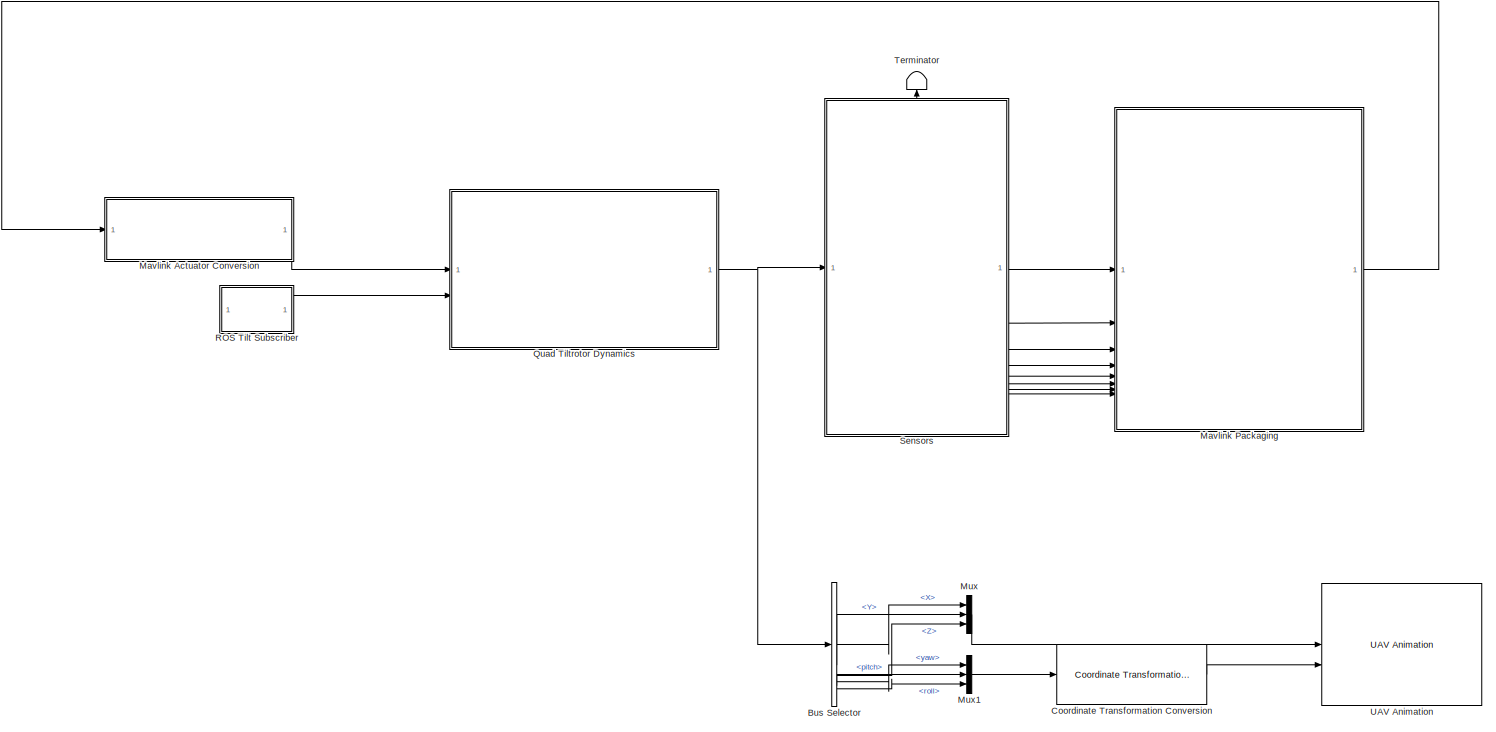
[diagram: root canvas - part 1/1, most of the canvas]
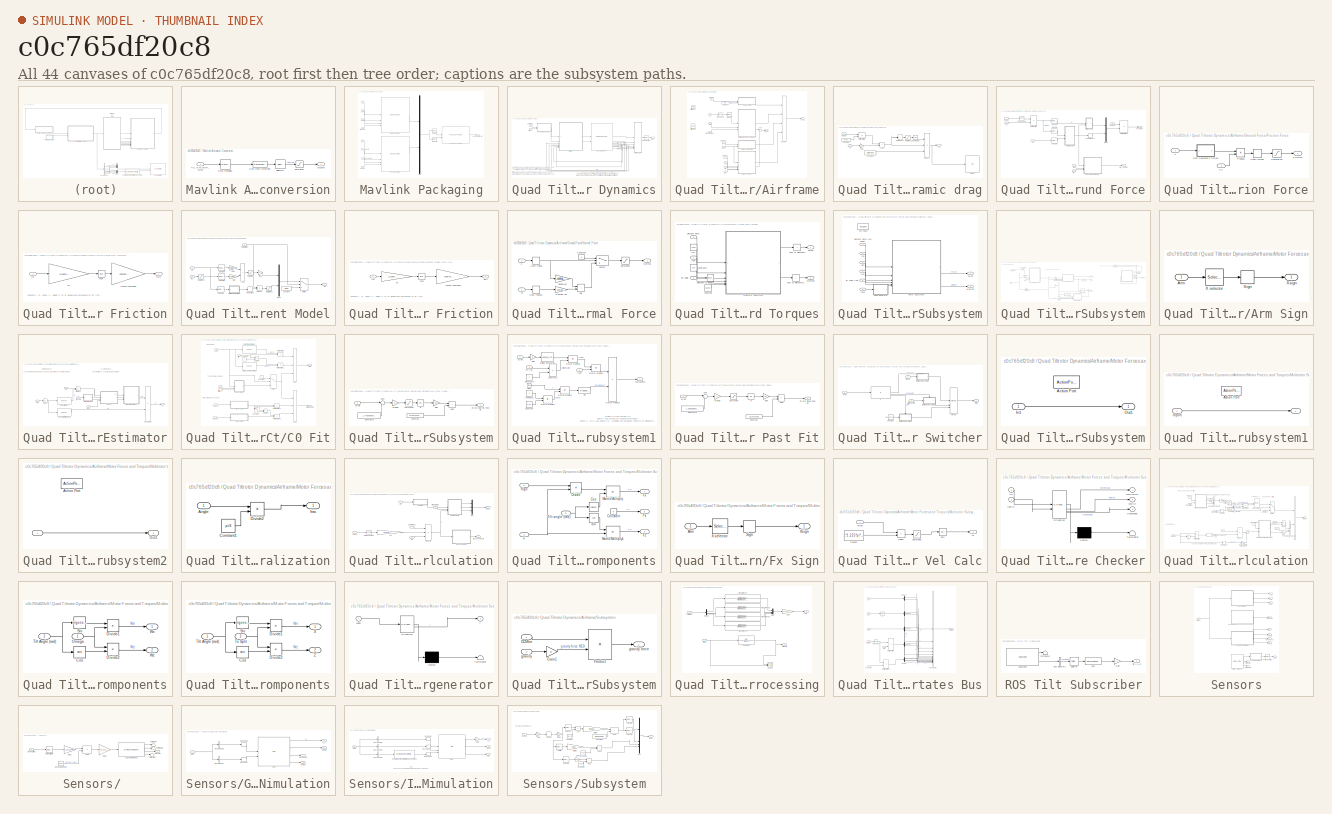
[diagram: thumbnail index - all 44 canvases of the model, root first then tree order]
MODEL slx_c0c765df20c8
KIND model
CONFIG AbsTol = auto
CONFIG EnableMultiTasking = off
CONFIG FixedStep = SampleTime
CONFIG MaxStep = auto
CONFIG MinStep = auto
CONFIG RelTol = 1e-3
CONFIG SampleTimeConstraint = Unconstrained
CONFIG SolverName = ode8
CONFIG StartTime = 0.0
CONFIG StopTime = inf
BLOCK [BusSelector] Bus Selector
  Commented = on
  OutputSignals = X,Y,Z,yaw,pitch,roll
BLOCK [Reference] Coordinate Transformation Conversion  REF=robotcorelib/Coordinate Transformation Conversion
  Commented = on
  LibrarySourceBlock = uavutilslib/Coordinate Transformation Conversion
  SourceBlock = robotcorelib/Coordinate Transformation Conversion
  SourceType = robotics.slcore.internal.block.CoordinateTransformationConversion
BLOCK [SubSystem] Mavlink Actuator Conversion
BLOCK [Outport] Mavlink Actuator Conversion/Actuator
BLOCK [DataTypeConversion] Mavlink Actuator Conversion/Data Type Conversion
  OutDataTypeStr = double
  RndMeth = Floor
  SaturateOnIntegerOverflow = off
BLOCK [Inport] Mavlink Actuator Conversion/HIL ACTUATOR_bytes
BLOCK [RateTransition] Mavlink Actuator Conversion/Rate Transition
  OutPortSampleTime = SampleTime
BLOCK [Saturate] Mavlink Actuator Conversion/Saturation
  LowerLimit = 0
  UpperLimit = 1
BLOCK [Selector] Mavlink Actuator Conversion/Selector1
  IndexOptions = Index vector (dialog)
  Indices = [1:4]
  InputPortWidth = 16
  OutputSizes = 1
BLOCK [SubSystem] Mavlink Packaging
BLOCK [Inport] Mavlink Packaging/Acc
BLOCK [Inport] Mavlink Packaging/Course
  Port = 8
BLOCK [Reference] Mavlink Packaging/GPSPackaging  REF=library_GPSPackaging/GPSPackaging
  SourceBlock = library_GPSPackaging/GPSPackaging
BLOCK [Inport] Mavlink Packaging/GndSpeed
  Port = 7
BLOCK [Inport] Mavlink Packaging/Gyro
  Port = 2
BLOCK [Outport] Mavlink Packaging/HIL Actuator Bytes
BLOCK [Reference] Mavlink Packaging/IMUPackaging  REF=library_IMUPackaging/IMUPackaging
  SourceBlock = library_IMUPackaging/IMUPackaging
BLOCK [Inport] Mavlink Packaging/LLA
  Port = 5
BLOCK [Inport] Mavlink Packaging/Mag
  Port = 3
BLOCK [Mux] Mavlink Packaging/Mux
  DisplayOption = bar
  Inputs = 2
BLOCK [Reference] Mavlink Packaging/PX4SITLConnection  REF=library_PX4SITLConnection/PX4SITLConnection
  SourceBlock = library_PX4SITLConnection/PX4SITLConnection
BLOCK [Inport] Mavlink Packaging/Pressure
  Port = 4
BLOCK [Selector] Mavlink Packaging/Selector
  IndexOptions = Index vector (dialog)
  Indices = [1:1024]
  InputPortWidth = 2048
  OutputSizes = 1
  RuntimeRangeChecks = on
BLOCK [Selector] Mavlink Packaging/Selector1
  IndexOptions = Index vector (dialog)
  Indices = [1025:2048]
  InputPortWidth = 2048
  OutputSizes = 1
BLOCK [Inport] Mavlink Packaging/Velocity
  Port = 6
BLOCK [Mux] Mux
  Commented = on
  DisplayOption = bar
  Inputs = 3
BLOCK [Mux] Mux1
  Commented = on
  DisplayOption = bar
  Inputs = 3
BLOCK [SubSystem] Quad Tiltrotor Dynamics
BLOCK [Reference] Quad Tiltrotor Dynamics/6DOF (Quaternion)  REF=shared6dof/6DOF (Euler Angles)
  LibrarySourceBlock = aerolib6dof2/6DOF (Quaternion)
  SourceBlock = shared6dof/6DOF (Euler Angles)
  SourceType = 6DOF EoM (Body Axis)
BLOCK [SubSystem] Quad Tiltrotor Dynamics/Airframe
BLOCK [SubSystem] Quad Tiltrotor Dynamics/Airframe/Aerodynamic drag
BLOCK [Sum] Quad Tiltrotor Dynamics/Airframe/Aerodynamic drag/Add
  IconShape = rectangular
BLOCK [Constant] Quad Tiltrotor Dynamics/Airframe/Aerodynamic drag/Constant
  Value = [ 0 0 0]
BLOCK [Constant] Quad Tiltrotor Dynamics/Airframe/Aerodynamic drag/Constant1
  Value = CDDrone
BLOCK [Inport] Quad Tiltrotor Dynamics/Airframe/Aerodynamic drag/DCMbe
BLOCK [Display] Quad Tiltrotor Dynamics/Airframe/Aerodynamic drag/Display
  Decimation = 1
BLOCK [DotProduct] Quad Tiltrotor Dynamics/Airframe/Aerodynamic drag/Dot Product
  OutDataTypeStr = Inherit: Inherit via internal rule
BLOCK [Outport] Quad Tiltrotor Dynamics/Airframe/Aerodynamic drag/F_d
BLOCK [Product] Quad Tiltrotor Dynamics/Airframe/Aerodynamic drag/Matrix Multiply
  Multiplication = Matrix(*)
BLOCK [Product] Quad Tiltrotor Dynamics/Airframe/Aerodynamic drag/Product
  Inputs = 3
BLOCK [Saturate] Quad Tiltrotor Dynamics/Airframe/Aerodynamic drag/Saturation
  LowerLimit = 0.0001
  UpperLimit = inf
BLOCK [Sqrt] Quad Tiltrotor Dynamics/Airframe/Aerodynamic drag/Square Root
BLOCK [Inport] Quad Tiltrotor Dynamics/Airframe/Aerodynamic drag/Vb
  Port = 2
BLOCK [Gain] Quad Tiltrotor Dynamics/Airframe/Aerodynamic drag/gain
  Gain = -1
BLOCK [Reference] Quad Tiltrotor Dynamics/Airframe/Artificial RPM  REF=simulink/Sources/Ramp
  SourceBlock = simulink/Sources/Ramp
  SourceType = Ramp
BLOCK [Reference] Quad Tiltrotor Dynamics/Airframe/Artificial Vel  REF=simulink/Sources/Ramp
  SourceBlock = simulink/Sources/Ramp
  SourceType = Ramp
BLOCK [Inport] Quad Tiltrotor Dynamics/Airframe/DCMbe
  Port = 4
BLOCK [InportShadow] Quad Tiltrotor Dynamics/Airframe/DCMbe1
  Port = 4
BLOCK [InportShadow] Quad Tiltrotor Dynamics/Airframe/DCMbe2
  Port = 4
BLOCK [Outport] Quad Tiltrotor Dynamics/Airframe/F_cg
BLOCK [Constant] Quad Tiltrotor Dynamics/Airframe/Gravity
  Value = [0 0 g]
BLOCK [SubSystem] Quad Tiltrotor Dynamics/Airframe/Ground Force
BLOCK [InportShadow] Quad Tiltrotor Dynamics/Airframe/Ground Force/DCMbe
  Port = 2
BLOCK [Inport] Quad Tiltrotor Dynamics/Airframe/Ground Force/DCMbe1
  Port = 2
BLOCK [Outport] Quad Tiltrotor Dynamics/Airframe/Ground Force/F contact
BLOCK [SubSystem] Quad Tiltrotor Dynamics/Airframe/Ground Force/Friction Force
BLOCK [Inport] Quad Tiltrotor Dynamics/Airframe/Ground Force/Friction Force/Fn
  Port = 2
BLOCK [Outport] Quad Tiltrotor Dynamics/Airframe/Ground Force/Friction Force/Friction
BLOCK [Product] Quad Tiltrotor Dynamics/Airframe/Ground Force/Friction Force/Product
BLOCK [Saturate] Quad Tiltrotor Dynamics/Airframe/Ground Force/Friction Force/Saturation
  LowerLimit = -contact.translation.maxFriction
  UpperLimit = contact.translation.maxFriction
BLOCK [SubSystem] Quad Tiltrotor Dynamics/Airframe/Ground Force/Friction Force/Soft Coulomb Friction
BLOCK [Inport] Quad Tiltrotor Dynamics/Airframe/Ground Force/Friction Force/Soft Coulomb Friction/In1
BLOCK [Outport] Quad Tiltrotor Dynamics/Airframe/Ground Force/Friction Force/Soft Coulomb Friction/Out1
BLOCK [Trigonometry] Quad Tiltrotor Dynamics/Airframe/Ground Force/Friction Force/Soft Coulomb Friction/Tanh
  Operator = tanh
BLOCK [Gain] Quad Tiltrotor Dynamics/Airframe/Ground Force/Friction Force/Soft Coulomb Friction/friction coefficient
  Gain = contact.translation.friction
BLOCK [Gain] Quad Tiltrotor Dynamics/Airframe/Ground Force/Friction Force/Soft Coulomb Friction/vd
  Gain = 1/contact.translation.vd
BLOCK [UnaryMinus] Quad Tiltrotor Dynamics/Airframe/Ground Force/Friction Force/Unary Minus
BLOCK [Inport] Quad Tiltrotor Dynamics/Airframe/Ground Force/Friction Force/V
BLOCK [SubSystem] Quad Tiltrotor Dynamics/Airframe/Ground Force/Ground Moment Model
BLOCK [Sum] Quad Tiltrotor Dynamics/Airframe/Ground Force/Ground Moment Model/Add
  IconShape = rectangular
BLOCK [Constant] Quad Tiltrotor Dynamics/Airframe/Ground Force/Ground Moment Model/Constant
  Value = [0 0 0]'
BLOCK [Gain] Quad Tiltrotor Dynamics/Airframe/Ground Force/Ground Moment Model/Gain
  Gain = contact.rotation.spring
BLOCK [Gain] Quad Tiltrotor Dynamics/Airframe/Ground Force/Ground Moment Model/Gain1
  Gain = contact.rotation.damper
BLOCK [Gain] Quad Tiltrotor Dynamics/Airframe/Ground Force/Ground Moment Model/Gain2
  Gain = -1
BLOCK [Outport] Quad Tiltrotor Dynamics/Airframe/Ground Force/Ground Moment Model/Mb
BLOCK [Mux] Quad Tiltrotor Dynamics/Airframe/Ground Force/Ground Moment Model/Mux2
  DisplayOption = bar
  Inputs = 2
BLOCK [Inport] Quad Tiltrotor Dynamics/Airframe/Ground Force/Ground Moment Model/Normal force
BLOCK [Product] Quad Tiltrotor Dynamics/Airframe/Ground Force/Ground Moment Model/Product
BLOCK [Saturate] Quad Tiltrotor Dynamics/Airframe/Ground Force/Ground Moment Model/Saturation
  LowerLimit = -control.rotation.maxMoment
  UpperLimit = control.rotation.maxMoment
BLOCK [Saturate] Quad Tiltrotor Dynamics/Airframe/Ground Force/Ground Moment Model/Saturation1
  LowerLimit = -20*pi/180
  UpperLimit = 20*pi/180
BLOCK [Saturate] Quad Tiltrotor Dynamics/Airframe/Ground Force/Ground Moment Model/Saturation2
  LowerLimit = -control.rotation.maxMoment
  UpperLimit = control.rotation.maxMoment
BLOCK [Selector] Quad Tiltrotor Dynamics/Airframe/Ground Force/Ground Moment Model/Selector3
  IndexOptions = Index vector (dialog)
  Indices = [3]
  InputPortWidth = 3
  OutputSizes = 1
BLOCK [Selector] Quad Tiltrotor Dynamics/Airframe/Ground Force/Ground Moment Model/Selector4
  IndexOptions = Index vector (dialog)
  Indices = [1, 2]
  InputPortWidth = 3
  OutputSizes = 1
BLOCK [Selector] Quad Tiltrotor Dynamics/Airframe/Ground Force/Ground Moment Model/Selector5
  IndexOptions = Index vector (dialog)
  Indices = [1, 2]
  InputPortWidth = 3
  OutputSizes = 1
BLOCK [SubSystem] Quad Tiltrotor Dynamics/Airframe/Ground Force/Ground Moment Model/Soft Coulomb Friction
BLOCK [Inport] Quad Tiltrotor Dynamics/Airframe/Ground Force/Ground Moment Model/Soft Coulomb Friction/In1
BLOCK [Outport] Quad Tiltrotor Dynamics/Airframe/Ground Force/Ground Moment Model/Soft Coulomb Friction/Out1
BLOCK [Trigonometry] Quad Tiltrotor Dynamics/Airframe/Ground Force/Ground Moment Model/Soft Coulomb Friction/Tanh
  Operator = tanh
BLOCK [Gain] Quad Tiltrotor Dynamics/Airframe/Ground Force/Ground Moment Model/Soft Coulomb Friction/friction coefficient
  Gain = control.rotation.friction
BLOCK [Gain] Quad Tiltrotor Dynamics/Airframe/Ground Force/Ground Moment Model/Soft Coulomb Friction/vd
  Gain = 1/control.rotation.vd
BLOCK [Switch] Quad Tiltrotor Dynamics/Airframe/Ground Force/Ground Moment Model/Switch
  Criteria = u2 > Threshold
  InputSameDT = off
  SaturateOnIntegerOverflow = off
BLOCK [UnaryMinus] Quad Tiltrotor Dynamics/Airframe/Ground Force/Ground Moment Model/Unary Minus
BLOCK [Inport] Quad Tiltrotor Dynamics/Airframe/Ground Force/Ground Moment Model/rpy
  Port = 3
BLOCK [Inport] Quad Tiltrotor Dynamics/Airframe/Ground Force/Ground Moment Model/wb
  Port = 2
BLOCK [Product] Quad Tiltrotor Dynamics/Airframe/Ground Force/Matrix Multiply
  Multiplication = Matrix(*)
BLOCK [Product] Quad Tiltrotor Dynamics/Airframe/Ground Force/Matrix Multiply1
  Multiplication = Matrix(*)
BLOCK [Outport] Quad Tiltrotor Dynamics/Airframe/Ground Force/Mb_contact
  Port = 2
BLOCK [Mux] Quad Tiltrotor Dynamics/Airframe/Ground Force/Mux1
  DisplayOption = bar
  Inputs = 2
BLOCK [SubSystem] Quad Tiltrotor Dynamics/Airframe/Ground Force/Normal Force
BLOCK [Sum] Quad Tiltrotor Dynamics/Airframe/Ground Force/Normal Force/Add
  IconShape = rectangular
BLOCK [Constant] Quad Tiltrotor Dynamics/Airframe/Ground Force/Normal Force/Constant
  Value = 0
BLOCK [Gain] Quad Tiltrotor Dynamics/Airframe/Ground Force/Normal Force/Damper Kp
  Gain = -contact.translation.damper
BLOCK [Outport] Quad Tiltrotor Dynamics/Airframe/Ground Force/Normal Force/Normal
BLOCK [Saturate] Quad Tiltrotor Dynamics/Airframe/Ground Force/Normal Force/Saturation
  LowerLimit = 0
  UpperLimit = contact.translation.maxNormal
BLOCK [Gain] Quad Tiltrotor Dynamics/Airframe/Ground Force/Normal Force/Spring Kp
  Gain = -contact.translation.spring
BLOCK [Switch] Quad Tiltrotor Dynamics/Airframe/Ground Force/Normal Force/Switch
  Criteria = u2 > Threshold
  InputSameDT = off
  SaturateOnIntegerOverflow = off
BLOCK [UnaryMinus] Quad Tiltrotor Dynamics/Airframe/Ground Force/Normal Force/Unary Minus
BLOCK [UnaryMinus] Quad Tiltrotor Dynamics/Airframe/Ground Force/Normal Force/Unary Minus1
BLOCK [Inport] Quad Tiltrotor Dynamics/Airframe/Ground Force/Normal Force/Vz
BLOCK [Inport] Quad Tiltrotor Dynamics/Airframe/Ground Force/Normal Force/Z
  Port = 2
BLOCK [Selector] Quad Tiltrotor Dynamics/Airframe/Ground Force/Selector1
  IndexOptions = Index vector (dialog)
  Indices = [3]
  InputPortWidth = 3
  OutputSizes = 1
BLOCK [Selector] Quad Tiltrotor Dynamics/Airframe/Ground Force/Selector2
  IndexOptions = Index vector (dialog)
  Indices = [1,2]
  InputPortWidth = 3
  OutputSizes = 1
BLOCK [Selector] Quad Tiltrotor Dynamics/Airframe/Ground Force/Selector3
  IndexOptions = Index vector (dialog)
  Indices = [3]
  InputPortWidth = 3
  OutputSizes = 1
BLOCK [Math] Quad Tiltrotor Dynamics/Airframe/Ground Force/Transpose1
  Operator = transpose
BLOCK [UnaryMinus] Quad Tiltrotor Dynamics/Airframe/Ground Force/Unary Minus1
BLOCK [Inport] Quad Tiltrotor Dynamics/Airframe/Ground Force/Vb
BLOCK [Inport] Quad Tiltrotor Dynamics/Airframe/Ground Force/Wb
  Port = 4
BLOCK [Inport] Quad Tiltrotor Dynamics/Airframe/Ground Force/Xe
  Port = 3
BLOCK [Inport] Quad Tiltrotor Dynamics/Airframe/Ground Force/rpy
  Port = 5
BLOCK [Outport] Quad Tiltrotor Dynamics/Airframe/M_cg
  Port = 2
BLOCK [SubSystem] Quad Tiltrotor Dynamics/Airframe/Motor Forces and Torques
BLOCK [Constant] Quad Tiltrotor Dynamics/Airframe/Motor Forces and Torques/Constant
  Value = [1 2 3 4]
BLOCK [Constant] Quad Tiltrotor Dynamics/Airframe/Motor Forces and Torques/Constant1
  Value = Arm
BLOCK [Reference] Quad Tiltrotor Dynamics/Airframe/Motor Forces and Torques/Degrees to Radians  REF=simulink_extras/Transformations/Degrees to
Radians
  SourceBlock = simulink_extras/Transformations/Degrees to\nRadians
  SourceType = DegreesToRadians
BLOCK [Inport] Quad Tiltrotor Dynamics/Airframe/Motor Forces and Torques/Descent Rate
BLOCK [Outport] Quad Tiltrotor Dynamics/Airframe/Motor Forces and Torques/Moment
  Port = 2
BLOCK [SubSystem] Quad Tiltrotor Dynamics/Airframe/Motor Forces and Torques/Multirotor Subsystem
  TreatAsAtomicUnit = on
BLOCK [Inport] Quad Tiltrotor Dynamics/Airframe/Motor Forces and Torques/Multirotor Subsystem/Arm
  Partition = on
  PartitionDimension = 2
  PartitionOffset = 0
  PartitionWidth = 1
  Port = 4
BLOCK [Inport] Quad Tiltrotor Dynamics/Airframe/Motor Forces and Torques/Multirotor Subsystem/Descent Rate (+ve down)
  NameLocation = top
BLOCK [ForEach] Quad Tiltrotor Dynamics/Airframe/Motor Forces and Torques/Multirotor Subsystem/For Each
  DisableCoverage = on
BLOCK [Inport] Quad Tiltrotor Dynamics/Airframe/Motor Forces and Torques/Multirotor Subsystem/Input
  Partition = on
  PartitionDimension = 1
  PartitionOffset = 0
  PartitionWidth = 1
  Port = 6
BLOCK [Outport] Quad Tiltrotor Dynamics/Airframe/Motor Forces and Torques/Multirotor Subsystem/Moment
  ConcatenationDimension = 2
  Port = 2
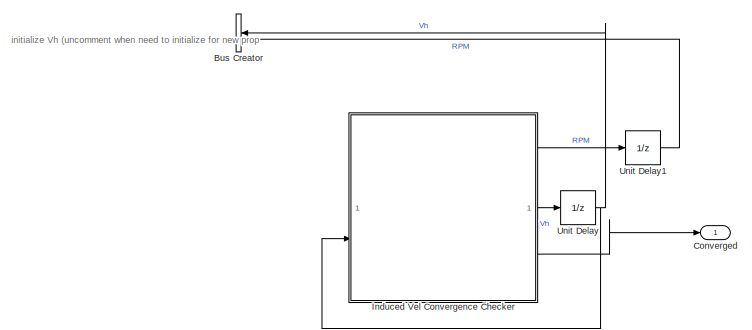
[diagram: Quad Tiltrotor Dynamics/Airframe/Motor Forces and Torques/Multirotor Subsystem/Rotor Subsystem - part 1/3, top right region]
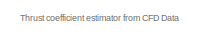
[diagram: Quad Tiltrotor Dynamics/Airframe/Motor Forces and Torques/Multirotor Subsystem/Rotor Subsystem - part 2/3, top left region]
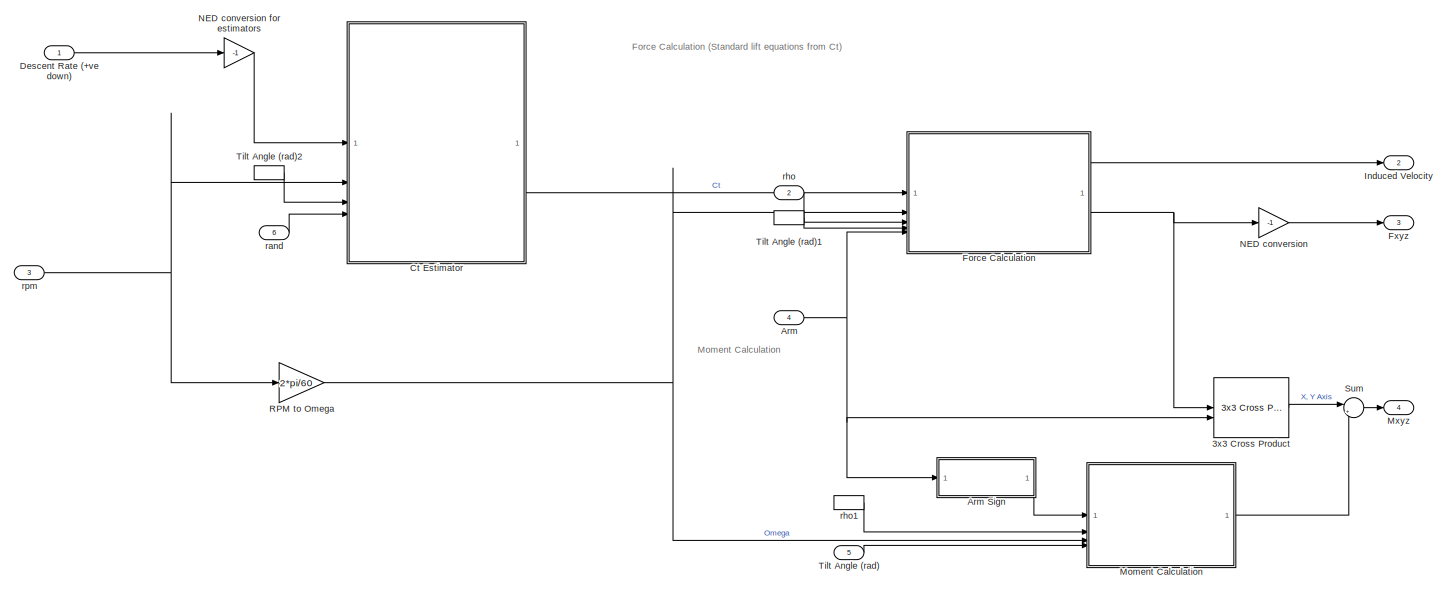
[diagram: Quad Tiltrotor Dynamics/Airframe/Motor Forces and Torques/Multirotor Subsystem/Rotor Subsystem - part 3/3, center side, full height]
BLOCK [SubSystem] Quad Tiltrotor Dynamics/Airframe/Motor Forces and Torques/Multirotor Subsystem/Rotor Subsystem
BLOCK [Reference] Quad Tiltrotor Dynamics/Airframe/Motor Forces and Torques/Multirotor Subsystem/Rotor Subsystem/3x3 Cross Product  REF=sharedutil/3x3 Cross Product
  LibrarySourceBlock = aerolibutil/3x3 Cross Product
  SourceBlock = sharedutil/3x3 Cross Product
  SourceType = CrossProduct
BLOCK [Inport] Quad Tiltrotor Dynamics/Airframe/Motor Forces and Torques/Multirotor Subsystem/Rotor Subsystem/Arm
  Port = 4
BLOCK [SubSystem] Quad Tiltrotor Dynamics/Airframe/Motor Forces and Torques/Multirotor Subsystem/Rotor Subsystem/Arm Sign
  NameLocation = top
BLOCK [Inport] Quad Tiltrotor Dynamics/Airframe/Motor Forces and Torques/Multirotor Subsystem/Rotor Subsystem/Arm Sign/Arm
BLOCK [Signum] Quad Tiltrotor Dynamics/Airframe/Motor Forces and Torques/Multirotor Subsystem/Rotor Subsystem/Arm Sign/Sign
BLOCK [Selector] Quad Tiltrotor Dynamics/Airframe/Motor Forces and Torques/Multirotor Subsystem/Rotor Subsystem/Arm Sign/X selector
  IndexOptions = Index vector (dialog)
  Indices = [1]
  InputPortWidth = 3
  OutputSizes = 1
BLOCK [Outport] Quad Tiltrotor Dynamics/Airframe/Motor Forces and Torques/Multirotor Subsystem/Rotor Subsystem/Arm Sign/Xsign
BLOCK [BusCreator] Quad Tiltrotor Dynamics/Airframe/Motor Forces and Torques/Multirotor Subsystem/Rotor Subsystem/Bus Creator
  Commented = on
  DisplayOption = bar
  InheritFromInputs = on
  Inputs = 2
  NameLocation = top
BLOCK [Outport] Quad Tiltrotor Dynamics/Airframe/Motor Forces and Torques/Multirotor Subsystem/Rotor Subsystem/Converged
BLOCK [SubSystem] Quad Tiltrotor Dynamics/Airframe/Motor Forces and Torques/Multirotor Subsystem/Rotor Subsystem/Ct Estimator
BLOCK [Abs] Quad Tiltrotor Dynamics/Airframe/Motor Forces and Torques/Multirotor Subsystem/Rotor Subsystem/Ct Estimator/Abs
  SaturateOnIntegerOverflow = off
BLOCK [Product] Quad Tiltrotor Dynamics/Airframe/Motor Forces and Torques/Multirotor Subsystem/Rotor Subsystem/Ct Estimator/Calculate Ct
  Inputs = **
BLOCK [Outport] Quad Tiltrotor Dynamics/Airframe/Motor Forces and Torques/Multirotor Subsystem/Rotor Subsystem/Ct Estimator/Ct
BLOCK [SubSystem] Quad Tiltrotor Dynamics/Airframe/Motor Forces and Torques/Multirotor Subsystem/Rotor Subsystem/Ct Estimator/Ct//C0 Fit
BLOCK [Sum] Quad Tiltrotor Dynamics/Airframe/Motor Forces and Torques/Multirotor Subsystem/Rotor Subsystem/Ct Estimator/Ct//C0 Fit/Add
  IconShape = rectangular
  Inputs = +++
BLOCK [Sum] Quad Tiltrotor Dynamics/Airframe/Motor Forces and Torques/Multirotor Subsystem/Rotor Subsystem/Ct Estimator/Ct//C0 Fit/Add1
  IconShape = rectangular
  Inputs = +++
BLOCK [Constant] Quad Tiltrotor Dynamics/Airframe/Motor Forces and Torques/Multirotor Subsystem/Rotor Subsystem/Ct Estimator/Ct//C0 Fit/Constant
  Value = 0
BLOCK [Constant] Quad Tiltrotor Dynamics/Airframe/Motor Forces and Torques/Multirotor Subsystem/Rotor Subsystem/Ct Estimator/Ct//C0 Fit/Constant1
BLOCK [Constant] Quad Tiltrotor Dynamics/Airframe/Motor Forces and Torques/Multirotor Subsystem/Rotor Subsystem/Ct Estimator/Ct//C0 Fit/Constant2
BLOCK [Outport] Quad Tiltrotor Dynamics/Airframe/Motor Forces and Torques/Multirotor Subsystem/Rotor Subsystem/Ct Estimator/Ct//C0 Fit/Ct//Ct0
BLOCK [Polyval] Quad Tiltrotor Dynamics/Airframe/Motor Forces and Torques/Multirotor Subsystem/Rotor Subsystem/Ct Estimator/Ct//C0 Fit/Ct//Ct0 Non Tilted Estimator
  Coefs = [0.147117704259973, 0.135195473604728, -0.341999514591595, -0.246799876690693, 0.999678014049876]
BLOCK [Outport] Quad Tiltrotor Dynamics/Airframe/Motor Forces and Torques/Multirotor Subsystem/Rotor Subsystem/Ct Estimator/Ct//C0 Fit/Ct//Ct0 Past Fit
  Port = 2
BLOCK [Polyval] Quad Tiltrotor Dynamics/Airframe/Motor Forces and Torques/Multirotor Subsystem/Rotor Subsystem/Ct Estimator/Ct//C0 Fit/Ct//Ct0 Tilted Estimator
  Coefs = [-0.012716815691322, -0.022830541813396, 0.156313447084851, -0.031641009616291, 1.004637965110952]
BLOCK [Product] Quad Tiltrotor Dynamics/Airframe/Motor Forces and Torques/Multirotor Subsystem/Rotor Subsystem/Ct Estimator/Ct//C0 Fit/Matrix Multiply
BLOCK [Product] Quad Tiltrotor Dynamics/Airframe/Motor Forces and Torques/Multirotor Subsystem/Rotor Subsystem/Ct Estimator/Ct//C0 Fit/Matrix Multiply1
BLOCK [Product] Quad Tiltrotor Dynamics/Airframe/Motor Forces and Torques/Multirotor Subsystem/Rotor Subsystem/Ct Estimator/Ct//C0 Fit/Matrix Multiply2
BLOCK [Product] Quad Tiltrotor Dynamics/Airframe/Motor Forces and Torques/Multirotor Subsystem/Rotor Subsystem/Ct Estimator/Ct//C0 Fit/Matrix Multiply3
BLOCK [SubSystem] Quad Tiltrotor Dynamics/Airframe/Motor Forces and Torques/Multirotor Subsystem/Rotor Subsystem/Ct Estimator/Ct//C0 Fit/Subsystem
BLOCK [Inport] Quad Tiltrotor Dynamics/Airframe/Motor Forces and Torques/Multirotor Subsystem/Rotor Subsystem/Ct Estimator/Ct//C0 Fit/Subsystem/ Vz//Vi0
BLOCK [Sum] Quad Tiltrotor Dynamics/Airframe/Motor Forces and Torques/Multirotor Subsystem/Rotor Subsystem/Ct Estimator/Ct//C0 Fit/Subsystem/Add2
  IconShape = rectangular
BLOCK [Constant] Quad Tiltrotor Dynamics/Airframe/Motor Forces and Torques/Multirotor Subsystem/Rotor Subsystem/Ct Estimator/Ct//C0 Fit/Subsystem/Constant
  Value = 2.07884583669
BLOCK [Constant] Quad Tiltrotor Dynamics/Airframe/Motor Forces and Torques/Multirotor Subsystem/Rotor Subsystem/Ct Estimator/Ct//C0 Fit/Subsystem/Constant3
  Value = 1.7439783573836165
BLOCK [Outport] Quad Tiltrotor Dynamics/Airframe/Motor Forces and Torques/Multirotor Subsystem/Rotor Subsystem/Ct Estimator/Ct//C0 Fit/Subsystem/Ct//Ct0 Non-tilt Past Fit
BLOCK [Gain] Quad Tiltrotor Dynamics/Airframe/Motor Forces and Torques/Multirotor Subsystem/Rotor Subsystem/Ct Estimator/Ct//C0 Fit/Subsystem/Gain
  Gain = 1/2
BLOCK [Gain] Quad Tiltrotor Dynamics/Airframe/Motor Forces and Torques/Multirotor Subsystem/Rotor Subsystem/Ct Estimator/Ct//C0 Fit/Subsystem/Multiply
  Gain = -1
BLOCK [Saturate] Quad Tiltrotor Dynamics/Airframe/Motor Forces and Torques/Multirotor Subsystem/Rotor Subsystem/Ct Estimator/Ct//C0 Fit/Subsystem/Saturation
  LowerLimit = 0.0001
  UpperLimit = inf
BLOCK [Sum] Quad Tiltrotor Dynamics/Airframe/Motor Forces and Torques/Multirotor Subsystem/Rotor Subsystem/Ct Estimator/Ct//C0 Fit/Subsystem/Sum
  Inputs = |++
BLOCK [Math] Quad Tiltrotor Dynamics/Airframe/Motor Forces and Torques/Multirotor Subsystem/Rotor Subsystem/Ct Estimator/Ct//C0 Fit/Subsystem/ln
  Operator = log
BLOCK [SubSystem] Quad Tiltrotor Dynamics/Airframe/Motor Forces and Torques/Multirotor Subsystem/Rotor Subsystem/Ct Estimator/Ct//C0 Fit/Subsystem1
BLOCK [Clock] Quad Tiltrotor Dynamics/Airframe/Motor Forces and Torques/Multirotor Subsystem/Rotor Subsystem/Ct Estimator/Ct//C0 Fit/Subsystem1/Clock
  Decimation = 5
BLOCK [Constant] Quad Tiltrotor Dynamics/Airframe/Motor Forces and Torques/Multirotor Subsystem/Rotor Subsystem/Ct Estimator/Ct//C0 Fit/Subsystem1/Constant
  Value = 2*pi
BLOCK [Constant] Quad Tiltrotor Dynamics/Airframe/Motor Forces and Torques/Multirotor Subsystem/Rotor Subsystem/Ct Estimator/Ct//C0 Fit/Subsystem1/Constant3
BLOCK [Gain] Quad Tiltrotor Dynamics/Airframe/Motor Forces and Torques/Multirotor Subsystem/Rotor Subsystem/Ct Estimator/Ct//C0 Fit/Subsystem1/Gain
  Gain = -1
BLOCK [Product] Quad Tiltrotor Dynamics/Airframe/Motor Forces and Torques/Multirotor Subsystem/Rotor Subsystem/Ct Estimator/Ct//C0 Fit/Subsystem1/Matrix Multiply1
BLOCK [Product] Quad Tiltrotor Dynamics/Airframe/Motor Forces and Torques/Multirotor Subsystem/Rotor Subsystem/Ct Estimator/Ct//C0 Fit/Subsystem1/Matrix Multiply2
BLOCK [Product] Quad Tiltrotor Dynamics/Airframe/Motor Forces and Torques/Multirotor Subsystem/Rotor Subsystem/Ct Estimator/Ct//C0 Fit/Subsystem1/Matrix Multiply3
BLOCK [Product] Quad Tiltrotor Dynamics/Airframe/Motor Forces and Torques/Multirotor Subsystem/Rotor Subsystem/Ct Estimator/Ct//C0 Fit/Subsystem1/Matrix Multiply4
BLOCK [Product] Quad Tiltrotor Dynamics/Airframe/Motor Forces and Torques/Multirotor Subsystem/Rotor Subsystem/Ct Estimator/Ct//C0 Fit/Subsystem1/Matrix Multiply5
BLOCK [Lookup_n-D] Quad Tiltrotor Dynamics/Airframe/Motor Forces and Torques/Multirotor Subsystem/Rotor Subsystem/Ct Estimator/Ct//C0 Fit/Subsystem1/Scaling Estimates
  BreakpointsForDimension1 = [-1000;0;0.28;0.3;0.5;0.6;0.7;0.8;0.9;1;1.1;1.2;1.3;1.4;1.5;1.6;1.7;1.8;1.9;2;2.1;2.2;2.3;2.4;2.5;2.6;2.7;2.8;2.9;3;3.1;1000]
  InputPortMap = u0
  InternalRulePriority = Speed
  InterpMethod = Akima spline
  NumberOfTableDimensions = 1
  RndMeth = Simplest
  Table = [0;0;0;0.05;0.1;0.2;0.4;0.6;0.8;0.9;1;1.02;0.9;0.8;0.7;0.6;0.5;0.4;0.3;0.25;0.2;0.2;0.2;0.2;0.2;0.2;0.2;0.2;0.2;0.2;0.2;0.1]
BLOCK [Trigonometry] Quad Tiltrotor Dynamics/Airframe/Motor Forces and Torques/Multirotor Subsystem/Rotor Subsystem/Ct Estimator/Ct//C0 Fit/Subsystem1/Sin
BLOCK [Sum] Quad Tiltrotor Dynamics/Airframe/Motor Forces and Torques/Multirotor Subsystem/Rotor Subsystem/Ct Estimator/Ct//C0 Fit/Subsystem1/Subtract2
  IconShape = rectangular
  Inputs = -+
BLOCK [Inport] Quad Tiltrotor Dynamics/Airframe/Motor Forces and Torques/Multirotor Subsystem/Rotor Subsystem/Ct Estimator/Ct//C0 Fit/Subsystem1/Vz//Vi0
BLOCK [Outport] Quad Tiltrotor Dynamics/Airframe/Motor Forces and Torques/Multirotor Subsystem/Rotor Subsystem/Ct Estimator/Ct//C0 Fit/Subsystem1/fluctuations
BLOCK [Constant] Quad Tiltrotor Dynamics/Airframe/Motor Forces and Torques/Multirotor Subsystem/Rotor Subsystem/Ct Estimator/Ct//C0 Fit/Subsystem1/frequency
  Value = 3
BLOCK [Inport] Quad Tiltrotor Dynamics/Airframe/Motor Forces and Torques/Multirotor Subsystem/Rotor Subsystem/Ct Estimator/Ct//C0 Fit/Subsystem1/rand
  Port = 2
BLOCK [Inport] Quad Tiltrotor Dynamics/Airframe/Motor Forces and Torques/Multirotor Subsystem/Rotor Subsystem/Ct Estimator/Ct//C0 Fit/Subsystem1/tilt frac
  Port = 3
BLOCK [Sum] Quad Tiltrotor Dynamics/Airframe/Motor Forces and Torques/Multirotor Subsystem/Rotor Subsystem/Ct Estimator/Ct//C0 Fit/Subtract
  IconShape = rectangular
  Inputs = -+
BLOCK [Sum] Quad Tiltrotor Dynamics/Airframe/Motor Forces and Torques/Multirotor Subsystem/Rotor Subsystem/Ct Estimator/Ct//C0 Fit/Subtract1
  IconShape = rectangular
  Inputs = -+
BLOCK [Switch] Quad Tiltrotor Dynamics/Airframe/Motor Forces and Torques/Multirotor Subsystem/Rotor Subsystem/Ct Estimator/Ct//C0 Fit/Switch
  Criteria = u2 > Threshold
  InputSameDT = off
  SaturateOnIntegerOverflow = off
  Threshold = -0.5
BLOCK [SubSystem] Quad Tiltrotor Dynamics/Airframe/Motor Forces and Torques/Multirotor Subsystem/Rotor Subsystem/Ct Estimator/Ct//C0 Fit/Tilted Past Fit
BLOCK [Sum] Quad Tiltrotor Dynamics/Airframe/Motor Forces and Torques/Multirotor Subsystem/Rotor Subsystem/Ct Estimator/Ct//C0 Fit/Tilted Past Fit/Add1
  IconShape = rectangular
BLOCK [Constant] Quad Tiltrotor Dynamics/Airframe/Motor Forces and Torques/Multirotor Subsystem/Rotor Subsystem/Ct Estimator/Ct//C0 Fit/Tilted Past Fit/Constant
  Value = 1.814813688
BLOCK [Constant] Quad Tiltrotor Dynamics/Airframe/Motor Forces and Torques/Multirotor Subsystem/Rotor Subsystem/Ct Estimator/Ct//C0 Fit/Tilted Past Fit/Constant3
  Value = 1.23626605195
BLOCK [Outport] Quad Tiltrotor Dynamics/Airframe/Motor Forces and Torques/Multirotor Subsystem/Rotor Subsystem/Ct Estimator/Ct//C0 Fit/Tilted Past Fit/Ct//Ct0 Tilted Past Fit
BLOCK [Gain] Quad Tiltrotor Dynamics/Airframe/Motor Forces and Torques/Multirotor Subsystem/Rotor Subsystem/Ct Estimator/Ct//C0 Fit/Tilted Past Fit/Gain
  Gain = 1/2
BLOCK [Gain] Quad Tiltrotor Dynamics/Airframe/Motor Forces and Torques/Multirotor Subsystem/Rotor Subsystem/Ct Estimator/Ct//C0 Fit/Tilted Past Fit/Multiply
  Gain = -1
BLOCK [Saturate] Quad Tiltrotor Dynamics/Airframe/Motor Forces and Torques/Multirotor Subsystem/Rotor Subsystem/Ct Estimator/Ct//C0 Fit/Tilted Past Fit/Saturation
  LowerLimit = 0.001
  UpperLimit = inf
BLOCK [Sum] Quad Tiltrotor Dynamics/Airframe/Motor Forces and Torques/Multirotor Subsystem/Rotor Subsystem/Ct Estimator/Ct//C0 Fit/Tilted Past Fit/Sum
  Inputs = |++
BLOCK [Inport] Quad Tiltrotor Dynamics/Airframe/Motor Forces and Torques/Multirotor Subsystem/Rotor Subsystem/Ct Estimator/Ct//C0 Fit/Tilted Past Fit/Vz//Vi0
BLOCK [Math] Quad Tiltrotor Dynamics/Airframe/Motor Forces and Torques/Multirotor Subsystem/Rotor Subsystem/Ct Estimator/Ct//C0 Fit/Tilted Past Fit/ln
  Operator = log
BLOCK [Inport] Quad Tiltrotor Dynamics/Airframe/Motor Forces and Torques/Multirotor Subsystem/Rotor Subsystem/Ct Estimator/Ct//C0 Fit/Vz//Vi0
BLOCK [InportShadow] Quad Tiltrotor Dynamics/Airframe/Motor Forces and Torques/Multirotor Subsystem/Rotor Subsystem/Ct Estimator/Ct//C0 Fit/Vz//Vi0_a
BLOCK [InportShadow] Quad Tiltrotor Dynamics/Airframe/Motor Forces and Torques/Multirotor Subsystem/Rotor Subsystem/Ct Estimator/Ct//C0 Fit/Vz//Vi0_b
BLOCK [Inport] Quad Tiltrotor Dynamics/Airframe/Motor Forces and Torques/Multirotor Subsystem/Rotor Subsystem/Ct Estimator/Ct//C0 Fit/rand
  Port = 3
BLOCK [Inport] Quad Tiltrotor Dynamics/Airframe/Motor Forces and Torques/Multirotor Subsystem/Rotor Subsystem/Ct Estimator/Ct//C0 Fit/tilt frac
  Port = 2
BLOCK [InportShadow] Quad Tiltrotor Dynamics/Airframe/Motor Forces and Torques/Multirotor Subsystem/Rotor Subsystem/Ct Estimator/Ct//C0 Fit/tilt frac1
  Port = 2
BLOCK [InportShadow] Quad Tiltrotor Dynamics/Airframe/Motor Forces and Torques/Multirotor Subsystem/Rotor Subsystem/Ct Estimator/Ct//C0 Fit/tilt frac2
  Port = 2
BLOCK [SubSystem] Quad Tiltrotor Dynamics/Airframe/Motor Forces and Torques/Multirotor Subsystem/Rotor Subsystem/Ct Estimator/Ct//C0 State Switcher
BLOCK [Inport] Quad Tiltrotor Dynamics/Airframe/Motor Forces and Torques/Multirotor Subsystem/Rotor Subsystem/Ct Estimator/Ct//C0 State Switcher/ Vz//Vh
BLOCK [Constant] Quad Tiltrotor Dynamics/Airframe/Motor Forces and Torques/Multirotor Subsystem/Rotor Subsystem/Ct Estimator/Ct//C0 State Switcher/Constant
  Value = 1.00463796511
BLOCK [Inport] Quad Tiltrotor Dynamics/Airframe/Motor Forces and Torques/Multirotor Subsystem/Rotor Subsystem/Ct Estimator/Ct//C0 State Switcher/Ct//C0 Fit
  Port = 2
BLOCK [Outport] Quad Tiltrotor Dynamics/Airframe/Motor Forces and Torques/Multirotor Subsystem/Rotor Subsystem/Ct Estimator/Ct//C0 State Switcher/Ct//Ct0
BLOCK [Inport] Quad Tiltrotor Dynamics/Airframe/Motor Forces and Torques/Multirotor Subsystem/Rotor Subsystem/Ct Estimator/Ct//C0 State Switcher/Ct//Ct0 Past Fit
  Port = 3
BLOCK [If] Quad Tiltrotor Dynamics/Airframe/Motor Forces and Torques/Multirotor Subsystem/Rotor Subsystem/Ct Estimator/Ct//C0 State Switcher/If
  ElseIfExpressions = u1 < -2
  IfExpression = u1 >= -2 & u1 <= 0
BLOCK [SubSystem] Quad Tiltrotor Dynamics/Airframe/Motor Forces and Torques/Multirotor Subsystem/Rotor Subsystem/Ct Estimator/Ct//C0 State Switcher/If Action Subsystem
  TreatAsAtomicUnit = on
BLOCK [ActionPort] Quad Tiltrotor Dynamics/Airframe/Motor Forces and Torques/Multirotor Subsystem/Rotor Subsystem/Ct Estimator/Ct//C0 State Switcher/If Action Subsystem/Action Port
  ActionPortLabel = if(u1 >= -2 & u1 <= 0)
BLOCK [Inport] Quad Tiltrotor Dynamics/Airframe/Motor Forces and Torques/Multirotor Subsystem/Rotor Subsystem/Ct Estimator/Ct//C0 State Switcher/If Action Subsystem/In1
BLOCK [Outport] Quad Tiltrotor Dynamics/Airframe/Motor Forces and Torques/Multirotor Subsystem/Rotor Subsystem/Ct Estimator/Ct//C0 State Switcher/If Action Subsystem/Out1
BLOCK [SubSystem] Quad Tiltrotor Dynamics/Airframe/Motor Forces and Torques/Multirotor Subsystem/Rotor Subsystem/Ct Estimator/Ct//C0 State Switcher/If Action Subsystem1
  TreatAsAtomicUnit = on
BLOCK [Outport] Quad Tiltrotor Dynamics/Airframe/Motor Forces and Torques/Multirotor Subsystem/Rotor Subsystem/Ct Estimator/Ct//C0 State Switcher/If Action Subsystem1/ 
BLOCK [ActionPort] Quad Tiltrotor Dynamics/Airframe/Motor Forces and Torques/Multirotor Subsystem/Rotor Subsystem/Ct Estimator/Ct//C0 State Switcher/If Action Subsystem1/Action Port
  ActionPortLabel = elseif(u1 < -2)
BLOCK [Inport] Quad Tiltrotor Dynamics/Airframe/Motor Forces and Torques/Multirotor Subsystem/Rotor Subsystem/Ct Estimator/Ct//C0 State Switcher/If Action Subsystem1/Inport
BLOCK [SubSystem] Quad Tiltrotor Dynamics/Airframe/Motor Forces and Torques/Multirotor Subsystem/Rotor Subsystem/Ct Estimator/Ct//C0 State Switcher/If Action Subsystem2
  TreatAsAtomicUnit = on
BLOCK [Inport] Quad Tiltrotor Dynamics/Airframe/Motor Forces and Torques/Multirotor Subsystem/Rotor Subsystem/Ct Estimator/Ct//C0 State Switcher/If Action Subsystem2/  
BLOCK [ActionPort] Quad Tiltrotor Dynamics/Airframe/Motor Forces and Torques/Multirotor Subsystem/Rotor Subsystem/Ct Estimator/Ct//C0 State Switcher/If Action Subsystem2/Action Port
  ActionPortLabel = else
BLOCK [Outport] Quad Tiltrotor Dynamics/Airframe/Motor Forces and Torques/Multirotor Subsystem/Rotor Subsystem/Ct Estimator/Ct//C0 State Switcher/If Action Subsystem2/Out1
BLOCK [Merge] Quad Tiltrotor Dynamics/Airframe/Motor Forces and Torques/Multirotor Subsystem/Rotor Subsystem/Ct Estimator/Ct//C0 State Switcher/Merge
  Inputs = 3
BLOCK [Polyval] Quad Tiltrotor Dynamics/Airframe/Motor Forces and Torques/Multirotor Subsystem/Rotor Subsystem/Ct Estimator/Ct0 estimator from RPM
  Coefs = [0.000000000012185, -0.000000274732884, 0.008305365728125]
BLOCK [Product] Quad Tiltrotor Dynamics/Airframe/Motor Forces and Torques/Multirotor Subsystem/Rotor Subsystem/Ct Estimator/Divide1
  Inputs = */
BLOCK [SubSystem] Quad Tiltrotor Dynamics/Airframe/Motor Forces and Torques/Multirotor Subsystem/Rotor Subsystem/Ct Estimator/Tilt Normalization
BLOCK [Inport] Quad Tiltrotor Dynamics/Airframe/Motor Forces and Torques/Multirotor Subsystem/Rotor Subsystem/Ct Estimator/Tilt Normalization/Angle
BLOCK [Constant] Quad Tiltrotor Dynamics/Airframe/Motor Forces and Torques/Multirotor Subsystem/Rotor Subsystem/Ct Estimator/Tilt Normalization/Constant1
  Value = pi/4
BLOCK [Product] Quad Tiltrotor Dynamics/Airframe/Motor Forces and Torques/Multirotor Subsystem/Rotor Subsystem/Ct Estimator/Tilt Normalization/Divide2
  Inputs = */
BLOCK [Outport] Quad Tiltrotor Dynamics/Airframe/Motor Forces and Torques/Multirotor Subsystem/Rotor Subsystem/Ct Estimator/Tilt Normalization/frac
BLOCK [Polyval] Quad Tiltrotor Dynamics/Airframe/Motor Forces and Torques/Multirotor Subsystem/Rotor Subsystem/Ct Estimator/Vi0 Estimator
  Coefs = [-5.17622414362771e-09, 0.000822973507549008, 0.0232660553338375]
BLOCK [Inport] Quad Tiltrotor Dynamics/Airframe/Motor Forces and Torques/Multirotor Subsystem/Rotor Subsystem/Ct Estimator/Vz
BLOCK [Inport] Quad Tiltrotor Dynamics/Airframe/Motor Forces and Torques/Multirotor Subsystem/Rotor Subsystem/Ct Estimator/rand
  Port = 4
BLOCK [Inport] Quad Tiltrotor Dynamics/Airframe/Motor Forces and Torques/Multirotor Subsystem/Rotor Subsystem/Ct Estimator/rpm
  Port = 2
BLOCK [Inport] Quad Tiltrotor Dynamics/Airframe/Motor Forces and Torques/Multirotor Subsystem/Rotor Subsystem/Ct Estimator/tilt_angle
  Port = 3
BLOCK [Inport] Quad Tiltrotor Dynamics/Airframe/Motor Forces and Torques/Multirotor Subsystem/Rotor Subsystem/Descent Rate (+ve down)
BLOCK [SubSystem] Quad Tiltrotor Dynamics/Airframe/Motor Forces and Torques/Multirotor Subsystem/Rotor Subsystem/Force Calculation
BLOCK [Inport] Quad Tiltrotor Dynamics/Airframe/Motor Forces and Torques/Multirotor Subsystem/Rotor Subsystem/Force Calculation/Arm
  Port = 5
BLOCK [Inport] Quad Tiltrotor Dynamics/Airframe/Motor Forces and Torques/Multirotor Subsystem/Rotor Subsystem/Force Calculation/Coeff. Thrust
BLOCK [SubSystem] Quad Tiltrotor Dynamics/Airframe/Motor Forces and Torques/Multirotor Subsystem/Rotor Subsystem/Force Calculation/Components
BLOCK [Constant] Quad Tiltrotor Dynamics/Airframe/Motor Forces and Torques/Multirotor Subsystem/Rotor Subsystem/Force Calculation/Components/Constant
  Value = 0
BLOCK [Trigonometry] Quad Tiltrotor Dynamics/Airframe/Motor Forces and Torques/Multirotor Subsystem/Rotor Subsystem/Force Calculation/Components/Cos
BLOCK [Product] Quad Tiltrotor Dynamics/Airframe/Motor Forces and Torques/Multirotor Subsystem/Rotor Subsystem/Force Calculation/Components/Divide
  Inputs = **
BLOCK [Inport] Quad Tiltrotor Dynamics/Airframe/Motor Forces and Torques/Multirotor Subsystem/Rotor Subsystem/Force Calculation/Components/F
  Port = 3
BLOCK [Outport] Quad Tiltrotor Dynamics/Airframe/Motor Forces and Torques/Multirotor Subsystem/Rotor Subsystem/Force Calculation/Components/Fx
BLOCK [Outport] Quad Tiltrotor Dynamics/Airframe/Motor Forces and Torques/Multirotor Subsystem/Rotor Subsystem/Force Calculation/Components/Fy
  Port = 2
BLOCK [Outport] Quad Tiltrotor Dynamics/Airframe/Motor Forces and Torques/Multirotor Subsystem/Rotor Subsystem/Force Calculation/Components/Fz
  Port = 3
BLOCK [Product] Quad Tiltrotor Dynamics/Airframe/Motor Forces and Torques/Multirotor Subsystem/Rotor Subsystem/Force Calculation/Components/Matrix Multiply
BLOCK [Product] Quad Tiltrotor Dynamics/Airframe/Motor Forces and Torques/Multirotor Subsystem/Rotor Subsystem/Force Calculation/Components/Matrix Multiply1
BLOCK [Inport] Quad Tiltrotor Dynamics/Airframe/Motor Forces and Torques/Multirotor Subsystem/Rotor Subsystem/Force Calculation/Components/Sign
BLOCK [Trigonometry] Quad Tiltrotor Dynamics/Airframe/Motor Forces and Torques/Multirotor Subsystem/Rotor Subsystem/Force Calculation/Components/Sin
  Operator = cos
BLOCK [Inport] Quad Tiltrotor Dynamics/Airframe/Motor Forces and Torques/Multirotor Subsystem/Rotor Subsystem/Force Calculation/Components/Tilt angle (rad)
  Port = 2
BLOCK [SubSystem] Quad Tiltrotor Dynamics/Airframe/Motor Forces and Torques/Multirotor Subsystem/Rotor Subsystem/Force Calculation/Fx Sign
BLOCK [Inport] Quad Tiltrotor Dynamics/Airframe/Motor Forces and Torques/Multirotor Subsystem/Rotor Subsystem/Force Calculation/Fx Sign/Arm
BLOCK [Signum] Quad Tiltrotor Dynamics/Airframe/Motor Forces and Torques/Multirotor Subsystem/Rotor Subsystem/Force Calculation/Fx Sign/Sign
BLOCK [Selector] Quad Tiltrotor Dynamics/Airframe/Motor Forces and Torques/Multirotor Subsystem/Rotor Subsystem/Force Calculation/Fx Sign/X selector
  IndexOptions = Index vector (dialog)
  Indices = [1]
  InputPortWidth = 3
  OutputSizes = 1
BLOCK [Outport] Quad Tiltrotor Dynamics/Airframe/Motor Forces and Torques/Multirotor Subsystem/Rotor Subsystem/Force Calculation/Fx Sign/Xsign
BLOCK [SubSystem] Quad Tiltrotor Dynamics/Airframe/Motor Forces and Torques/Multirotor Subsystem/Rotor Subsystem/Force Calculation/Induced Vel Calc
BLOCK [Constant] Quad Tiltrotor Dynamics/Airframe/Motor Forces and Torques/Multirotor Subsystem/Rotor Subsystem/Force Calculation/Induced Vel Calc/Denom
  Value = 2*1.225*pi*R^2
BLOCK [Product] Quad Tiltrotor Dynamics/Airframe/Motor Forces and Torques/Multirotor Subsystem/Rotor Subsystem/Force Calculation/Induced Vel Calc/Divide
  Inputs = */
BLOCK [Saturate] Quad Tiltrotor Dynamics/Airframe/Motor Forces and Torques/Multirotor Subsystem/Rotor Subsystem/Force Calculation/Induced Vel Calc/Saturation
  LowerLimit = 0.0001
  UpperLimit = inf
BLOCK [Sqrt] Quad Tiltrotor Dynamics/Airframe/Motor Forces and Torques/Multirotor Subsystem/Rotor Subsystem/Force Calculation/Induced Vel Calc/Sqrt
  OutDataTypeStr = double
BLOCK [Inport] Quad Tiltrotor Dynamics/Airframe/Motor Forces and Torques/Multirotor Subsystem/Rotor Subsystem/Force Calculation/Induced Vel Calc/Thrust
BLOCK [Outport] Quad Tiltrotor Dynamics/Airframe/Motor Forces and Torques/Multirotor Subsystem/Rotor Subsystem/Force Calculation/Induced Vel Calc/Vh
BLOCK [Outport] Quad Tiltrotor Dynamics/Airframe/Motor Forces and Torques/Multirotor Subsystem/Rotor Subsystem/Force Calculation/Induced Velocity
BLOCK [Math] Quad Tiltrotor Dynamics/Airframe/Motor Forces and Torques/Multirotor Subsystem/Rotor Subsystem/Force Calculation/Math Function3
  Operator = square
  SignedPower = on
BLOCK [Mux] Quad Tiltrotor Dynamics/Airframe/Motor Forces and Torques/Multirotor Subsystem/Rotor Subsystem/Force Calculation/Mux
  DisplayOption = bar
  Inputs = 3
BLOCK [Inport] Quad Tiltrotor Dynamics/Airframe/Motor Forces and Torques/Multirotor Subsystem/Rotor Subsystem/Force Calculation/Omega
  Port = 2
BLOCK [Product] Quad Tiltrotor Dynamics/Airframe/Motor Forces and Torques/Multirotor Subsystem/Rotor Subsystem/Force Calculation/Product6
  Inputs = 3
BLOCK [Gain] Quad Tiltrotor Dynamics/Airframe/Motor Forces and Torques/Multirotor Subsystem/Rotor Subsystem/Force Calculation/R3
  Gain = R*R*pi*R*R
BLOCK [Outport] Quad Tiltrotor Dynamics/Airframe/Motor Forces and Torques/Multirotor Subsystem/Rotor Subsystem/Force Calculation/Thrust
  Port = 2
BLOCK [Inport] Quad Tiltrotor Dynamics/Airframe/Motor Forces and Torques/Multirotor Subsystem/Rotor Subsystem/Force Calculation/Tilt angle (rad)
  Port = 4
BLOCK [Inport] Quad Tiltrotor Dynamics/Airframe/Motor Forces and Torques/Multirotor Subsystem/Rotor Subsystem/Force Calculation/rho
  Port = 3
BLOCK [Outport] Quad Tiltrotor Dynamics/Airframe/Motor Forces and Torques/Multirotor Subsystem/Rotor Subsystem/Fxyz
  Port = 3
BLOCK [SubSystem] Quad Tiltrotor Dynamics/Airframe/Motor Forces and Torques/Multirotor Subsystem/Rotor Subsystem/Induced Vel Convergence Checker
  Commented = on
  ErrorFcn = Stateflow.Translate.translate
  PermitHierarchicalResolution = ExplicitOnly
  SFBlockType = MATLAB Function
  TreatAsAtomicUnit = on
BLOCK [Demux] Quad Tiltrotor Dynamics/Airframe/Motor Forces and Torques/Multirotor Subsystem/Rotor Subsystem/Induced Vel Convergence Checker/ Demux 
  Outputs = 1
BLOCK [S-Function] Quad Tiltrotor Dynamics/Airframe/Motor Forces and Torques/Multirotor Subsystem/Rotor Subsystem/Induced Vel Convergence Checker/ SFunction 
  EnableBusSupport = on
  FunctionName = sf_sfun
  Parameters = convergence_threshold
  PortCounts = [2 4]
  SFcnIsStateOwnerBlock = off
  SFunctionDeploymentMode = off
  Tag = Stateflow S-Function 4
BLOCK [Terminator] Quad Tiltrotor Dynamics/Airframe/Motor Forces and Torques/Multirotor Subsystem/Rotor Subsystem/Induced Vel Convergence Checker/ Terminator 
BLOCK [Outport] Quad Tiltrotor Dynamics/Airframe/Motor Forces and Torques/Multirotor Subsystem/Rotor Subsystem/Induced Vel Convergence Checker/Converged
  Port = 3
BLOCK [Inport] Quad Tiltrotor Dynamics/Airframe/Motor Forces and Torques/Multirotor Subsystem/Rotor Subsystem/Induced Vel Convergence Checker/Vh
BLOCK [Inport] Quad Tiltrotor Dynamics/Airframe/Motor Forces and Torques/Multirotor Subsystem/Rotor Subsystem/Induced Vel Convergence Checker/lastVh
  Port = 2
BLOCK [Outport] Quad Tiltrotor Dynamics/Airframe/Motor Forces and Torques/Multirotor Subsystem/Rotor Subsystem/Induced Vel Convergence Checker/newVh
  Port = 2
BLOCK [Outport] Quad Tiltrotor Dynamics/Airframe/Motor Forces and Torques/Multirotor Subsystem/Rotor Subsystem/Induced Vel Convergence Checker/rpmToCalc
BLOCK [Outport] Quad Tiltrotor Dynamics/Airframe/Motor Forces and Torques/Multirotor Subsystem/Rotor Subsystem/Induced Velocity
  Port = 2
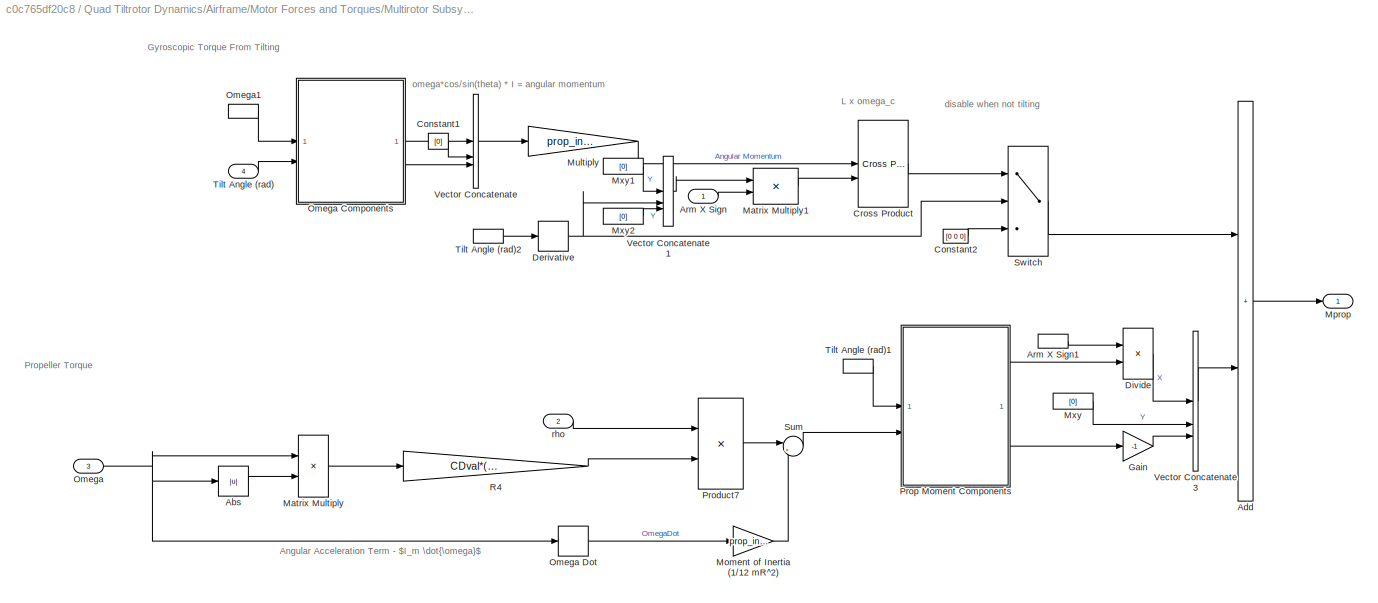
BLOCK [SubSystem] Quad Tiltrotor Dynamics/Airframe/Motor Forces and Torques/Multirotor Subsystem/Rotor Subsystem/Moment Calculation
BLOCK [SubSystem] Quad Tiltrotor Dynamics/Airframe/Motor Forces and Torques/Multirotor Subsystem/Rotor Subsystem/Moment Calculation/ Omega Components
BLOCK [Trigonometry] Quad Tiltrotor Dynamics/Airframe/Motor Forces and Torques/Multirotor Subsystem/Rotor Subsystem/Moment Calculation/ Omega Components/Cos
  Operator = cos
BLOCK [Product] Quad Tiltrotor Dynamics/Airframe/Motor Forces and Torques/Multirotor Subsystem/Rotor Subsystem/Moment Calculation/ Omega Components/Divide1
  Inputs = **
BLOCK [Product] Quad Tiltrotor Dynamics/Airframe/Motor Forces and Torques/Multirotor Subsystem/Rotor Subsystem/Moment Calculation/ Omega Components/Divide2
  Inputs = **
BLOCK [Inport] Quad Tiltrotor Dynamics/Airframe/Motor Forces and Torques/Multirotor Subsystem/Rotor Subsystem/Moment Calculation/ Omega Components/Omega
BLOCK [Trigonometry] Quad Tiltrotor Dynamics/Airframe/Motor Forces and Torques/Multirotor Subsystem/Rotor Subsystem/Moment Calculation/ Omega Components/Sin
BLOCK [Inport] Quad Tiltrotor Dynamics/Airframe/Motor Forces and Torques/Multirotor Subsystem/Rotor Subsystem/Moment Calculation/ Omega Components/Tilt Angle (rad)
  Port = 2
BLOCK [Outport] Quad Tiltrotor Dynamics/Airframe/Motor Forces and Torques/Multirotor Subsystem/Rotor Subsystem/Moment Calculation/ Omega Components/Wx
BLOCK [Outport] Quad Tiltrotor Dynamics/Airframe/Motor Forces and Torques/Multirotor Subsystem/Rotor Subsystem/Moment Calculation/ Omega Components/Wz
  Port = 2
BLOCK [Abs] Quad Tiltrotor Dynamics/Airframe/Motor Forces and Torques/Multirotor Subsystem/Rotor Subsystem/Moment Calculation/Abs
  SaturateOnIntegerOverflow = off
BLOCK [Sum] Quad Tiltrotor Dynamics/Airframe/Motor Forces and Torques/Multirotor Subsystem/Rotor Subsystem/Moment Calculation/Add
  IconShape = rectangular
  NameLocation = right
BLOCK [Inport] Quad Tiltrotor Dynamics/Airframe/Motor Forces and Torques/Multirotor Subsystem/Rotor Subsystem/Moment Calculation/Arm X Sign
BLOCK [InportShadow] Quad Tiltrotor Dynamics/Airframe/Motor Forces and Torques/Multirotor Subsystem/Rotor Subsystem/Moment Calculation/Arm X Sign1
BLOCK [Constant] Quad Tiltrotor Dynamics/Airframe/Motor Forces and Torques/Multirotor Subsystem/Rotor Subsystem/Moment Calculation/Constant1
  Value = [0]
BLOCK [Constant] Quad Tiltrotor Dynamics/Airframe/Motor Forces and Torques/Multirotor Subsystem/Rotor Subsystem/Moment Calculation/Constant2
  Value = [0 0 0]
BLOCK [Reference] Quad Tiltrotor Dynamics/Airframe/Motor Forces and Torques/Multirotor Subsystem/Rotor Subsystem/Moment Calculation/Cross Product  REF=matrix_library/Cross Product
  LibrarySourceBlock = simulink/Matrix\nOperations/Cross Product
  SourceBlock = matrix_library/Cross Product
  SourceType = CrossProduct
BLOCK [Derivative] Quad Tiltrotor Dynamics/Airframe/Motor Forces and Torques/Multirotor Subsystem/Rotor Subsystem/Moment Calculation/Derivative
BLOCK [Product] Quad Tiltrotor Dynamics/Airframe/Motor Forces and Torques/Multirotor Subsystem/Rotor Subsystem/Moment Calculation/Divide
  Inputs = **
BLOCK [Gain] Quad Tiltrotor Dynamics/Airframe/Motor Forces and Torques/Multirotor Subsystem/Rotor Subsystem/Moment Calculation/Gain
  Gain = -1
BLOCK [Product] Quad Tiltrotor Dynamics/Airframe/Motor Forces and Torques/Multirotor Subsystem/Rotor Subsystem/Moment Calculation/Matrix Multiply
BLOCK [Product] Quad Tiltrotor Dynamics/Airframe/Motor Forces and Torques/Multirotor Subsystem/Rotor Subsystem/Moment Calculation/Matrix Multiply1
BLOCK [Gain] Quad Tiltrotor Dynamics/Airframe/Motor Forces and Torques/Multirotor Subsystem/Rotor Subsystem/Moment Calculation/Moment of Inertia (1//12 mR^2)
  Gain = prop_inertia
BLOCK [Outport] Quad Tiltrotor Dynamics/Airframe/Motor Forces and Torques/Multirotor Subsystem/Rotor Subsystem/Moment Calculation/Mprop
BLOCK [Gain] Quad Tiltrotor Dynamics/Airframe/Motor Forces and Torques/Multirotor Subsystem/Rotor Subsystem/Moment Calculation/Multiply
  Gain = prop_inertia
BLOCK [Constant] Quad Tiltrotor Dynamics/Airframe/Motor Forces and Torques/Multirotor Subsystem/Rotor Subsystem/Moment Calculation/Mxy
  Value = [0]
BLOCK [Constant] Quad Tiltrotor Dynamics/Airframe/Motor Forces and Torques/Multirotor Subsystem/Rotor Subsystem/Moment Calculation/Mxy1
  Value = [0]
BLOCK [Constant] Quad Tiltrotor Dynamics/Airframe/Motor Forces and Torques/Multirotor Subsystem/Rotor Subsystem/Moment Calculation/Mxy2
  Value = [0]
BLOCK [Inport] Quad Tiltrotor Dynamics/Airframe/Motor Forces and Torques/Multirotor Subsystem/Rotor Subsystem/Moment Calculation/Omega
  Port = 3
BLOCK [Derivative] Quad Tiltrotor Dynamics/Airframe/Motor Forces and Torques/Multirotor Subsystem/Rotor Subsystem/Moment Calculation/Omega Dot
BLOCK [InportShadow] Quad Tiltrotor Dynamics/Airframe/Motor Forces and Torques/Multirotor Subsystem/Rotor Subsystem/Moment Calculation/Omega1
  Port = 3
BLOCK [Product] Quad Tiltrotor Dynamics/Airframe/Motor Forces and Torques/Multirotor Subsystem/Rotor Subsystem/Moment Calculation/Product7
BLOCK [SubSystem] Quad Tiltrotor Dynamics/Airframe/Motor Forces and Torques/Multirotor Subsystem/Rotor Subsystem/Moment Calculation/Prop Moment Components
BLOCK [Trigonometry] Quad Tiltrotor Dynamics/Airframe/Motor Forces and Torques/Multirotor Subsystem/Rotor Subsystem/Moment Calculation/Prop Moment Components/Cos
  Operator = cos
BLOCK [Product] Quad Tiltrotor Dynamics/Airframe/Motor Forces and Torques/Multirotor Subsystem/Rotor Subsystem/Moment Calculation/Prop Moment Components/Divide1
  Inputs = **
BLOCK [Product] Quad Tiltrotor Dynamics/Airframe/Motor Forces and Torques/Multirotor Subsystem/Rotor Subsystem/Moment Calculation/Prop Moment Components/Divide2
  Inputs = **
BLOCK [Trigonometry] Quad Tiltrotor Dynamics/Airframe/Motor Forces and Torques/Multirotor Subsystem/Rotor Subsystem/Moment Calculation/Prop Moment Components/Sin
BLOCK [Inport] Quad Tiltrotor Dynamics/Airframe/Motor Forces and Torques/Multirotor Subsystem/Rotor Subsystem/Moment Calculation/Prop Moment Components/Tilt Angle (rad)
BLOCK [Inport] Quad Tiltrotor Dynamics/Airframe/Motor Forces and Torques/Multirotor Subsystem/Rotor Subsystem/Moment Calculation/Prop Moment Components/To Split
  Port = 2
BLOCK [Outport] Quad Tiltrotor Dynamics/Airframe/Motor Forces and Torques/Multirotor Subsystem/Rotor Subsystem/Moment Calculation/Prop Moment Components/X
BLOCK [Outport] Quad Tiltrotor Dynamics/Airframe/Motor Forces and Torques/Multirotor Subsystem/Rotor Subsystem/Moment Calculation/Prop Moment Components/Z
  Port = 2
BLOCK [Gain] Quad Tiltrotor Dynamics/Airframe/Motor Forces and Torques/Multirotor Subsystem/Rotor Subsystem/Moment Calculation/R4
  Gain = CDval*(pi*R*R)*R*R*R
BLOCK [Sum] Quad Tiltrotor Dynamics/Airframe/Motor Forces and Torques/Multirotor Subsystem/Rotor Subsystem/Moment Calculation/Sum
  Inputs = |++
BLOCK [Switch] Quad Tiltrotor Dynamics/Airframe/Motor Forces and Torques/Multirotor Subsystem/Rotor Subsystem/Moment Calculation/Switch
  Criteria = u2 > Threshold
  InputSameDT = off
  SaturateOnIntegerOverflow = off
BLOCK [Inport] Quad Tiltrotor Dynamics/Airframe/Motor Forces and Torques/Multirotor Subsystem/Rotor Subsystem/Moment Calculation/Tilt Angle (rad)
  Port = 4
BLOCK [InportShadow] Quad Tiltrotor Dynamics/Airframe/Motor Forces and Torques/Multirotor Subsystem/Rotor Subsystem/Moment Calculation/Tilt Angle (rad)1
  Port = 4
BLOCK [InportShadow] Quad Tiltrotor Dynamics/Airframe/Motor Forces and Torques/Multirotor Subsystem/Rotor Subsystem/Moment Calculation/Tilt Angle (rad)2
  Port = 4
BLOCK [Concatenate] Quad Tiltrotor Dynamics/Airframe/Motor Forces and Torques/Multirotor Subsystem/Rotor Subsystem/Moment Calculation/Vector Concatenate
  NumInputs = 3
BLOCK [Concatenate] Quad Tiltrotor Dynamics/Airframe/Motor Forces and Torques/Multirotor Subsystem/Rotor Subsystem/Moment Calculation/Vector Concatenate1
  NumInputs = 3
BLOCK [Concatenate] Quad Tiltrotor Dynamics/Airframe/Motor Forces and Torques/Multirotor Subsystem/Rotor Subsystem/Moment Calculation/Vector Concatenate3
  NumInputs = 3
BLOCK [Inport] Quad Tiltrotor Dynamics/Airframe/Motor Forces and Torques/Multirotor Subsystem/Rotor Subsystem/Moment Calculation/rho
  Port = 2
BLOCK [Outport] Quad Tiltrotor Dynamics/Airframe/Motor Forces and Torques/Multirotor Subsystem/Rotor Subsystem/Mxyz
  NameLocation = right
  Port = 4
BLOCK [Gain] Quad Tiltrotor Dynamics/Airframe/Motor Forces and Torques/Multirotor Subsystem/Rotor Subsystem/NED conversion
  Gain = -1
BLOCK [Gain] Quad Tiltrotor Dynamics/Airframe/Motor Forces and Torques/Multirotor Subsystem/Rotor Subsystem/NED conversion for estimators
  Gain = -1
BLOCK [Gain] Quad Tiltrotor Dynamics/Airframe/Motor Forces and Torques/Multirotor Subsystem/Rotor Subsystem/RPM to Omega
  Gain = 2*pi/60
BLOCK [Sum] Quad Tiltrotor Dynamics/Airframe/Motor Forces and Torques/Multirotor Subsystem/Rotor Subsystem/Sum
  Inputs = |++
BLOCK [Inport] Quad Tiltrotor Dynamics/Airframe/Motor Forces and Torques/Multirotor Subsystem/Rotor Subsystem/Tilt Angle (rad)
  Port = 5
BLOCK [InportShadow] Quad Tiltrotor Dynamics/Airframe/Motor Forces and Torques/Multirotor Subsystem/Rotor Subsystem/Tilt Angle (rad)1
  Port = 5
BLOCK [InportShadow] Quad Tiltrotor Dynamics/Airframe/Motor Forces and Torques/Multirotor Subsystem/Rotor Subsystem/Tilt Angle (rad)2
  Port = 5
BLOCK [UnitDelay] Quad Tiltrotor Dynamics/Airframe/Motor Forces and Torques/Multirotor Subsystem/Rotor Subsystem/Unit Delay
  Commented = on
  HasFrameUpgradeWarning = on
  InitialCondition = lastVh
  SampleTime = 0.001
BLOCK [UnitDelay] Quad Tiltrotor Dynamics/Airframe/Motor Forces and Torques/Multirotor Subsystem/Rotor Subsystem/Unit Delay1
  Commented = on
  HasFrameUpgradeWarning = on
  InitialCondition = 1
  SampleTime = 0.001
BLOCK [Inport] Quad Tiltrotor Dynamics/Airframe/Motor Forces and Torques/Multirotor Subsystem/Rotor Subsystem/rand
  Port = 6
BLOCK [Inport] Quad Tiltrotor Dynamics/Airframe/Motor Forces and Torques/Multirotor Subsystem/Rotor Subsystem/rho
  Port = 2
BLOCK [InportShadow] Quad Tiltrotor Dynamics/Airframe/Motor Forces and Torques/Multirotor Subsystem/Rotor Subsystem/rho1
  Port = 2
BLOCK [Inport] Quad Tiltrotor Dynamics/Airframe/Motor Forces and Torques/Multirotor Subsystem/Rotor Subsystem/rpm
  Port = 3
BLOCK [Outport] Quad Tiltrotor Dynamics/Airframe/Motor Forces and Torques/Multirotor Subsystem/Thrust
  ConcatenationDimension = 2
BLOCK [Inport] Quad Tiltrotor Dynamics/Airframe/Motor Forces and Torques/Multirotor Subsystem/Tilt Angle (rad)
  Port = 5
BLOCK [Inport] Quad Tiltrotor Dynamics/Airframe/Motor Forces and Torques/Multirotor Subsystem/rho
  Port = 2
BLOCK [Inport] Quad Tiltrotor Dynamics/Airframe/Motor Forces and Torques/Multirotor Subsystem/rpm
  Partition = on
  PartitionDimension = 1
  PartitionOffset = 0
  PartitionWidth = 1
  Port = 3
BLOCK [SubSystem] Quad Tiltrotor Dynamics/Airframe/Motor Forces and Torques/Multirotor Subsystem/seed generator
  ErrorFcn = Stateflow.Translate.translate
  PermitHierarchicalResolution = ExplicitOnly
  SFBlockType = MATLAB Function
  SystemSampleTime = SampleTime
  TreatAsAtomicUnit = on
BLOCK [Demux] Quad Tiltrotor Dynamics/Airframe/Motor Forces and Torques/Multirotor Subsystem/seed generator/ Demux 
  Outputs = 1
BLOCK [S-Function] Quad Tiltrotor Dynamics/Airframe/Motor Forces and Torques/Multirotor Subsystem/seed generator/ SFunction 
  EnableBusSupport = on
  FunctionName = sf_sfun
  PortCounts = [1 2]
  SFcnIsStateOwnerBlock = off
  SFunctionDeploymentMode = off
  Tag = Stateflow S-Function 2
BLOCK [Terminator] Quad Tiltrotor Dynamics/Airframe/Motor Forces and Torques/Multirotor Subsystem/seed generator/ Terminator 
BLOCK [Inport] Quad Tiltrotor Dynamics/Airframe/Motor Forces and Torques/Multirotor Subsystem/seed generator/seed
BLOCK [Outport] Quad Tiltrotor Dynamics/Airframe/Motor Forces and Torques/Multirotor Subsystem/seed generator/y
BLOCK [Sum] Quad Tiltrotor Dynamics/Airframe/Motor Forces and Torques/Sum of Elements
  CollapseDim = 2
  CollapseMode = Specified dimension
  IconShape = rectangular
  Inputs = +
BLOCK [Sum] Quad Tiltrotor Dynamics/Airframe/Motor Forces and Torques/Sum of Elements1
  CollapseDim = 2
  CollapseMode = Specified dimension
  IconShape = rectangular
  Inputs = +
BLOCK [Outport] Quad Tiltrotor Dynamics/Airframe/Motor Forces and Torques/Thrust
BLOCK [Inport] Quad Tiltrotor Dynamics/Airframe/Motor Forces and Torques/Tilt Angle
  Port = 3
BLOCK [Constant] Quad Tiltrotor Dynamics/Airframe/Motor Forces and Torques/rho
  Value = 1.225
BLOCK [Inport] Quad Tiltrotor Dynamics/Airframe/Motor Forces and Torques/rpm
  Port = 2
BLOCK [Selector] Quad Tiltrotor Dynamics/Airframe/Selector
  IndexOptions = Index vector (dialog)
  Indices = [3]
  InputPortWidth = 3
  OutputSizes = 1
BLOCK [SubSystem] Quad Tiltrotor Dynamics/Airframe/Subsystem
BLOCK [Inport] Quad Tiltrotor Dynamics/Airframe/Subsystem/DCMbe
BLOCK [Gain] Quad Tiltrotor Dynamics/Airframe/Subsystem/Gain1
  Gain = m
BLOCK [Product] Quad Tiltrotor Dynamics/Airframe/Subsystem/Product
  Multiplication = Matrix(*)
BLOCK [Inport] Quad Tiltrotor Dynamics/Airframe/Subsystem/gravity
  Port = 2
  Unit = m/s^2
BLOCK [Outport] Quad Tiltrotor Dynamics/Airframe/Subsystem/gravity force
  Unit = N
  VectorParamsAs1DForOutWhenUnconnected = off
BLOCK [Sum] Quad Tiltrotor Dynamics/Airframe/Sum
  Inputs = |++
BLOCK [Sum] Quad Tiltrotor Dynamics/Airframe/Summer
  IconShape = rectangular
  Inputs = ++++
BLOCK [Inport] Quad Tiltrotor Dynamics/Airframe/Tilt Angle (Deg)
  Port = 2
BLOCK [Math] Quad Tiltrotor Dynamics/Airframe/Transpose
  Operator = transpose
BLOCK [Inport] Quad Tiltrotor Dynamics/Airframe/Vb
  Port = 3
BLOCK [InportShadow] Quad Tiltrotor Dynamics/Airframe/Vb1
  Port = 3
BLOCK [Inport] Quad Tiltrotor Dynamics/Airframe/Wb
  Port = 6
BLOCK [Inport] Quad Tiltrotor Dynamics/Airframe/Xe
  Port = 5
BLOCK [Inport] Quad Tiltrotor Dynamics/Airframe/rpm
BLOCK [Inport] Quad Tiltrotor Dynamics/Airframe/rpy
  Port = 7
BLOCK [SubSystem] Quad Tiltrotor Dynamics/Input Processing
BLOCK [Demux] Quad Tiltrotor Dynamics/Input Processing/Demux
BLOCK [Gain] Quad Tiltrotor Dynamics/Input Processing/Gain
  Gain = [-1;-1;1;1]
BLOCK [Mux] Quad Tiltrotor Dynamics/Input Processing/Mux
  DisplayOption = bar
BLOCK [Scope] Quad Tiltrotor Dynamics/Input Processing/Scope
  Floating = off
  NumInputPorts = 2
  ScopeSpecificationString = Simulink.scopes.TimeScopeBlockCfg('CurrentConfiguration', extmgr.ConfigurationSet(extmgr.Configuration('Core','General UI',true),extmgr.Configuration('Core','Source UI',true),extmgr.Configuration('Sources','WiredSimulink',true),extmgr.Configuration('Visuals','Time Domain',true,'SerializedDisplays',{struct('MinYLimReal','-2.51771','MaxYLimReal','45.12748','YLabelReal','','MinYLimMag','0.00000','Max...<+1557ch>
BLOCK [Inport] Quad Tiltrotor Dynamics/Input Processing/Throttle [0,1]
BLOCK [Outport] Quad Tiltrotor Dynamics/Input Processing/Tilt Angle
  Port = 2
BLOCK [Inport] Quad Tiltrotor Dynamics/Input Processing/Tilt [-1,1]
  Port = 2
BLOCK [TransferFcn] Quad Tiltrotor Dynamics/Input Processing/Transfer Fcn
  Denominator = [0.05 1]
  Numerator = [45]
BLOCK [TransferFcn] Quad Tiltrotor Dynamics/Input Processing/Transfer Fcn1
  Denominator = [rotorTimeConst 1]
  Numerator = [rotorRPMMax]
BLOCK [TransferFcn] Quad Tiltrotor Dynamics/Input Processing/Transfer Fcn2
  Denominator = [rotorTimeConst 1]
  Numerator = [rotorRPMMax]
BLOCK [TransferFcn] Quad Tiltrotor Dynamics/Input Processing/Transfer Fcn3
  Denominator = [rotorTimeConst 1]
  Numerator = [rotorRPMMax]
BLOCK [TransferFcn] Quad Tiltrotor Dynamics/Input Processing/Transfer Fcn4
  Denominator = [rotorTimeConst 1]
  Numerator = [rotorRPMMax]
BLOCK [Outport] Quad Tiltrotor Dynamics/Input Processing/rpm
BLOCK [RateTransition] Quad Tiltrotor Dynamics/Rate Transition
  OutPortSampleTime = SampleTime
BLOCK [Outport] Quad Tiltrotor Dynamics/States
BLOCK [SubSystem] Quad Tiltrotor Dynamics/States Bus
BLOCK [BusCreator] Quad Tiltrotor Dynamics/States Bus/Bus Creator
  DisplayOption = bar
  InheritFromInputs = on
  Inputs = X,Y,Z,yaw,pitch,roll,dx,dy,dz,p,q,r,ddx,ddy,ddz
BLOCK [Inport] Quad Tiltrotor Dynamics/States Bus/DCMbe
  Port = 4
BLOCK [Demux] Quad Tiltrotor Dynamics/States Bus/Demux
  Outputs = 3
BLOCK [Demux] Quad Tiltrotor Dynamics/States Bus/Demux1
  Outputs = 3
BLOCK [Demux] Quad Tiltrotor Dynamics/States Bus/Demux2
  Outputs = 3
BLOCK [Demux] Quad Tiltrotor Dynamics/States Bus/Demux3
  Outputs = 3
BLOCK [Demux] Quad Tiltrotor Dynamics/States Bus/Demux4
  Outputs = 3
BLOCK [Product] Quad Tiltrotor Dynamics/States Bus/Matrix Multiply
  Multiplication = Matrix(*)
BLOCK [Product] Quad Tiltrotor Dynamics/States Bus/Matrix Multiply1
  Multiplication = Matrix(*)
BLOCK [Outport] Quad Tiltrotor Dynamics/States Bus/States
BLOCK [Math] Quad Tiltrotor Dynamics/States Bus/Transpose
  Operator = transpose
BLOCK [Inport] Quad Tiltrotor Dynamics/States Bus/Ve
BLOCK [Inport] Quad Tiltrotor Dynamics/States Bus/Wb
  Port = 5
BLOCK [Inport] Quad Tiltrotor Dynamics/States Bus/Xe
  Port = 2
BLOCK [Inport] Quad Tiltrotor Dynamics/States Bus/acc_lnav
  Port = 6
BLOCK [Inport] Quad Tiltrotor Dynamics/States Bus/rpy
  Port = 3
BLOCK [Selector] Quad Tiltrotor Dynamics/States Bus/ypr
  IndexOptions = Index vector (dialog)
  Indices = [3 2 1]
  InputPortWidth = 3
  OutputSizes = 1
BLOCK [Terminator] Quad Tiltrotor Dynamics/Terminator
BLOCK [Terminator] Quad Tiltrotor Dynamics/Terminator1
BLOCK [Inport] Quad Tiltrotor Dynamics/Throttle [0,1]
BLOCK [Inport] Quad Tiltrotor Dynamics/Tilt [-1,1]
  Port = 2
BLOCK [SubSystem] ROS Tilt Subscriber
BLOCK [BusSelector] ROS Tilt Subscriber/Bus Selector1
  OutputSignals = Controls
BLOCK [DataTypeConversion] ROS Tilt Subscriber/Cast
  OutDataTypeStr = double
  RndMeth = Floor
  SaturateOnIntegerOverflow = off
BLOCK [Gain] ROS Tilt Subscriber/Gain
  Gain = -1
BLOCK [Selector] ROS Tilt Subscriber/Selector
  IndexOptions = Index vector (dialog)
  Indices = [1]
  InputPortWidth = 8
  OutputSizes = 1
BLOCK [Reference] ROS Tilt Subscriber/Subscribe  REF=robotlib/Subscribe
  SourceBlock = robotlib/Subscribe
  SourceType = ROS Subscribe
BLOCK [Terminator] ROS Tilt Subscriber/Terminator
BLOCK [Outport] ROS Tilt Subscriber/Tilt [-1,1]
BLOCK [SubSystem] Sensors
  PortSchema = {"entries":[{"content":{"sides":[{"content":{"connectorIds":["In1"]},"type":"ConnectorPlacement.EquallySpacedRectSide","uuid":"4002fad5-cd2c-424c-b237-bc5c8c05716b"},{"content":{"connectorIds":["Out1","Out2","Out3","Out4","Out5","Out6","Out7","Out8"],"side":"RIGHT"},"type":"ConnectorPlacement.EquallySpacedRectSide","uuid":"9eebcde2-0965-4c2d-bc23-958f112ae05f"},{"content":{"connectorIds":["Out9"],...<+421ch>
BLOCK [SubSystem] Sensors/ 
  PortSchema = {"entries":[{"content":{"sides":[{"content":{"connectorIds":[]},"type":"ConnectorPlacement.EquallySpacedRectSide","uuid":"7ecc8b21-8f8f-4144-826a-6b68e30dbf7d"},{"content":{"connectorIds":["Out1"],"side":"RIGHT"},"type":"ConnectorPlacement.EquallySpacedRectSide","uuid":"81a1dd55-8330-4386-9921-36c0eb60d526"},{"content":{"connectorIds":[],"side":"TOP"},"type":"ConnectorPlacement.EquallySpacedRectSi...<+384ch>
BLOCK [Selector] Sensors/ /Extract Altitude
  IndexOptions = Index vector (dialog)
  Indices = [3]
  InputPortWidth = 3
  OutputSizes = 1
BLOCK [Inport] Sensors/ /GPS Position
BLOCK [Gain] Sensors/ /Gain1
  Gain = 1/m_to_mm
BLOCK [Gain] Sensors/ /Gain2
  Gain = m_to_mm
BLOCK [Reference] Sensors/ /Lapse Rate Model  REF=aerolibatmos2/ISA Atmosphere Model
  SourceBlock = aerolibatmos2/ISA Atmosphere Model
  SourceType = International Standard Atmosphere Model
BLOCK [Outport] Sensors/ /Pressure
BLOCK [RandomNumber] Sensors/ /Random Number1
  SampleTime = SampleTime
  Seed = 10
  Variance = 10000
BLOCK [Sum] Sensors/ /Sum1
  IconShape = rectangular
  Inputs = |++
BLOCK [Terminator] Sensors/ /Terminator
BLOCK [Terminator] Sensors/ /Terminator1
BLOCK [Terminator] Sensors/ /Terminator2
BLOCK [Outport] Sensors/Acc
BLOCK [Outport] Sensors/Course
  Port = 8
BLOCK [SubSystem] Sensors/GNSS//GPS Simulation
  PortSchema = {"entries":[{"content":{"sides":[{"content":{"connectorIds":["In1"]},"type":"ConnectorPlacement.EquallySpacedRectSide","uuid":"4934e8ff-5d4b-4e11-968d-c23bd62383a0"},{"content":{"connectorIds":["Out1","Out2","Out3"],"side":"RIGHT"},"type":"ConnectorPlacement.EquallySpacedRectSide","uuid":"9ec8bc0a-2d3c-4dca-835c-010ac29b6ebc"},{"content":{"connectorIds":["Out4"],"side":"TOP"},"type":"ConnectorPlac...<+260ch>
BLOCK [BusSelector] Sensors/GNSS//GPS Simulation/Bus Selector
  OutputAsBus = on
  OutputSignals = dx,dy,dz
BLOCK [BusSelector] Sensors/GNSS//GPS Simulation/Bus Selector1
  OutputAsBus = on
  OutputSignals = X,Y,Z
BLOCK [Outport] Sensors/GNSS//GPS Simulation/Course
  Port = 3
BLOCK [Reference] Sensors/GNSS//GPS Simulation/GPS  REF=sensorgpslib/GPS
  SourceBlock = sensorgpslib/GPS
  SourceType = fusion.internal.simulink.gpsSensor
BLOCK [Outport] Sensors/GNSS//GPS Simulation/GndSpeed
  Port = 2
BLOCK [Outport] Sensors/GNSS//GPS Simulation/LLA
  Port = 4
BLOCK [Reshape] Sensors/GNSS//GPS Simulation/Reshape1
  OutputDimensionality = Row vector (2-D)
BLOCK [Reshape] Sensors/GNSS//GPS Simulation/Reshape3
  OutputDimensionality = Row vector (2-D)
BLOCK [Inport] Sensors/GNSS//GPS Simulation/States
BLOCK [Outport] Sensors/GNSS//GPS Simulation/Velocity
BLOCK [Outport] Sensors/GndSpeed
  Port = 7
BLOCK [Outport] Sensors/Gyro
  Port = 2
BLOCK [SubSystem] Sensors/IMU Simulation
BLOCK [Outport] Sensors/IMU Simulation/Acc
BLOCK [BusSelector] Sensors/IMU Simulation/Bus Selector1
  OutputAsBus = on
  OutputSignals = p,q,r
BLOCK [BusSelector] Sensors/IMU Simulation/Bus Selector2
  OutputAsBus = on
  OutputSignals = yaw,pitch,roll
BLOCK [BusSelector] Sensors/IMU Simulation/Bus Selector3
  OutputAsBus = on
  OutputSignals = ddx,ddy,ddz
BLOCK [Reference] Sensors/IMU Simulation/Coordinate Transformation Conversion1  REF=robotcorelib/Coordinate Transformation Conversion
  SourceBlock = robotcorelib/Coordinate Transformation Conversion
  SourceType = robotics.slcore.internal.block.CoordinateTransformationConversion
BLOCK [Gain] Sensors/IMU Simulation/Gain
  Gain = -1
BLOCK [Outport] Sensors/IMU Simulation/Gyro
  Port = 2
BLOCK [Reference] Sensors/IMU Simulation/IMU1  REF=mspsensorlib/IMU
  SourceBlock = mspsensorlib/IMU
  SourceType = fusion.simulink.imuSensor
BLOCK [Outport] Sensors/IMU Simulation/Mag
  Port = 3
BLOCK [Reshape] Sensors/IMU Simulation/Reshape
  OutputDimensionality = Row vector (2-D)
BLOCK [Reshape] Sensors/IMU Simulation/Reshape2
  OutputDimensionality = Row vector (2-D)
BLOCK [Reshape] Sensors/IMU Simulation/Reshape3
  OutputDimensionality = Row vector (2-D)
BLOCK [Inport] Sensors/IMU Simulation/States
BLOCK [Outport] Sensors/LLA
  Port = 5
BLOCK [Outport] Sensors/Mag
  Port = 3
BLOCK [Reference] Sensors/Pilot Joystick All  REF=aerolibanimutils/Pilot Joystick
  Commented = on
  SourceBlock = aerolibanimutils/Pilot Joystick
  SourceType = PilotJoystick
BLOCK [Outport] Sensors/Pressure
  Port = 4
BLOCK [RateTransition] Sensors/Rate Transition
  Commented = on
  OutPortSampleTime = SampleTime
BLOCK [Inport] Sensors/States
BLOCK [SubSystem] Sensors/Subsystem
  Commented = on
BLOCK [Sum] Sensors/Subsystem/Add
  IconShape = rectangular
BLOCK [Sum] Sensors/Subsystem/Add1
  IconShape = rectangular
BLOCK [Sum] Sensors/Subsystem/Add2
  IconShape = rectangular
BLOCK [Sum] Sensors/Subsystem/Add3
  IconShape = rectangular
BLOCK [Constant] Sensors/Subsystem/Constant
  Value = [1 1]
BLOCK [Constant] Sensors/Subsystem/Constant1
  Value = [1000 1000]
BLOCK [Constant] Sensors/Subsystem/Constant2
  Value = 1000
BLOCK [Constant] Sensors/Subsystem/Constant3
  Value = 1000
BLOCK [Gain] Sensors/Subsystem/Gain
  Gain = 1000
BLOCK [Gain] Sensors/Subsystem/Gain1
  Gain = 1/1000
BLOCK [Gain] Sensors/Subsystem/Gain2
  Gain = 1000
BLOCK [Gain] Sensors/Subsystem/Multiply
  Gain = [500 500]
BLOCK [Gain] Sensors/Subsystem/Multiply1
  Gain = 1000
BLOCK [Mux] Sensors/Subsystem/Mux
  DisplayOption = bar
BLOCK [Rounding] Sensors/Subsystem/Round
  Operator = round
BLOCK [Selector] Sensors/Subsystem/Selector
  IndexOptions = Index vector (dialog)
  Indices = [1 2]
  InputPortWidth = 6
  OutputSizes = 1
BLOCK [Selector] Sensors/Subsystem/Selector1
  IndexOptions = Index vector (dialog)
  Indices = [1]
  InputPortWidth = 2
  OutputSizes = 1
BLOCK [Selector] Sensors/Subsystem/Selector2
  IndexOptions = Index vector (dialog)
  Indices = [2]
  InputPortWidth = 2
  OutputSizes = 1
BLOCK [Selector] Sensors/Subsystem/Selector4
  IndexOptions = Index vector (dialog)
  Indices = [6]
  InputPortWidth = 6
  OutputSizes = 1
BLOCK [Selector] Sensors/Subsystem/Throttle
  IndexOptions = Index vector (dialog)
  Indices = [3]
  InputPortWidth = 6
  OutputSizes = 1
BLOCK [Inport] Sensors/Subsystem/analog
BLOCK [Outport] Sensors/Subsystem/pwm
BLOCK [Terminator] Sensors/Terminator
  Commented = on
BLOCK [Terminator] Sensors/Terminator1
  Commented = on
BLOCK [Outport] Sensors/Velocity
  Port = 6
BLOCK [Outport] Sensors/pwm
  Port = 9
BLOCK [Terminator] Terminator
  NameLocation = right
BLOCK [Reference] UAV Animation  REF=uavutilslib/UAV Animation
  Commented = on
  SourceBlock = uavutilslib/UAV Animation
  SourceType = uav.sluav.internal.system.UAVAnimation
ANNOTATION Quad Tiltrotor Dynamics: Goals for this model : A novel vortex ring state escape mechanism for a quad tilt-rotor vehicle. 1. accurately portray thrust forces in a quad-tilt rotor vehicle in an in-place descent to design a controller for - curve fits from CFD for descent in both non tilted and tilted configurations 2. simple transition model since horizontal forces and torques cancel out in both configurations - transition...<+262ch>
ANNOTATION Quad Tiltrotor Dynamics: Note: DCM_be converts a vector written in earth frame to body frame Abe is acceleration of body written in body frame, but measured relative to earth. To get acceleration of body written in earth frame (NED fixed on takeoff location), we need to convert the frame. IMU block's angular velocity and acceleration inputs are written in earth frame (NED)
ANNOTATION Quad Tiltrotor Dynamics/Airframe/Ground Force/Friction Force/Soft Coulomb Friction: Pennestrì, E., Rossi, V., Salvini, P. et al. Review and comparison of dry friction force models. Nonlinear Dyn 83, 1785–1801 (2016). https://doi.org/10.1007/s11071-015-2485-3
ANNOTATION Quad Tiltrotor Dynamics/Airframe/Ground Force/Ground Moment Model/Soft Coulomb Friction: Pennestrì, E., Rossi, V., Salvini, P. et al. Review and comparison of dry friction force models. Nonlinear Dyn 83, 1785–1801 (2016). https://doi.org/10.1007/s11071-015-2485-3
ANNOTATION Quad Tiltrotor Dynamics/Airframe/Motor Forces and Torques/Multirotor Subsystem/Rotor Subsystem: Force Calculation (Standard lift equations from Ct)
ANNOTATION Quad Tiltrotor Dynamics/Airframe/Motor Forces and Torques/Multirotor Subsystem/Rotor Subsystem: Moment Calculation
ANNOTATION Quad Tiltrotor Dynamics/Airframe/Motor Forces and Torques/Multirotor Subsystem/Rotor Subsystem: Thrust coefficient estimator from CFD Data
ANNOTATION Quad Tiltrotor Dynamics/Airframe/Motor Forces and Torques/Multirotor Subsystem/Rotor Subsystem: initialize Vh (uncomment when need to initialize for new prop
ANNOTATION Quad Tiltrotor Dynamics/Airframe/Motor Forces and Torques/Multirotor Subsystem/Rotor Subsystem/Ct Estimator: Accurate method: - model the tilt in ansys and find the thrust variation
ANNOTATION Quad Tiltrotor Dynamics/Airframe/Motor Forces and Torques/Multirotor Subsystem/Rotor Subsystem/Ct Estimator: Simplified method: - do some interpolation/weighted average between tilted and non tilted estimators
ANNOTATION Quad Tiltrotor Dynamics/Airframe/Motor Forces and Torques/Multirotor Subsystem/Rotor Subsystem/Ct Estimator/Ct//C0 Fit: Ct/Ct0 Estimator
ANNOTATION Quad Tiltrotor Dynamics/Airframe/Motor Forces and Torques/Multirotor Subsystem/Rotor Subsystem/Ct Estimator/Ct//C0 Fit: Ct/Ct0 estimation past curve fit
ANNOTATION Quad Tiltrotor Dynamics/Airframe/Motor Forces and Torques/Multirotor Subsystem/Rotor Subsystem/Ct Estimator/Ct//C0 Fit: Thrust Oscillation Simulation
ANNOTATION Quad Tiltrotor Dynamics/Airframe/Motor Forces and Torques/Multirotor Subsystem/Rotor Subsystem/Ct Estimator/Ct//C0 Fit/Subsystem1: $\Delta T=A\sin(\omega t)$ where A and omega are experimental values. Zhang H., Yu Q. and Zhang H.H., Modeling and simulation research on helicopters operating in vortex ring state. Flight Dynamics, 2013. 31(2): 162-166.
ANNOTATION Quad Tiltrotor Dynamics/Airframe/Motor Forces and Torques/Multirotor Subsystem/Rotor Subsystem/Moment Calculation: Angular Acceleration Term - $I_m \dot{\omega}$
ANNOTATION Quad Tiltrotor Dynamics/Airframe/Motor Forces and Torques/Multirotor Subsystem/Rotor Subsystem/Moment Calculation: Gyroscopic Torque From Tilting
ANNOTATION Quad Tiltrotor Dynamics/Airframe/Motor Forces and Torques/Multirotor Subsystem/Rotor Subsystem/Moment Calculation: L x omega_c
ANNOTATION Quad Tiltrotor Dynamics/Airframe/Motor Forces and Torques/Multirotor Subsystem/Rotor Subsystem/Moment Calculation: Propeller Torque
ANNOTATION Quad Tiltrotor Dynamics/Airframe/Motor Forces and Torques/Multirotor Subsystem/Rotor Subsystem/Moment Calculation: disable when not tilting
ANNOTATION Quad Tiltrotor Dynamics/Airframe/Motor Forces and Torques/Multirotor Subsystem/Rotor Subsystem/Moment Calculation: omega*cos/sin(theta) * I = angular momentum
ANNOTATION Sensors: Baro Simulation
ANNOTATION Sensors/IMU Simulation: Note: we need accelerometer output)in A-G, but block outputs G-A.
ANNOTATION Sensors/Subsystem: round to 3 decimal places
LINE Bus Selector:1 -> Mux:1
LINE Bus Selector:2 -> Mux:2
LINE Bus Selector:3 -> Mux:3
LINE Bus Selector:4 -> Mux1:1
LINE Bus Selector:5 -> Mux1:2
LINE Bus Selector:6 -> Mux1:3
LINE Coordinate Transformation Conversion:1 -> UAV Animation:2
LINE Mavlink Actuator Conversion/Data Type Conversion:1 -> Mavlink Actuator Conversion/Selector1:1
LINE Mavlink Actuator Conversion/HIL ACTUATOR_bytes:1 -> Mavlink Actuator Conversion/Rate Transition:1
LINE Mavlink Actuator Conversion/Rate Transition:1 -> Mavlink Actuator Conversion/Data Type Conversion:1
LINE Mavlink Actuator Conversion/Saturation:1 -> Mavlink Actuator Conversion/Actuator:1
LINE Mavlink Actuator Conversion/Selector1:1 -> Mavlink Actuator Conversion/Saturation:1
LINE Mavlink Actuator Conversion:1 -> Quad Tiltrotor Dynamics:1
LINE Mavlink Packaging/Acc:1 -> Mavlink Packaging/IMUPackaging:1
LINE Mavlink Packaging/Course:1 -> Mavlink Packaging/GPSPackaging:4
LINE Mavlink Packaging/GPSPackaging:1 -> Mavlink Packaging/Mux:2
LINE Mavlink Packaging/GndSpeed:1 -> Mavlink Packaging/GPSPackaging:3
LINE Mavlink Packaging/Gyro:1 -> Mavlink Packaging/IMUPackaging:2
LINE Mavlink Packaging/IMUPackaging:1 -> Mavlink Packaging/Mux:1
LINE Mavlink Packaging/LLA:1 -> Mavlink Packaging/GPSPackaging:1
LINE Mavlink Packaging/Mag:1 -> Mavlink Packaging/IMUPackaging:3
NET Mavlink Packaging/Mux:1 -> Mavlink Packaging/Selector1:1, Mavlink Packaging/Selector:1
LINE Mavlink Packaging/PX4SITLConnection:1 -> Mavlink Packaging/HIL Actuator Bytes:1
LINE Mavlink Packaging/Pressure:1 -> Mavlink Packaging/IMUPackaging:4
LINE Mavlink Packaging/Selector1:1 -> Mavlink Packaging/PX4SITLConnection:2
LINE Mavlink Packaging/Selector:1 -> Mavlink Packaging/PX4SITLConnection:1
LINE Mavlink Packaging/Velocity:1 -> Mavlink Packaging/GPSPackaging:2
LINE Mavlink Packaging:1 -> Mavlink Actuator Conversion:1
LINE Mux1:1 -> Coordinate Transformation Conversion:1
LINE Mux:1 -> UAV Animation:1
LINE Quad Tiltrotor Dynamics/6DOF (Quaternion):1 -> Quad Tiltrotor Dynamics/States Bus:1
NET Quad Tiltrotor Dynamics/6DOF (Quaternion):2 -> Quad Tiltrotor Dynamics/Airframe:5, Quad Tiltrotor Dynamics/States Bus:2
NET Quad Tiltrotor Dynamics/6DOF (Quaternion):3 -> Quad Tiltrotor Dynamics/Airframe:7, Quad Tiltrotor Dynamics/States Bus:3
NET Quad Tiltrotor Dynamics/6DOF (Quaternion):4 -> Quad Tiltrotor Dynamics/Airframe:4, Quad Tiltrotor Dynamics/States Bus:4
LINE Quad Tiltrotor Dynamics/6DOF (Quaternion):5 -> Quad Tiltrotor Dynamics/Airframe:3
NET Quad Tiltrotor Dynamics/6DOF (Quaternion):6 -> Quad Tiltrotor Dynamics/Airframe:6, Quad Tiltrotor Dynamics/States Bus:5
LINE Quad Tiltrotor Dynamics/6DOF (Quaternion):7 -> Quad Tiltrotor Dynamics/Terminator:1
LINE Quad Tiltrotor Dynamics/6DOF (Quaternion):8 -> Quad Tiltrotor Dynamics/Terminator1:1
LINE Quad Tiltrotor Dynamics/6DOF (Quaternion):9 -> Quad Tiltrotor Dynamics/States Bus:6
NET Quad Tiltrotor Dynamics/Airframe/Aerodynamic drag/Add:1 -> Quad Tiltrotor Dynamics/Airframe/Aerodynamic drag/Dot Product:1, Quad Tiltrotor Dynamics/Airframe/Aerodynamic drag/Dot Product:2, Quad Tiltrotor Dynamics/Airframe/Aerodynamic drag/Product:2
LINE Quad Tiltrotor Dynamics/Airframe/Aerodynamic drag/Constant1:1 -> Quad Tiltrotor Dynamics/Airframe/Aerodynamic drag/Product:3
LINE Quad Tiltrotor Dynamics/Airframe/Aerodynamic drag/Constant:1 -> Quad Tiltrotor Dynamics/Airframe/Aerodynamic drag/Matrix Multiply:2
LINE Quad Tiltrotor Dynamics/Airframe/Aerodynamic drag/DCMbe:1 -> Quad Tiltrotor Dynamics/Airframe/Aerodynamic drag/Matrix Multiply:1
LINE Quad Tiltrotor Dynamics/Airframe/Aerodynamic drag/Dot Product:1 -> Quad Tiltrotor Dynamics/Airframe/Aerodynamic drag/Saturation:1
LINE Quad Tiltrotor Dynamics/Airframe/Aerodynamic drag/Matrix Multiply:1 -> Quad Tiltrotor Dynamics/Airframe/Aerodynamic drag/Add:1
NET Quad Tiltrotor Dynamics/Airframe/Aerodynamic drag/Product:1 -> Quad Tiltrotor Dynamics/Airframe/Aerodynamic drag/Display:1, Quad Tiltrotor Dynamics/Airframe/Aerodynamic drag/F_d:1
LINE Quad Tiltrotor Dynamics/Airframe/Aerodynamic drag/Saturation:1 -> Quad Tiltrotor Dynamics/Airframe/Aerodynamic drag/Square Root:1
LINE Quad Tiltrotor Dynamics/Airframe/Aerodynamic drag/Square Root:1 -> Quad Tiltrotor Dynamics/Airframe/Aerodynamic drag/Product:1
LINE Quad Tiltrotor Dynamics/Airframe/Aerodynamic drag/Vb:1 -> Quad Tiltrotor Dynamics/Airframe/Aerodynamic drag/gain:1
LINE Quad Tiltrotor Dynamics/Airframe/Aerodynamic drag/gain:1 -> Quad Tiltrotor Dynamics/Airframe/Aerodynamic drag/Add:2
LINE Quad Tiltrotor Dynamics/Airframe/Aerodynamic drag:1 -> Quad Tiltrotor Dynamics/Airframe/Summer:3
LINE Quad Tiltrotor Dynamics/Airframe/DCMbe1:1 -> Quad Tiltrotor Dynamics/Airframe/Aerodynamic drag:1
LINE Quad Tiltrotor Dynamics/Airframe/DCMbe2:1 -> Quad Tiltrotor Dynamics/Airframe/Ground Force:2
LINE Quad Tiltrotor Dynamics/Airframe/DCMbe:1 -> Quad Tiltrotor Dynamics/Airframe/Subsystem:1
LINE Quad Tiltrotor Dynamics/Airframe/Gravity:1 -> Quad Tiltrotor Dynamics/Airframe/Subsystem:2
LINE Quad Tiltrotor Dynamics/Airframe/Ground Force/DCMbe1:1 -> Quad Tiltrotor Dynamics/Airframe/Ground Force/Matrix Multiply1:1
LINE Quad Tiltrotor Dynamics/Airframe/Ground Force/DCMbe:1 -> Quad Tiltrotor Dynamics/Airframe/Ground Force/Transpose1:1
LINE Quad Tiltrotor Dynamics/Airframe/Ground Force/Friction Force/Fn:1 -> Quad Tiltrotor Dynamics/Airframe/Ground Force/Friction Force/Product:2
LINE Quad Tiltrotor Dynamics/Airframe/Ground Force/Friction Force/Product:1 -> Quad Tiltrotor Dynamics/Airframe/Ground Force/Friction Force/Unary Minus:1
LINE Quad Tiltrotor Dynamics/Airframe/Ground Force/Friction Force/Saturation:1 -> Quad Tiltrotor Dynamics/Airframe/Ground Force/Friction Force/Friction:1
LINE Quad Tiltrotor Dynamics/Airframe/Ground Force/Friction Force/Soft Coulomb Friction/In1:1 -> Quad Tiltrotor Dynamics/Airframe/Ground Force/Friction Force/Soft Coulomb Friction/vd:1
LINE Quad Tiltrotor Dynamics/Airframe/Ground Force/Friction Force/Soft Coulomb Friction/Tanh:1 -> Quad Tiltrotor Dynamics/Airframe/Ground Force/Friction Force/Soft Coulomb Friction/friction coefficient:1
LINE Quad Tiltrotor Dynamics/Airframe/Ground Force/Friction Force/Soft Coulomb Friction/friction coefficient:1 -> Quad Tiltrotor Dynamics/Airframe/Ground Force/Friction Force/Soft Coulomb Friction/Out1:1
LINE Quad Tiltrotor Dynamics/Airframe/Ground Force/Friction Force/Soft Coulomb Friction/vd:1 -> Quad Tiltrotor Dynamics/Airframe/Ground Force/Friction Force/Soft Coulomb Friction/Tanh:1
LINE Quad Tiltrotor Dynamics/Airframe/Ground Force/Friction Force/Soft Coulomb Friction:1 -> Quad Tiltrotor Dynamics/Airframe/Ground Force/Friction Force/Product:1
LINE Quad Tiltrotor Dynamics/Airframe/Ground Force/Friction Force/Unary Minus:1 -> Quad Tiltrotor Dynamics/Airframe/Ground Force/Friction Force/Saturation:1
LINE Quad Tiltrotor Dynamics/Airframe/Ground Force/Friction Force/V:1 -> Quad Tiltrotor Dynamics/Airframe/Ground Force/Friction Force/Soft Coulomb Friction:1
LINE Quad Tiltrotor Dynamics/Airframe/Ground Force/Friction Force:1 -> Quad Tiltrotor Dynamics/Airframe/Ground Force/Mux1:1
LINE Quad Tiltrotor Dynamics/Airframe/Ground Force/Ground Moment Model/Add:1 -> Quad Tiltrotor Dynamics/Airframe/Ground Force/Ground Moment Model/Saturation:1
LINE Quad Tiltrotor Dynamics/Airframe/Ground Force/Ground Moment Model/Constant:1 -> Quad Tiltrotor Dynamics/Airframe/Ground Force/Ground Moment Model/Switch:3
LINE Quad Tiltrotor Dynamics/Airframe/Ground Force/Ground Moment Model/Gain1:1 -> Quad Tiltrotor Dynamics/Airframe/Ground Force/Ground Moment Model/Add:1
LINE Quad Tiltrotor Dynamics/Airframe/Ground Force/Ground Moment Model/Gain2:1 -> Quad Tiltrotor Dynamics/Airframe/Ground Force/Ground Moment Model/Mux2:1
LINE Quad Tiltrotor Dynamics/Airframe/Ground Force/Ground Moment Model/Gain:1 -> Quad Tiltrotor Dynamics/Airframe/Ground Force/Ground Moment Model/Add:2
LINE Quad Tiltrotor Dynamics/Airframe/Ground Force/Ground Moment Model/Mux2:1 -> Quad Tiltrotor Dynamics/Airframe/Ground Force/Ground Moment Model/Switch:1
NET Quad Tiltrotor Dynamics/Airframe/Ground Force/Ground Moment Model/Normal force:1 -> Quad Tiltrotor Dynamics/Airframe/Ground Force/Ground Moment Model/Product:1, Quad Tiltrotor Dynamics/Airframe/Ground Force/Ground Moment Model/Switch:2
LINE Quad Tiltrotor Dynamics/Airframe/Ground Force/Ground Moment Model/Product:1 -> Quad Tiltrotor Dynamics/Airframe/Ground Force/Ground Moment Model/Saturation2:1
LINE Quad Tiltrotor Dynamics/Airframe/Ground Force/Ground Moment Model/Saturation1:1 -> Quad Tiltrotor Dynamics/Airframe/Ground Force/Ground Moment Model/Selector5:1
LINE Quad Tiltrotor Dynamics/Airframe/Ground Force/Ground Moment Model/Saturation2:1 -> Quad Tiltrotor Dynamics/Airframe/Ground Force/Ground Moment Model/Mux2:2
LINE Quad Tiltrotor Dynamics/Airframe/Ground Force/Ground Moment Model/Saturation:1 -> Quad Tiltrotor Dynamics/Airframe/Ground Force/Ground Moment Model/Gain2:1
LINE Quad Tiltrotor Dynamics/Airframe/Ground Force/Ground Moment Model/Selector3:1 -> Quad Tiltrotor Dynamics/Airframe/Ground Force/Ground Moment Model/Soft Coulomb Friction:1
LINE Quad Tiltrotor Dynamics/Airframe/Ground Force/Ground Moment Model/Selector4:1 -> Quad Tiltrotor Dynamics/Airframe/Ground Force/Ground Moment Model/Gain1:1
LINE Quad Tiltrotor Dynamics/Airframe/Ground Force/Ground Moment Model/Selector5:1 -> Quad Tiltrotor Dynamics/Airframe/Ground Force/Ground Moment Model/Gain:1
LINE Quad Tiltrotor Dynamics/Airframe/Ground Force/Ground Moment Model/Soft Coulomb Friction/In1:1 -> Quad Tiltrotor Dynamics/Airframe/Ground Force/Ground Moment Model/Soft Coulomb Friction/vd:1
LINE Quad Tiltrotor Dynamics/Airframe/Ground Force/Ground Moment Model/Soft Coulomb Friction/Tanh:1 -> Quad Tiltrotor Dynamics/Airframe/Ground Force/Ground Moment Model/Soft Coulomb Friction/friction coefficient:1
LINE Quad Tiltrotor Dynamics/Airframe/Ground Force/Ground Moment Model/Soft Coulomb Friction/friction coefficient:1 -> Quad Tiltrotor Dynamics/Airframe/Ground Force/Ground Moment Model/Soft Coulomb Friction/Out1:1
LINE Quad Tiltrotor Dynamics/Airframe/Ground Force/Ground Moment Model/Soft Coulomb Friction/vd:1 -> Quad Tiltrotor Dynamics/Airframe/Ground Force/Ground Moment Model/Soft Coulomb Friction/Tanh:1
LINE Quad Tiltrotor Dynamics/Airframe/Ground Force/Ground Moment Model/Soft Coulomb Friction:1 -> Quad Tiltrotor Dynamics/Airframe/Ground Force/Ground Moment Model/Unary Minus:1
LINE Quad Tiltrotor Dynamics/Airframe/Ground Force/Ground Moment Model/Switch:1 -> Quad Tiltrotor Dynamics/Airframe/Ground Force/Ground Moment Model/Mb:1
LINE Quad Tiltrotor Dynamics/Airframe/Ground Force/Ground Moment Model/Unary Minus:1 -> Quad Tiltrotor Dynamics/Airframe/Ground Force/Ground Moment Model/Product:2
LINE Quad Tiltrotor Dynamics/Airframe/Ground Force/Ground Moment Model/rpy:1 -> Quad Tiltrotor Dynamics/Airframe/Ground Force/Ground Moment Model/Saturation1:1
NET Quad Tiltrotor Dynamics/Airframe/Ground Force/Ground Moment Model/wb:1 -> Quad Tiltrotor Dynamics/Airframe/Ground Force/Ground Moment Model/Selector3:1, Quad Tiltrotor Dynamics/Airframe/Ground Force/Ground Moment Model/Selector4:1
LINE Quad Tiltrotor Dynamics/Airframe/Ground Force/Ground Moment Model:1 -> Quad Tiltrotor Dynamics/Airframe/Ground Force/Mb_contact:1
LINE Quad Tiltrotor Dynamics/Airframe/Ground Force/Matrix Multiply1:1 -> Quad Tiltrotor Dynamics/Airframe/Ground Force/F contact:1
NET Quad Tiltrotor Dynamics/Airframe/Ground Force/Matrix Multiply:1 -> Quad Tiltrotor Dynamics/Airframe/Ground Force/Selector1:1, Quad Tiltrotor Dynamics/Airframe/Ground Force/Selector2:1
LINE Quad Tiltrotor Dynamics/Airframe/Ground Force/Mux1:1 -> Quad Tiltrotor Dynamics/Airframe/Ground Force/Matrix Multiply1:2
LINE Quad Tiltrotor Dynamics/Airframe/Ground Force/Normal Force/Add:1 -> Quad Tiltrotor Dynamics/Airframe/Ground Force/Normal Force/Switch:3
LINE Quad Tiltrotor Dynamics/Airframe/Ground Force/Normal Force/Constant:1 -> Quad Tiltrotor Dynamics/Airframe/Ground Force/Normal Force/Switch:1
LINE Quad Tiltrotor Dynamics/Airframe/Ground Force/Normal Force/Damper Kp:1 -> Quad Tiltrotor Dynamics/Airframe/Ground Force/Normal Force/Add:2
LINE Quad Tiltrotor Dynamics/Airframe/Ground Force/Normal Force/Saturation:1 -> Quad Tiltrotor Dynamics/Airframe/Ground Force/Normal Force/Normal:1
LINE Quad Tiltrotor Dynamics/Airframe/Ground Force/Normal Force/Spring Kp:1 -> Quad Tiltrotor Dynamics/Airframe/Ground Force/Normal Force/Add:1
LINE Quad Tiltrotor Dynamics/Airframe/Ground Force/Normal Force/Switch:1 -> Quad Tiltrotor Dynamics/Airframe/Ground Force/Normal Force/Saturation:1
LINE Quad Tiltrotor Dynamics/Airframe/Ground Force/Normal Force/Unary Minus1:1 -> Quad Tiltrotor Dynamics/Airframe/Ground Force/Normal Force/Damper Kp:1
NET Quad Tiltrotor Dynamics/Airframe/Ground Force/Normal Force/Unary Minus:1 -> Quad Tiltrotor Dynamics/Airframe/Ground Force/Normal Force/Spring Kp:1, Quad Tiltrotor Dynamics/Airframe/Ground Force/Normal Force/Switch:2
LINE Quad Tiltrotor Dynamics/Airframe/Ground Force/Normal Force/Vz:1 -> Quad Tiltrotor Dynamics/Airframe/Ground Force/Normal Force/Unary Minus1:1
LINE Quad Tiltrotor Dynamics/Airframe/Ground Force/Normal Force/Z:1 -> Quad Tiltrotor Dynamics/Airframe/Ground Force/Normal Force/Unary Minus:1
NET Quad Tiltrotor Dynamics/Airframe/Ground Force/Normal Force:1 -> Quad Tiltrotor Dynamics/Airframe/Ground Force/Friction Force:2, Quad Tiltrotor Dynamics/Airframe/Ground Force/Ground Moment Model:1, Quad Tiltrotor Dynamics/Airframe/Ground Force/Unary Minus1:1
LINE Quad Tiltrotor Dynamics/Airframe/Ground Force/Selector1:1 -> Quad Tiltrotor Dynamics/Airframe/Ground Force/Normal Force:1
LINE Quad Tiltrotor Dynamics/Airframe/Ground Force/Selector2:1 -> Quad Tiltrotor Dynamics/Airframe/Ground Force/Friction Force:1
LINE Quad Tiltrotor Dynamics/Airframe/Ground Force/Selector3:1 -> Quad Tiltrotor Dynamics/Airframe/Ground Force/Normal Force:2
LINE Quad Tiltrotor Dynamics/Airframe/Ground Force/Transpose1:1 -> Quad Tiltrotor Dynamics/Airframe/Ground Force/Matrix Multiply:1
LINE Quad Tiltrotor Dynamics/Airframe/Ground Force/Unary Minus1:1 -> Quad Tiltrotor Dynamics/Airframe/Ground Force/Mux1:2
LINE Quad Tiltrotor Dynamics/Airframe/Ground Force/Vb:1 -> Quad Tiltrotor Dynamics/Airframe/Ground Force/Matrix Multiply:2
LINE Quad Tiltrotor Dynamics/Airframe/Ground Force/Wb:1 -> Quad Tiltrotor Dynamics/Airframe/Ground Force/Ground Moment Model:2
LINE Quad Tiltrotor Dynamics/Airframe/Ground Force/Xe:1 -> Quad Tiltrotor Dynamics/Airframe/Ground Force/Selector3:1
LINE Quad Tiltrotor Dynamics/Airframe/Ground Force/rpy:1 -> Quad Tiltrotor Dynamics/Airframe/Ground Force/Ground Moment Model:3
LINE Quad Tiltrotor Dynamics/Airframe/Ground Force:1 -> Quad Tiltrotor Dynamics/Airframe/Summer:4
LINE Quad Tiltrotor Dynamics/Airframe/Ground Force:2 -> Quad Tiltrotor Dynamics/Airframe/Sum:2
LINE Quad Tiltrotor Dynamics/Airframe/Motor Forces and Torques/Constant1:1 -> Quad Tiltrotor Dynamics/Airframe/Motor Forces and Torques/Multirotor Subsystem:4
LINE Quad Tiltrotor Dynamics/Airframe/Motor Forces and Torques/Constant:1 -> Quad Tiltrotor Dynamics/Airframe/Motor Forces and Torques/Multirotor Subsystem:6
LINE Quad Tiltrotor Dynamics/Airframe/Motor Forces and Torques/Degrees to Radians:1 -> Quad Tiltrotor Dynamics/Airframe/Motor Forces and Torques/Multirotor Subsystem:5
LINE Quad Tiltrotor Dynamics/Airframe/Motor Forces and Torques/Descent Rate:1 -> Quad Tiltrotor Dynamics/Airframe/Motor Forces and Torques/Multirotor Subsystem:1
LINE Quad Tiltrotor Dynamics/Airframe/Motor Forces and Torques/Multirotor Subsystem/Arm:1 -> Quad Tiltrotor Dynamics/Airframe/Motor Forces and Torques/Multirotor Subsystem/Rotor Subsystem:4
LINE Quad Tiltrotor Dynamics/Airframe/Motor Forces and Torques/Multirotor Subsystem/Descent Rate (+ve down):1 -> Quad Tiltrotor Dynamics/Airframe/Motor Forces and Torques/Multirotor Subsystem/Rotor Subsystem:1
LINE Quad Tiltrotor Dynamics/Airframe/Motor Forces and Torques/Multirotor Subsystem/Input:1 -> Quad Tiltrotor Dynamics/Airframe/Motor Forces and Torques/Multirotor Subsystem/seed generator:1
LINE Quad Tiltrotor Dynamics/Airframe/Motor Forces and Torques/Multirotor Subsystem/Rotor Subsystem/3x3 Cross Product:1 -> Quad Tiltrotor Dynamics/Airframe/Motor Forces and Torques/Multirotor Subsystem/Rotor Subsystem/Sum:1
LINE Quad Tiltrotor Dynamics/Airframe/Motor Forces and Torques/Multirotor Subsystem/Rotor Subsystem/Arm Sign/Arm:1 -> Quad Tiltrotor Dynamics/Airframe/Motor Forces and Torques/Multirotor Subsystem/Rotor Subsystem/Arm Sign/X selector:1
LINE Quad Tiltrotor Dynamics/Airframe/Motor Forces and Torques/Multirotor Subsystem/Rotor Subsystem/Arm Sign/Sign:1 -> Quad Tiltrotor Dynamics/Airframe/Motor Forces and Torques/Multirotor Subsystem/Rotor Subsystem/Arm Sign/Xsign:1
LINE Quad Tiltrotor Dynamics/Airframe/Motor Forces and Torques/Multirotor Subsystem/Rotor Subsystem/Arm Sign/X selector:1 -> Quad Tiltrotor Dynamics/Airframe/Motor Forces and Torques/Multirotor Subsystem/Rotor Subsystem/Arm Sign/Sign:1
LINE Quad Tiltrotor Dynamics/Airframe/Motor Forces and Torques/Multirotor Subsystem/Rotor Subsystem/Arm Sign:1 -> Quad Tiltrotor Dynamics/Airframe/Motor Forces and Torques/Multirotor Subsystem/Rotor Subsystem/Moment Calculation:1
NET Quad Tiltrotor Dynamics/Airframe/Motor Forces and Torques/Multirotor Subsystem/Rotor Subsystem/Arm:1 -> Quad Tiltrotor Dynamics/Airframe/Motor Forces and Torques/Multirotor Subsystem/Rotor Subsystem/3x3 Cross Product:2, Quad Tiltrotor Dynamics/Airframe/Motor Forces and Torques/Multirotor Subsystem/Rotor Subsystem/Arm Sign:1, Quad Tiltrotor Dynamics/Airframe/Motor Forces and Torques/Multirotor Subsystem/Rotor Subsystem/Force Calculation:5
NET Quad Tiltrotor Dynamics/Airframe/Motor Forces and Torques/Multirotor Subsystem/Rotor Subsystem/Ct Estimator/Abs:1 -> Quad Tiltrotor Dynamics/Airframe/Motor Forces and Torques/Multirotor Subsystem/Rotor Subsystem/Ct Estimator/Ct0 estimator from RPM:1, Quad Tiltrotor Dynamics/Airframe/Motor Forces and Torques/Multirotor Subsystem/Rotor Subsystem/Ct Estimator/Vi0 Estimator:1
LINE Quad Tiltrotor Dynamics/Airframe/Motor Forces and Torques/Multirotor Subsystem/Rotor Subsystem/Ct Estimator/Calculate Ct:1 -> Quad Tiltrotor Dynamics/Airframe/Motor Forces and Torques/Multirotor Subsystem/Rotor Subsystem/Ct Estimator/Ct:1
LINE Quad Tiltrotor Dynamics/Airframe/Motor Forces and Torques/Multirotor Subsystem/Rotor Subsystem/Ct Estimator/Ct//C0 Fit/Add1:1 -> Quad Tiltrotor Dynamics/Airframe/Motor Forces and Torques/Multirotor Subsystem/Rotor Subsystem/Ct Estimator/Ct//C0 Fit/Ct//Ct0 Past Fit:1
LINE Quad Tiltrotor Dynamics/Airframe/Motor Forces and Torques/Multirotor Subsystem/Rotor Subsystem/Ct Estimator/Ct//C0 Fit/Add:1 -> Quad Tiltrotor Dynamics/Airframe/Motor Forces and Torques/Multirotor Subsystem/Rotor Subsystem/Ct Estimator/Ct//C0 Fit/Ct//Ct0:1
LINE Quad Tiltrotor Dynamics/Airframe/Motor Forces and Torques/Multirotor Subsystem/Rotor Subsystem/Ct Estimator/Ct//C0 Fit/Constant1:1 -> Quad Tiltrotor Dynamics/Airframe/Motor Forces and Torques/Multirotor Subsystem/Rotor Subsystem/Ct Estimator/Ct//C0 Fit/Subtract1:2
LINE Quad Tiltrotor Dynamics/Airframe/Motor Forces and Torques/Multirotor Subsystem/Rotor Subsystem/Ct Estimator/Ct//C0 Fit/Constant2:1 -> Quad Tiltrotor Dynamics/Airframe/Motor Forces and Torques/Multirotor Subsystem/Rotor Subsystem/Ct Estimator/Ct//C0 Fit/Subtract:2
LINE Quad Tiltrotor Dynamics/Airframe/Motor Forces and Torques/Multirotor Subsystem/Rotor Subsystem/Ct Estimator/Ct//C0 Fit/Constant:1 -> Quad Tiltrotor Dynamics/Airframe/Motor Forces and Torques/Multirotor Subsystem/Rotor Subsystem/Ct Estimator/Ct//C0 Fit/Switch:1
LINE Quad Tiltrotor Dynamics/Airframe/Motor Forces and Torques/Multirotor Subsystem/Rotor Subsystem/Ct Estimator/Ct//C0 Fit/Ct//Ct0 Non Tilted Estimator:1 -> Quad Tiltrotor Dynamics/Airframe/Motor Forces and Torques/Multirotor Subsystem/Rotor Subsystem/Ct Estimator/Ct//C0 Fit/Matrix Multiply1:2
LINE Quad Tiltrotor Dynamics/Airframe/Motor Forces and Torques/Multirotor Subsystem/Rotor Subsystem/Ct Estimator/Ct//C0 Fit/Ct//Ct0 Tilted Estimator:1 -> Quad Tiltrotor Dynamics/Airframe/Motor Forces and Torques/Multirotor Subsystem/Rotor Subsystem/Ct Estimator/Ct//C0 Fit/Matrix Multiply:1
LINE Quad Tiltrotor Dynamics/Airframe/Motor Forces and Torques/Multirotor Subsystem/Rotor Subsystem/Ct Estimator/Ct//C0 Fit/Matrix Multiply1:1 -> Quad Tiltrotor Dynamics/Airframe/Motor Forces and Torques/Multirotor Subsystem/Rotor Subsystem/Ct Estimator/Ct//C0 Fit/Add:2
LINE Quad Tiltrotor Dynamics/Airframe/Motor Forces and Torques/Multirotor Subsystem/Rotor Subsystem/Ct Estimator/Ct//C0 Fit/Matrix Multiply2:1 -> Quad Tiltrotor Dynamics/Airframe/Motor Forces and Torques/Multirotor Subsystem/Rotor Subsystem/Ct Estimator/Ct//C0 Fit/Add1:2
LINE Quad Tiltrotor Dynamics/Airframe/Motor Forces and Torques/Multirotor Subsystem/Rotor Subsystem/Ct Estimator/Ct//C0 Fit/Matrix Multiply3:1 -> Quad Tiltrotor Dynamics/Airframe/Motor Forces and Torques/Multirotor Subsystem/Rotor Subsystem/Ct Estimator/Ct//C0 Fit/Add1:3
LINE Quad Tiltrotor Dynamics/Airframe/Motor Forces and Torques/Multirotor Subsystem/Rotor Subsystem/Ct Estimator/Ct//C0 Fit/Matrix Multiply:1 -> Quad Tiltrotor Dynamics/Airframe/Motor Forces and Torques/Multirotor Subsystem/Rotor Subsystem/Ct Estimator/Ct//C0 Fit/Add:1
LINE Quad Tiltrotor Dynamics/Airframe/Motor Forces and Torques/Multirotor Subsystem/Rotor Subsystem/Ct Estimator/Ct//C0 Fit/Subsystem/ Vz//Vi0:1 -> Quad Tiltrotor Dynamics/Airframe/Motor Forces and Torques/Multirotor Subsystem/Rotor Subsystem/Ct Estimator/Ct//C0 Fit/Subsystem/Sum:1
LINE Quad Tiltrotor Dynamics/Airframe/Motor Forces and Torques/Multirotor Subsystem/Rotor Subsystem/Ct Estimator/Ct//C0 Fit/Subsystem/Add2:1 -> Quad Tiltrotor Dynamics/Airframe/Motor Forces and Torques/Multirotor Subsystem/Rotor Subsystem/Ct Estimator/Ct//C0 Fit/Subsystem/Ct//Ct0 Non-tilt Past Fit:1
LINE Quad Tiltrotor Dynamics/Airframe/Motor Forces and Torques/Multirotor Subsystem/Rotor Subsystem/Ct Estimator/Ct//C0 Fit/Subsystem/Constant3:1 -> Quad Tiltrotor Dynamics/Airframe/Motor Forces and Torques/Multirotor Subsystem/Rotor Subsystem/Ct Estimator/Ct//C0 Fit/Subsystem/Sum:2
LINE Quad Tiltrotor Dynamics/Airframe/Motor Forces and Torques/Multirotor Subsystem/Rotor Subsystem/Ct Estimator/Ct//C0 Fit/Subsystem/Constant:1 -> Quad Tiltrotor Dynamics/Airframe/Motor Forces and Torques/Multirotor Subsystem/Rotor Subsystem/Ct Estimator/Ct//C0 Fit/Subsystem/Add2:2
LINE Quad Tiltrotor Dynamics/Airframe/Motor Forces and Torques/Multirotor Subsystem/Rotor Subsystem/Ct Estimator/Ct//C0 Fit/Subsystem/Gain:1 -> Quad Tiltrotor Dynamics/Airframe/Motor Forces and Torques/Multirotor Subsystem/Rotor Subsystem/Ct Estimator/Ct//C0 Fit/Subsystem/Add2:1
LINE Quad Tiltrotor Dynamics/Airframe/Motor Forces and Torques/Multirotor Subsystem/Rotor Subsystem/Ct Estimator/Ct//C0 Fit/Subsystem/Multiply:1 -> Quad Tiltrotor Dynamics/Airframe/Motor Forces and Torques/Multirotor Subsystem/Rotor Subsystem/Ct Estimator/Ct//C0 Fit/Subsystem/Saturation:1
LINE Quad Tiltrotor Dynamics/Airframe/Motor Forces and Torques/Multirotor Subsystem/Rotor Subsystem/Ct Estimator/Ct//C0 Fit/Subsystem/Saturation:1 -> Quad Tiltrotor Dynamics/Airframe/Motor Forces and Torques/Multirotor Subsystem/Rotor Subsystem/Ct Estimator/Ct//C0 Fit/Subsystem/ln:1
LINE Quad Tiltrotor Dynamics/Airframe/Motor Forces and Torques/Multirotor Subsystem/Rotor Subsystem/Ct Estimator/Ct//C0 Fit/Subsystem/Sum:1 -> Quad Tiltrotor Dynamics/Airframe/Motor Forces and Torques/Multirotor Subsystem/Rotor Subsystem/Ct Estimator/Ct//C0 Fit/Subsystem/Multiply:1
LINE Quad Tiltrotor Dynamics/Airframe/Motor Forces and Torques/Multirotor Subsystem/Rotor Subsystem/Ct Estimator/Ct//C0 Fit/Subsystem/ln:1 -> Quad Tiltrotor Dynamics/Airframe/Motor Forces and Torques/Multirotor Subsystem/Rotor Subsystem/Ct Estimator/Ct//C0 Fit/Subsystem/Gain:1
LINE Quad Tiltrotor Dynamics/Airframe/Motor Forces and Torques/Multirotor Subsystem/Rotor Subsystem/Ct Estimator/Ct//C0 Fit/Subsystem1/Clock:1 -> Quad Tiltrotor Dynamics/Airframe/Motor Forces and Torques/Multirotor Subsystem/Rotor Subsystem/Ct Estimator/Ct//C0 Fit/Subsystem1/Matrix Multiply1:1
LINE Quad Tiltrotor Dynamics/Airframe/Motor Forces and Torques/Multirotor Subsystem/Rotor Subsystem/Ct Estimator/Ct//C0 Fit/Subsystem1/Constant3:1 -> Quad Tiltrotor Dynamics/Airframe/Motor Forces and Torques/Multirotor Subsystem/Rotor Subsystem/Ct Estimator/Ct//C0 Fit/Subsystem1/Subtract2:2
LINE Quad Tiltrotor Dynamics/Airframe/Motor Forces and Torques/Multirotor Subsystem/Rotor Subsystem/Ct Estimator/Ct//C0 Fit/Subsystem1/Constant:1 -> Quad Tiltrotor Dynamics/Airframe/Motor Forces and Torques/Multirotor Subsystem/Rotor Subsystem/Ct Estimator/Ct//C0 Fit/Subsystem1/Matrix Multiply2:2
LINE Quad Tiltrotor Dynamics/Airframe/Motor Forces and Torques/Multirotor Subsystem/Rotor Subsystem/Ct Estimator/Ct//C0 Fit/Subsystem1/Gain:1 -> Quad Tiltrotor Dynamics/Airframe/Motor Forces and Torques/Multirotor Subsystem/Rotor Subsystem/Ct Estimator/Ct//C0 Fit/Subsystem1/Scaling Estimates:1
LINE Quad Tiltrotor Dynamics/Airframe/Motor Forces and Torques/Multirotor Subsystem/Rotor Subsystem/Ct Estimator/Ct//C0 Fit/Subsystem1/Matrix Multiply1:1 -> Quad Tiltrotor Dynamics/Airframe/Motor Forces and Torques/Multirotor Subsystem/Rotor Subsystem/Ct Estimator/Ct//C0 Fit/Subsystem1/Sin:1
LINE Quad Tiltrotor Dynamics/Airframe/Motor Forces and Torques/Multirotor Subsystem/Rotor Subsystem/Ct Estimator/Ct//C0 Fit/Subsystem1/Matrix Multiply2:1 -> Quad Tiltrotor Dynamics/Airframe/Motor Forces and Torques/Multirotor Subsystem/Rotor Subsystem/Ct Estimator/Ct//C0 Fit/Subsystem1/Matrix Multiply1:2
LINE Quad Tiltrotor Dynamics/Airframe/Motor Forces and Torques/Multirotor Subsystem/Rotor Subsystem/Ct Estimator/Ct//C0 Fit/Subsystem1/Matrix Multiply3:1 -> Quad Tiltrotor Dynamics/Airframe/Motor Forces and Torques/Multirotor Subsystem/Rotor Subsystem/Ct Estimator/Ct//C0 Fit/Subsystem1/fluctuations:1
LINE Quad Tiltrotor Dynamics/Airframe/Motor Forces and Torques/Multirotor Subsystem/Rotor Subsystem/Ct Estimator/Ct//C0 Fit/Subsystem1/Matrix Multiply4:1 -> Quad Tiltrotor Dynamics/Airframe/Motor Forces and Torques/Multirotor Subsystem/Rotor Subsystem/Ct Estimator/Ct//C0 Fit/Subsystem1/Matrix Multiply3:1
LINE Quad Tiltrotor Dynamics/Airframe/Motor Forces and Torques/Multirotor Subsystem/Rotor Subsystem/Ct Estimator/Ct//C0 Fit/Subsystem1/Matrix Multiply5:1 -> Quad Tiltrotor Dynamics/Airframe/Motor Forces and Torques/Multirotor Subsystem/Rotor Subsystem/Ct Estimator/Ct//C0 Fit/Subsystem1/Matrix Multiply4:1
LINE Quad Tiltrotor Dynamics/Airframe/Motor Forces and Torques/Multirotor Subsystem/Rotor Subsystem/Ct Estimator/Ct//C0 Fit/Subsystem1/Scaling Estimates:1 -> Quad Tiltrotor Dynamics/Airframe/Motor Forces and Torques/Multirotor Subsystem/Rotor Subsystem/Ct Estimator/Ct//C0 Fit/Subsystem1/Matrix Multiply5:1
LINE Quad Tiltrotor Dynamics/Airframe/Motor Forces and Torques/Multirotor Subsystem/Rotor Subsystem/Ct Estimator/Ct//C0 Fit/Subsystem1/Sin:1 -> Quad Tiltrotor Dynamics/Airframe/Motor Forces and Torques/Multirotor Subsystem/Rotor Subsystem/Ct Estimator/Ct//C0 Fit/Subsystem1/Matrix Multiply3:2
LINE Quad Tiltrotor Dynamics/Airframe/Motor Forces and Torques/Multirotor Subsystem/Rotor Subsystem/Ct Estimator/Ct//C0 Fit/Subsystem1/Subtract2:1 -> Quad Tiltrotor Dynamics/Airframe/Motor Forces and Torques/Multirotor Subsystem/Rotor Subsystem/Ct Estimator/Ct//C0 Fit/Subsystem1/Matrix Multiply5:2
LINE Quad Tiltrotor Dynamics/Airframe/Motor Forces and Torques/Multirotor Subsystem/Rotor Subsystem/Ct Estimator/Ct//C0 Fit/Subsystem1/Vz//Vi0:1 -> Quad Tiltrotor Dynamics/Airframe/Motor Forces and Torques/Multirotor Subsystem/Rotor Subsystem/Ct Estimator/Ct//C0 Fit/Subsystem1/Gain:1
LINE Quad Tiltrotor Dynamics/Airframe/Motor Forces and Torques/Multirotor Subsystem/Rotor Subsystem/Ct Estimator/Ct//C0 Fit/Subsystem1/frequency:1 -> Quad Tiltrotor Dynamics/Airframe/Motor Forces and Torques/Multirotor Subsystem/Rotor Subsystem/Ct Estimator/Ct//C0 Fit/Subsystem1/Matrix Multiply2:1
LINE Quad Tiltrotor Dynamics/Airframe/Motor Forces and Torques/Multirotor Subsystem/Rotor Subsystem/Ct Estimator/Ct//C0 Fit/Subsystem1/rand:1 -> Quad Tiltrotor Dynamics/Airframe/Motor Forces and Torques/Multirotor Subsystem/Rotor Subsystem/Ct Estimator/Ct//C0 Fit/Subsystem1/Matrix Multiply4:2
LINE Quad Tiltrotor Dynamics/Airframe/Motor Forces and Torques/Multirotor Subsystem/Rotor Subsystem/Ct Estimator/Ct//C0 Fit/Subsystem1/tilt frac:1 -> Quad Tiltrotor Dynamics/Airframe/Motor Forces and Torques/Multirotor Subsystem/Rotor Subsystem/Ct Estimator/Ct//C0 Fit/Subsystem1/Subtract2:1
LINE Quad Tiltrotor Dynamics/Airframe/Motor Forces and Torques/Multirotor Subsystem/Rotor Subsystem/Ct Estimator/Ct//C0 Fit/Subsystem1:1 -> Quad Tiltrotor Dynamics/Airframe/Motor Forces and Torques/Multirotor Subsystem/Rotor Subsystem/Ct Estimator/Ct//C0 Fit/Switch:3
LINE Quad Tiltrotor Dynamics/Airframe/Motor Forces and Torques/Multirotor Subsystem/Rotor Subsystem/Ct Estimator/Ct//C0 Fit/Subsystem:1 -> Quad Tiltrotor Dynamics/Airframe/Motor Forces and Torques/Multirotor Subsystem/Rotor Subsystem/Ct Estimator/Ct//C0 Fit/Matrix Multiply3:2
LINE Quad Tiltrotor Dynamics/Airframe/Motor Forces and Torques/Multirotor Subsystem/Rotor Subsystem/Ct Estimator/Ct//C0 Fit/Subtract1:1 -> Quad Tiltrotor Dynamics/Airframe/Motor Forces and Torques/Multirotor Subsystem/Rotor Subsystem/Ct Estimator/Ct//C0 Fit/Matrix Multiply3:1
LINE Quad Tiltrotor Dynamics/Airframe/Motor Forces and Torques/Multirotor Subsystem/Rotor Subsystem/Ct Estimator/Ct//C0 Fit/Subtract:1 -> Quad Tiltrotor Dynamics/Airframe/Motor Forces and Torques/Multirotor Subsystem/Rotor Subsystem/Ct Estimator/Ct//C0 Fit/Matrix Multiply1:1
NET Quad Tiltrotor Dynamics/Airframe/Motor Forces and Torques/Multirotor Subsystem/Rotor Subsystem/Ct Estimator/Ct//C0 Fit/Switch:1 -> Quad Tiltrotor Dynamics/Airframe/Motor Forces and Torques/Multirotor Subsystem/Rotor Subsystem/Ct Estimator/Ct//C0 Fit/Add1:1, Quad Tiltrotor Dynamics/Airframe/Motor Forces and Torques/Multirotor Subsystem/Rotor Subsystem/Ct Estimator/Ct//C0 Fit/Add:3
LINE Quad Tiltrotor Dynamics/Airframe/Motor Forces and Torques/Multirotor Subsystem/Rotor Subsystem/Ct Estimator/Ct//C0 Fit/Tilted Past Fit/Add1:1 -> Quad Tiltrotor Dynamics/Airframe/Motor Forces and Torques/Multirotor Subsystem/Rotor Subsystem/Ct Estimator/Ct//C0 Fit/Tilted Past Fit/Ct//Ct0 Tilted Past Fit:1
LINE Quad Tiltrotor Dynamics/Airframe/Motor Forces and Torques/Multirotor Subsystem/Rotor Subsystem/Ct Estimator/Ct//C0 Fit/Tilted Past Fit/Constant3:1 -> Quad Tiltrotor Dynamics/Airframe/Motor Forces and Torques/Multirotor Subsystem/Rotor Subsystem/Ct Estimator/Ct//C0 Fit/Tilted Past Fit/Sum:2
LINE Quad Tiltrotor Dynamics/Airframe/Motor Forces and Torques/Multirotor Subsystem/Rotor Subsystem/Ct Estimator/Ct//C0 Fit/Tilted Past Fit/Constant:1 -> Quad Tiltrotor Dynamics/Airframe/Motor Forces and Torques/Multirotor Subsystem/Rotor Subsystem/Ct Estimator/Ct//C0 Fit/Tilted Past Fit/Add1:2
LINE Quad Tiltrotor Dynamics/Airframe/Motor Forces and Torques/Multirotor Subsystem/Rotor Subsystem/Ct Estimator/Ct//C0 Fit/Tilted Past Fit/Gain:1 -> Quad Tiltrotor Dynamics/Airframe/Motor Forces and Torques/Multirotor Subsystem/Rotor Subsystem/Ct Estimator/Ct//C0 Fit/Tilted Past Fit/Add1:1
LINE Quad Tiltrotor Dynamics/Airframe/Motor Forces and Torques/Multirotor Subsystem/Rotor Subsystem/Ct Estimator/Ct//C0 Fit/Tilted Past Fit/Multiply:1 -> Quad Tiltrotor Dynamics/Airframe/Motor Forces and Torques/Multirotor Subsystem/Rotor Subsystem/Ct Estimator/Ct//C0 Fit/Tilted Past Fit/Saturation:1
LINE Quad Tiltrotor Dynamics/Airframe/Motor Forces and Torques/Multirotor Subsystem/Rotor Subsystem/Ct Estimator/Ct//C0 Fit/Tilted Past Fit/Saturation:1 -> Quad Tiltrotor Dynamics/Airframe/Motor Forces and Torques/Multirotor Subsystem/Rotor Subsystem/Ct Estimator/Ct//C0 Fit/Tilted Past Fit/ln:1
LINE Quad Tiltrotor Dynamics/Airframe/Motor Forces and Torques/Multirotor Subsystem/Rotor Subsystem/Ct Estimator/Ct//C0 Fit/Tilted Past Fit/Sum:1 -> Quad Tiltrotor Dynamics/Airframe/Motor Forces and Torques/Multirotor Subsystem/Rotor Subsystem/Ct Estimator/Ct//C0 Fit/Tilted Past Fit/Multiply:1
LINE Quad Tiltrotor Dynamics/Airframe/Motor Forces and Torques/Multirotor Subsystem/Rotor Subsystem/Ct Estimator/Ct//C0 Fit/Tilted Past Fit/Vz//Vi0:1 -> Quad Tiltrotor Dynamics/Airframe/Motor Forces and Torques/Multirotor Subsystem/Rotor Subsystem/Ct Estimator/Ct//C0 Fit/Tilted Past Fit/Sum:1
LINE Quad Tiltrotor Dynamics/Airframe/Motor Forces and Torques/Multirotor Subsystem/Rotor Subsystem/Ct Estimator/Ct//C0 Fit/Tilted Past Fit/ln:1 -> Quad Tiltrotor Dynamics/Airframe/Motor Forces and Torques/Multirotor Subsystem/Rotor Subsystem/Ct Estimator/Ct//C0 Fit/Tilted Past Fit/Gain:1
LINE Quad Tiltrotor Dynamics/Airframe/Motor Forces and Torques/Multirotor Subsystem/Rotor Subsystem/Ct Estimator/Ct//C0 Fit/Tilted Past Fit:1 -> Quad Tiltrotor Dynamics/Airframe/Motor Forces and Torques/Multirotor Subsystem/Rotor Subsystem/Ct Estimator/Ct//C0 Fit/Matrix Multiply2:1
NET Quad Tiltrotor Dynamics/Airframe/Motor Forces and Torques/Multirotor Subsystem/Rotor Subsystem/Ct Estimator/Ct//C0 Fit/Vz//Vi0:1 -> Quad Tiltrotor Dynamics/Airframe/Motor Forces and Torques/Multirotor Subsystem/Rotor Subsystem/Ct Estimator/Ct//C0 Fit/Ct//Ct0 Non Tilted Estimator:1, Quad Tiltrotor Dynamics/Airframe/Motor Forces and Torques/Multirotor Subsystem/Rotor Subsystem/Ct Estimator/Ct//C0 Fit/Ct//Ct0 Tilted Estimator:1, Quad Tiltrotor Dynamics/Airframe/Motor Forces and Torques/Multirotor Subsystem/Rotor Subsystem/Ct Estimator/Ct//C0 Fit/Subsystem1:1, Quad Tiltrotor Dynamics/Airframe/Motor Forces and Torques/Multirotor Subsystem/Rotor Subsystem/Ct Estimator/Ct//C0 Fit/Switch:2
LINE Quad Tiltrotor Dynamics/Airframe/Motor Forces and Torques/Multirotor Subsystem/Rotor Subsystem/Ct Estimator/Ct//C0 Fit/Vz//Vi0_a:1 -> Quad Tiltrotor Dynamics/Airframe/Motor Forces and Torques/Multirotor Subsystem/Rotor Subsystem/Ct Estimator/Ct//C0 Fit/Tilted Past Fit:1
LINE Quad Tiltrotor Dynamics/Airframe/Motor Forces and Torques/Multirotor Subsystem/Rotor Subsystem/Ct Estimator/Ct//C0 Fit/Vz//Vi0_b:1 -> Quad Tiltrotor Dynamics/Airframe/Motor Forces and Torques/Multirotor Subsystem/Rotor Subsystem/Ct Estimator/Ct//C0 Fit/Subsystem:1
LINE Quad Tiltrotor Dynamics/Airframe/Motor Forces and Torques/Multirotor Subsystem/Rotor Subsystem/Ct Estimator/Ct//C0 Fit/rand:1 -> Quad Tiltrotor Dynamics/Airframe/Motor Forces and Torques/Multirotor Subsystem/Rotor Subsystem/Ct Estimator/Ct//C0 Fit/Subsystem1:2
NET Quad Tiltrotor Dynamics/Airframe/Motor Forces and Torques/Multirotor Subsystem/Rotor Subsystem/Ct Estimator/Ct//C0 Fit/tilt frac1:1 -> Quad Tiltrotor Dynamics/Airframe/Motor Forces and Torques/Multirotor Subsystem/Rotor Subsystem/Ct Estimator/Ct//C0 Fit/Matrix Multiply2:2, Quad Tiltrotor Dynamics/Airframe/Motor Forces and Torques/Multirotor Subsystem/Rotor Subsystem/Ct Estimator/Ct//C0 Fit/Subtract1:1
LINE Quad Tiltrotor Dynamics/Airframe/Motor Forces and Torques/Multirotor Subsystem/Rotor Subsystem/Ct Estimator/Ct//C0 Fit/tilt frac2:1 -> Quad Tiltrotor Dynamics/Airframe/Motor Forces and Torques/Multirotor Subsystem/Rotor Subsystem/Ct Estimator/Ct//C0 Fit/Subsystem1:3
NET Quad Tiltrotor Dynamics/Airframe/Motor Forces and Torques/Multirotor Subsystem/Rotor Subsystem/Ct Estimator/Ct//C0 Fit/tilt frac:1 -> Quad Tiltrotor Dynamics/Airframe/Motor Forces and Torques/Multirotor Subsystem/Rotor Subsystem/Ct Estimator/Ct//C0 Fit/Matrix Multiply:2, Quad Tiltrotor Dynamics/Airframe/Motor Forces and Torques/Multirotor Subsystem/Rotor Subsystem/Ct Estimator/Ct//C0 Fit/Subtract:1
LINE Quad Tiltrotor Dynamics/Airframe/Motor Forces and Torques/Multirotor Subsystem/Rotor Subsystem/Ct Estimator/Ct//C0 Fit:1 -> Quad Tiltrotor Dynamics/Airframe/Motor Forces and Torques/Multirotor Subsystem/Rotor Subsystem/Ct Estimator/Ct//C0 State Switcher:2
LINE Quad Tiltrotor Dynamics/Airframe/Motor Forces and Torques/Multirotor Subsystem/Rotor Subsystem/Ct Estimator/Ct//C0 Fit:2 -> Quad Tiltrotor Dynamics/Airframe/Motor Forces and Torques/Multirotor Subsystem/Rotor Subsystem/Ct Estimator/Ct//C0 State Switcher:3
LINE Quad Tiltrotor Dynamics/Airframe/Motor Forces and Torques/Multirotor Subsystem/Rotor Subsystem/Ct Estimator/Ct//C0 State Switcher/ Vz//Vh:1 -> Quad Tiltrotor Dynamics/Airframe/Motor Forces and Torques/Multirotor Subsystem/Rotor Subsystem/Ct Estimator/Ct//C0 State Switcher/If:1
LINE Quad Tiltrotor Dynamics/Airframe/Motor Forces and Torques/Multirotor Subsystem/Rotor Subsystem/Ct Estimator/Ct//C0 State Switcher/Constant:1 -> Quad Tiltrotor Dynamics/Airframe/Motor Forces and Torques/Multirotor Subsystem/Rotor Subsystem/Ct Estimator/Ct//C0 State Switcher/If Action Subsystem2:1
LINE Quad Tiltrotor Dynamics/Airframe/Motor Forces and Torques/Multirotor Subsystem/Rotor Subsystem/Ct Estimator/Ct//C0 State Switcher/Ct//C0 Fit:1 -> Quad Tiltrotor Dynamics/Airframe/Motor Forces and Torques/Multirotor Subsystem/Rotor Subsystem/Ct Estimator/Ct//C0 State Switcher/If Action Subsystem:1
LINE Quad Tiltrotor Dynamics/Airframe/Motor Forces and Torques/Multirotor Subsystem/Rotor Subsystem/Ct Estimator/Ct//C0 State Switcher/Ct//Ct0 Past Fit:1 -> Quad Tiltrotor Dynamics/Airframe/Motor Forces and Torques/Multirotor Subsystem/Rotor Subsystem/Ct Estimator/Ct//C0 State Switcher/If Action Subsystem1:1
LINE Quad Tiltrotor Dynamics/Airframe/Motor Forces and Torques/Multirotor Subsystem/Rotor Subsystem/Ct Estimator/Ct//C0 State Switcher/If Action Subsystem/In1:1 -> Quad Tiltrotor Dynamics/Airframe/Motor Forces and Torques/Multirotor Subsystem/Rotor Subsystem/Ct Estimator/Ct//C0 State Switcher/If Action Subsystem/Out1:1
LINE Quad Tiltrotor Dynamics/Airframe/Motor Forces and Torques/Multirotor Subsystem/Rotor Subsystem/Ct Estimator/Ct//C0 State Switcher/If Action Subsystem1/Inport:1 -> Quad Tiltrotor Dynamics/Airframe/Motor Forces and Torques/Multirotor Subsystem/Rotor Subsystem/Ct Estimator/Ct//C0 State Switcher/If Action Subsystem1/ :1
LINE Quad Tiltrotor Dynamics/Airframe/Motor Forces and Torques/Multirotor Subsystem/Rotor Subsystem/Ct Estimator/Ct//C0 State Switcher/If Action Subsystem1:1 -> Quad Tiltrotor Dynamics/Airframe/Motor Forces and Torques/Multirotor Subsystem/Rotor Subsystem/Ct Estimator/Ct//C0 State Switcher/Merge:2
LINE Quad Tiltrotor Dynamics/Airframe/Motor Forces and Torques/Multirotor Subsystem/Rotor Subsystem/Ct Estimator/Ct//C0 State Switcher/If Action Subsystem2/  :1 -> Quad Tiltrotor Dynamics/Airframe/Motor Forces and Torques/Multirotor Subsystem/Rotor Subsystem/Ct Estimator/Ct//C0 State Switcher/If Action Subsystem2/Out1:1
LINE Quad Tiltrotor Dynamics/Airframe/Motor Forces and Torques/Multirotor Subsystem/Rotor Subsystem/Ct Estimator/Ct//C0 State Switcher/If Action Subsystem2:1 -> Quad Tiltrotor Dynamics/Airframe/Motor Forces and Torques/Multirotor Subsystem/Rotor Subsystem/Ct Estimator/Ct//C0 State Switcher/Merge:3
LINE Quad Tiltrotor Dynamics/Airframe/Motor Forces and Torques/Multirotor Subsystem/Rotor Subsystem/Ct Estimator/Ct//C0 State Switcher/If Action Subsystem:1 -> Quad Tiltrotor Dynamics/Airframe/Motor Forces and Torques/Multirotor Subsystem/Rotor Subsystem/Ct Estimator/Ct//C0 State Switcher/Merge:1
LINE Quad Tiltrotor Dynamics/Airframe/Motor Forces and Torques/Multirotor Subsystem/Rotor Subsystem/Ct Estimator/Ct//C0 State Switcher/If:1 -> Quad Tiltrotor Dynamics/Airframe/Motor Forces and Torques/Multirotor Subsystem/Rotor Subsystem/Ct Estimator/Ct//C0 State Switcher/If Action Subsystem:ifaction
LINE Quad Tiltrotor Dynamics/Airframe/Motor Forces and Torques/Multirotor Subsystem/Rotor Subsystem/Ct Estimator/Ct//C0 State Switcher/If:2 -> Quad Tiltrotor Dynamics/Airframe/Motor Forces and Torques/Multirotor Subsystem/Rotor Subsystem/Ct Estimator/Ct//C0 State Switcher/If Action Subsystem1:ifaction
LINE Quad Tiltrotor Dynamics/Airframe/Motor Forces and Torques/Multirotor Subsystem/Rotor Subsystem/Ct Estimator/Ct//C0 State Switcher/If:3 -> Quad Tiltrotor Dynamics/Airframe/Motor Forces and Torques/Multirotor Subsystem/Rotor Subsystem/Ct Estimator/Ct//C0 State Switcher/If Action Subsystem2:ifaction
LINE Quad Tiltrotor Dynamics/Airframe/Motor Forces and Torques/Multirotor Subsystem/Rotor Subsystem/Ct Estimator/Ct//C0 State Switcher/Merge:1 -> Quad Tiltrotor Dynamics/Airframe/Motor Forces and Torques/Multirotor Subsystem/Rotor Subsystem/Ct Estimator/Ct//C0 State Switcher/Ct//Ct0:1
LINE Quad Tiltrotor Dynamics/Airframe/Motor Forces and Torques/Multirotor Subsystem/Rotor Subsystem/Ct Estimator/Ct//C0 State Switcher:1 -> Quad Tiltrotor Dynamics/Airframe/Motor Forces and Torques/Multirotor Subsystem/Rotor Subsystem/Ct Estimator/Calculate Ct:1
LINE Quad Tiltrotor Dynamics/Airframe/Motor Forces and Torques/Multirotor Subsystem/Rotor Subsystem/Ct Estimator/Ct0 estimator from RPM:1 -> Quad Tiltrotor Dynamics/Airframe/Motor Forces and Torques/Multirotor Subsystem/Rotor Subsystem/Ct Estimator/Calculate Ct:2
NET Quad Tiltrotor Dynamics/Airframe/Motor Forces and Torques/Multirotor Subsystem/Rotor Subsystem/Ct Estimator/Divide1:1 -> Quad Tiltrotor Dynamics/Airframe/Motor Forces and Torques/Multirotor Subsystem/Rotor Subsystem/Ct Estimator/Ct//C0 Fit:1, Quad Tiltrotor Dynamics/Airframe/Motor Forces and Torques/Multirotor Subsystem/Rotor Subsystem/Ct Estimator/Ct//C0 State Switcher:1
LINE Quad Tiltrotor Dynamics/Airframe/Motor Forces and Torques/Multirotor Subsystem/Rotor Subsystem/Ct Estimator/Tilt Normalization/Angle:1 -> Quad Tiltrotor Dynamics/Airframe/Motor Forces and Torques/Multirotor Subsystem/Rotor Subsystem/Ct Estimator/Tilt Normalization/Divide2:1
LINE Quad Tiltrotor Dynamics/Airframe/Motor Forces and Torques/Multirotor Subsystem/Rotor Subsystem/Ct Estimator/Tilt Normalization/Constant1:1 -> Quad Tiltrotor Dynamics/Airframe/Motor Forces and Torques/Multirotor Subsystem/Rotor Subsystem/Ct Estimator/Tilt Normalization/Divide2:2
LINE Quad Tiltrotor Dynamics/Airframe/Motor Forces and Torques/Multirotor Subsystem/Rotor Subsystem/Ct Estimator/Tilt Normalization/Divide2:1 -> Quad Tiltrotor Dynamics/Airframe/Motor Forces and Torques/Multirotor Subsystem/Rotor Subsystem/Ct Estimator/Tilt Normalization/frac:1
LINE Quad Tiltrotor Dynamics/Airframe/Motor Forces and Torques/Multirotor Subsystem/Rotor Subsystem/Ct Estimator/Tilt Normalization:1 -> Quad Tiltrotor Dynamics/Airframe/Motor Forces and Torques/Multirotor Subsystem/Rotor Subsystem/Ct Estimator/Ct//C0 Fit:2
LINE Quad Tiltrotor Dynamics/Airframe/Motor Forces and Torques/Multirotor Subsystem/Rotor Subsystem/Ct Estimator/Vi0 Estimator:1 -> Quad Tiltrotor Dynamics/Airframe/Motor Forces and Torques/Multirotor Subsystem/Rotor Subsystem/Ct Estimator/Divide1:2
LINE Quad Tiltrotor Dynamics/Airframe/Motor Forces and Torques/Multirotor Subsystem/Rotor Subsystem/Ct Estimator/Vz:1 -> Quad Tiltrotor Dynamics/Airframe/Motor Forces and Torques/Multirotor Subsystem/Rotor Subsystem/Ct Estimator/Divide1:1
LINE Quad Tiltrotor Dynamics/Airframe/Motor Forces and Torques/Multirotor Subsystem/Rotor Subsystem/Ct Estimator/rand:1 -> Quad Tiltrotor Dynamics/Airframe/Motor Forces and Torques/Multirotor Subsystem/Rotor Subsystem/Ct Estimator/Ct//C0 Fit:3
LINE Quad Tiltrotor Dynamics/Airframe/Motor Forces and Torques/Multirotor Subsystem/Rotor Subsystem/Ct Estimator/rpm:1 -> Quad Tiltrotor Dynamics/Airframe/Motor Forces and Torques/Multirotor Subsystem/Rotor Subsystem/Ct Estimator/Abs:1
LINE Quad Tiltrotor Dynamics/Airframe/Motor Forces and Torques/Multirotor Subsystem/Rotor Subsystem/Ct Estimator/tilt_angle:1 -> Quad Tiltrotor Dynamics/Airframe/Motor Forces and Torques/Multirotor Subsystem/Rotor Subsystem/Ct Estimator/Tilt Normalization:1
LINE Quad Tiltrotor Dynamics/Airframe/Motor Forces and Torques/Multirotor Subsystem/Rotor Subsystem/Ct Estimator:1 -> Quad Tiltrotor Dynamics/Airframe/Motor Forces and Torques/Multirotor Subsystem/Rotor Subsystem/Force Calculation:1
LINE Quad Tiltrotor Dynamics/Airframe/Motor Forces and Torques/Multirotor Subsystem/Rotor Subsystem/Descent Rate (+ve down):1 -> Quad Tiltrotor Dynamics/Airframe/Motor Forces and Torques/Multirotor Subsystem/Rotor Subsystem/NED conversion for estimators:1
LINE Quad Tiltrotor Dynamics/Airframe/Motor Forces and Torques/Multirotor Subsystem/Rotor Subsystem/Force Calculation/Arm:1 -> Quad Tiltrotor Dynamics/Airframe/Motor Forces and Torques/Multirotor Subsystem/Rotor Subsystem/Force Calculation/Fx Sign:1
LINE Quad Tiltrotor Dynamics/Airframe/Motor Forces and Torques/Multirotor Subsystem/Rotor Subsystem/Force Calculation/Coeff. Thrust:1 -> Quad Tiltrotor Dynamics/Airframe/Motor Forces and Torques/Multirotor Subsystem/Rotor Subsystem/Force Calculation/Product6:1
LINE Quad Tiltrotor Dynamics/Airframe/Motor Forces and Torques/Multirotor Subsystem/Rotor Subsystem/Force Calculation/Components/Constant:1 -> Quad Tiltrotor Dynamics/Airframe/Motor Forces and Torques/Multirotor Subsystem/Rotor Subsystem/Force Calculation/Components/Fy:1
LINE Quad Tiltrotor Dynamics/Airframe/Motor Forces and Torques/Multirotor Subsystem/Rotor Subsystem/Force Calculation/Components/Cos:1 -> Quad Tiltrotor Dynamics/Airframe/Motor Forces and Torques/Multirotor Subsystem/Rotor Subsystem/Force Calculation/Components/Matrix Multiply:2
LINE Quad Tiltrotor Dynamics/Airframe/Motor Forces and Torques/Multirotor Subsystem/Rotor Subsystem/Force Calculation/Components/Divide:1 -> Quad Tiltrotor Dynamics/Airframe/Motor Forces and Torques/Multirotor Subsystem/Rotor Subsystem/Force Calculation/Components/Matrix Multiply:1
NET Quad Tiltrotor Dynamics/Airframe/Motor Forces and Torques/Multirotor Subsystem/Rotor Subsystem/Force Calculation/Components/F:1 -> Quad Tiltrotor Dynamics/Airframe/Motor Forces and Torques/Multirotor Subsystem/Rotor Subsystem/Force Calculation/Components/Divide:2, Quad Tiltrotor Dynamics/Airframe/Motor Forces and Torques/Multirotor Subsystem/Rotor Subsystem/Force Calculation/Components/Matrix Multiply1:2
LINE Quad Tiltrotor Dynamics/Airframe/Motor Forces and Torques/Multirotor Subsystem/Rotor Subsystem/Force Calculation/Components/Matrix Multiply1:1 -> Quad Tiltrotor Dynamics/Airframe/Motor Forces and Torques/Multirotor Subsystem/Rotor Subsystem/Force Calculation/Components/Fz:1
LINE Quad Tiltrotor Dynamics/Airframe/Motor Forces and Torques/Multirotor Subsystem/Rotor Subsystem/Force Calculation/Components/Matrix Multiply:1 -> Quad Tiltrotor Dynamics/Airframe/Motor Forces and Torques/Multirotor Subsystem/Rotor Subsystem/Force Calculation/Components/Fx:1
LINE Quad Tiltrotor Dynamics/Airframe/Motor Forces and Torques/Multirotor Subsystem/Rotor Subsystem/Force Calculation/Components/Sign:1 -> Quad Tiltrotor Dynamics/Airframe/Motor Forces and Torques/Multirotor Subsystem/Rotor Subsystem/Force Calculation/Components/Divide:1
LINE Quad Tiltrotor Dynamics/Airframe/Motor Forces and Torques/Multirotor Subsystem/Rotor Subsystem/Force Calculation/Components/Sin:1 -> Quad Tiltrotor Dynamics/Airframe/Motor Forces and Torques/Multirotor Subsystem/Rotor Subsystem/Force Calculation/Components/Matrix Multiply1:1
NET Quad Tiltrotor Dynamics/Airframe/Motor Forces and Torques/Multirotor Subsystem/Rotor Subsystem/Force Calculation/Components/Tilt angle (rad):1 -> Quad Tiltrotor Dynamics/Airframe/Motor Forces and Torques/Multirotor Subsystem/Rotor Subsystem/Force Calculation/Components/Cos:1, Quad Tiltrotor Dynamics/Airframe/Motor Forces and Torques/Multirotor Subsystem/Rotor Subsystem/Force Calculation/Components/Sin:1
LINE Quad Tiltrotor Dynamics/Airframe/Motor Forces and Torques/Multirotor Subsystem/Rotor Subsystem/Force Calculation/Components:1 -> Quad Tiltrotor Dynamics/Airframe/Motor Forces and Torques/Multirotor Subsystem/Rotor Subsystem/Force Calculation/Mux:1
LINE Quad Tiltrotor Dynamics/Airframe/Motor Forces and Torques/Multirotor Subsystem/Rotor Subsystem/Force Calculation/Components:2 -> Quad Tiltrotor Dynamics/Airframe/Motor Forces and Torques/Multirotor Subsystem/Rotor Subsystem/Force Calculation/Mux:2
LINE Quad Tiltrotor Dynamics/Airframe/Motor Forces and Torques/Multirotor Subsystem/Rotor Subsystem/Force Calculation/Components:3 -> Quad Tiltrotor Dynamics/Airframe/Motor Forces and Torques/Multirotor Subsystem/Rotor Subsystem/Force Calculation/Mux:3
LINE Quad Tiltrotor Dynamics/Airframe/Motor Forces and Torques/Multirotor Subsystem/Rotor Subsystem/Force Calculation/Fx Sign/Arm:1 -> Quad Tiltrotor Dynamics/Airframe/Motor Forces and Torques/Multirotor Subsystem/Rotor Subsystem/Force Calculation/Fx Sign/X selector:1
LINE Quad Tiltrotor Dynamics/Airframe/Motor Forces and Torques/Multirotor Subsystem/Rotor Subsystem/Force Calculation/Fx Sign/Sign:1 -> Quad Tiltrotor Dynamics/Airframe/Motor Forces and Torques/Multirotor Subsystem/Rotor Subsystem/Force Calculation/Fx Sign/Xsign:1
LINE Quad Tiltrotor Dynamics/Airframe/Motor Forces and Torques/Multirotor Subsystem/Rotor Subsystem/Force Calculation/Fx Sign/X selector:1 -> Quad Tiltrotor Dynamics/Airframe/Motor Forces and Torques/Multirotor Subsystem/Rotor Subsystem/Force Calculation/Fx Sign/Sign:1
LINE Quad Tiltrotor Dynamics/Airframe/Motor Forces and Torques/Multirotor Subsystem/Rotor Subsystem/Force Calculation/Fx Sign:1 -> Quad Tiltrotor Dynamics/Airframe/Motor Forces and Torques/Multirotor Subsystem/Rotor Subsystem/Force Calculation/Components:1
LINE Quad Tiltrotor Dynamics/Airframe/Motor Forces and Torques/Multirotor Subsystem/Rotor Subsystem/Force Calculation/Induced Vel Calc/Denom:1 -> Quad Tiltrotor Dynamics/Airframe/Motor Forces and Torques/Multirotor Subsystem/Rotor Subsystem/Force Calculation/Induced Vel Calc/Divide:2
LINE Quad Tiltrotor Dynamics/Airframe/Motor Forces and Torques/Multirotor Subsystem/Rotor Subsystem/Force Calculation/Induced Vel Calc/Divide:1 -> Quad Tiltrotor Dynamics/Airframe/Motor Forces and Torques/Multirotor Subsystem/Rotor Subsystem/Force Calculation/Induced Vel Calc/Saturation:1
LINE Quad Tiltrotor Dynamics/Airframe/Motor Forces and Torques/Multirotor Subsystem/Rotor Subsystem/Force Calculation/Induced Vel Calc/Saturation:1 -> Quad Tiltrotor Dynamics/Airframe/Motor Forces and Torques/Multirotor Subsystem/Rotor Subsystem/Force Calculation/Induced Vel Calc/Sqrt:1
LINE Quad Tiltrotor Dynamics/Airframe/Motor Forces and Torques/Multirotor Subsystem/Rotor Subsystem/Force Calculation/Induced Vel Calc/Sqrt:1 -> Quad Tiltrotor Dynamics/Airframe/Motor Forces and Torques/Multirotor Subsystem/Rotor Subsystem/Force Calculation/Induced Vel Calc/Vh:1
LINE Quad Tiltrotor Dynamics/Airframe/Motor Forces and Torques/Multirotor Subsystem/Rotor Subsystem/Force Calculation/Induced Vel Calc/Thrust:1 -> Quad Tiltrotor Dynamics/Airframe/Motor Forces and Torques/Multirotor Subsystem/Rotor Subsystem/Force Calculation/Induced Vel Calc/Divide:1
LINE Quad Tiltrotor Dynamics/Airframe/Motor Forces and Torques/Multirotor Subsystem/Rotor Subsystem/Force Calculation/Induced Vel Calc:1 -> Quad Tiltrotor Dynamics/Airframe/Motor Forces and Torques/Multirotor Subsystem/Rotor Subsystem/Force Calculation/Induced Velocity:1
LINE Quad Tiltrotor Dynamics/Airframe/Motor Forces and Torques/Multirotor Subsystem/Rotor Subsystem/Force Calculation/Math Function3:1 -> Quad Tiltrotor Dynamics/Airframe/Motor Forces and Torques/Multirotor Subsystem/Rotor Subsystem/Force Calculation/R3:1
LINE Quad Tiltrotor Dynamics/Airframe/Motor Forces and Torques/Multirotor Subsystem/Rotor Subsystem/Force Calculation/Mux:1 -> Quad Tiltrotor Dynamics/Airframe/Motor Forces and Torques/Multirotor Subsystem/Rotor Subsystem/Force Calculation/Thrust:1
LINE Quad Tiltrotor Dynamics/Airframe/Motor Forces and Torques/Multirotor Subsystem/Rotor Subsystem/Force Calculation/Omega:1 -> Quad Tiltrotor Dynamics/Airframe/Motor Forces and Torques/Multirotor Subsystem/Rotor Subsystem/Force Calculation/Math Function3:1
NET Quad Tiltrotor Dynamics/Airframe/Motor Forces and Torques/Multirotor Subsystem/Rotor Subsystem/Force Calculation/Product6:1 -> Quad Tiltrotor Dynamics/Airframe/Motor Forces and Torques/Multirotor Subsystem/Rotor Subsystem/Force Calculation/Components:3, Quad Tiltrotor Dynamics/Airframe/Motor Forces and Torques/Multirotor Subsystem/Rotor Subsystem/Force Calculation/Induced Vel Calc:1
LINE Quad Tiltrotor Dynamics/Airframe/Motor Forces and Torques/Multirotor Subsystem/Rotor Subsystem/Force Calculation/R3:1 -> Quad Tiltrotor Dynamics/Airframe/Motor Forces and Torques/Multirotor Subsystem/Rotor Subsystem/Force Calculation/Product6:2
LINE Quad Tiltrotor Dynamics/Airframe/Motor Forces and Torques/Multirotor Subsystem/Rotor Subsystem/Force Calculation/Tilt angle (rad):1 -> Quad Tiltrotor Dynamics/Airframe/Motor Forces and Torques/Multirotor Subsystem/Rotor Subsystem/Force Calculation/Components:2
LINE Quad Tiltrotor Dynamics/Airframe/Motor Forces and Torques/Multirotor Subsystem/Rotor Subsystem/Force Calculation/rho:1 -> Quad Tiltrotor Dynamics/Airframe/Motor Forces and Torques/Multirotor Subsystem/Rotor Subsystem/Force Calculation/Product6:3
LINE Quad Tiltrotor Dynamics/Airframe/Motor Forces and Torques/Multirotor Subsystem/Rotor Subsystem/Force Calculation:1 -> Quad Tiltrotor Dynamics/Airframe/Motor Forces and Torques/Multirotor Subsystem/Rotor Subsystem/Induced Velocity:1
NET Quad Tiltrotor Dynamics/Airframe/Motor Forces and Torques/Multirotor Subsystem/Rotor Subsystem/Force Calculation:2 -> Quad Tiltrotor Dynamics/Airframe/Motor Forces and Torques/Multirotor Subsystem/Rotor Subsystem/3x3 Cross Product:1, Quad Tiltrotor Dynamics/Airframe/Motor Forces and Torques/Multirotor Subsystem/Rotor Subsystem/NED conversion:1
LINE Quad Tiltrotor Dynamics/Airframe/Motor Forces and Torques/Multirotor Subsystem/Rotor Subsystem/Induced Vel Convergence Checker:1 -> Quad Tiltrotor Dynamics/Airframe/Motor Forces and Torques/Multirotor Subsystem/Rotor Subsystem/Unit Delay1:1
LINE Quad Tiltrotor Dynamics/Airframe/Motor Forces and Torques/Multirotor Subsystem/Rotor Subsystem/Induced Vel Convergence Checker:2 -> Quad Tiltrotor Dynamics/Airframe/Motor Forces and Torques/Multirotor Subsystem/Rotor Subsystem/Unit Delay:1
LINE Quad Tiltrotor Dynamics/Airframe/Motor Forces and Torques/Multirotor Subsystem/Rotor Subsystem/Induced Vel Convergence Checker:3 -> Quad Tiltrotor Dynamics/Airframe/Motor Forces and Torques/Multirotor Subsystem/Rotor Subsystem/Converged:1
LINE Quad Tiltrotor Dynamics/Airframe/Motor Forces and Torques/Multirotor Subsystem/Rotor Subsystem/Moment Calculation/ Omega Components/Cos:1 -> Quad Tiltrotor Dynamics/Airframe/Motor Forces and Torques/Multirotor Subsystem/Rotor Subsystem/Moment Calculation/ Omega Components/Divide2:2
LINE Quad Tiltrotor Dynamics/Airframe/Motor Forces and Torques/Multirotor Subsystem/Rotor Subsystem/Moment Calculation/ Omega Components/Divide1:1 -> Quad Tiltrotor Dynamics/Airframe/Motor Forces and Torques/Multirotor Subsystem/Rotor Subsystem/Moment Calculation/ Omega Components/Wx:1
LINE Quad Tiltrotor Dynamics/Airframe/Motor Forces and Torques/Multirotor Subsystem/Rotor Subsystem/Moment Calculation/ Omega Components/Divide2:1 -> Quad Tiltrotor Dynamics/Airframe/Motor Forces and Torques/Multirotor Subsystem/Rotor Subsystem/Moment Calculation/ Omega Components/Wz:1
NET Quad Tiltrotor Dynamics/Airframe/Motor Forces and Torques/Multirotor Subsystem/Rotor Subsystem/Moment Calculation/ Omega Components/Omega:1 -> Quad Tiltrotor Dynamics/Airframe/Motor Forces and Torques/Multirotor Subsystem/Rotor Subsystem/Moment Calculation/ Omega Components/Divide1:2, Quad Tiltrotor Dynamics/Airframe/Motor Forces and Torques/Multirotor Subsystem/Rotor Subsystem/Moment Calculation/ Omega Components/Divide2:1
LINE Quad Tiltrotor Dynamics/Airframe/Motor Forces and Torques/Multirotor Subsystem/Rotor Subsystem/Moment Calculation/ Omega Components/Sin:1 -> Quad Tiltrotor Dynamics/Airframe/Motor Forces and Torques/Multirotor Subsystem/Rotor Subsystem/Moment Calculation/ Omega Components/Divide1:1
NET Quad Tiltrotor Dynamics/Airframe/Motor Forces and Torques/Multirotor Subsystem/Rotor Subsystem/Moment Calculation/ Omega Components/Tilt Angle (rad):1 -> Quad Tiltrotor Dynamics/Airframe/Motor Forces and Torques/Multirotor Subsystem/Rotor Subsystem/Moment Calculation/ Omega Components/Cos:1, Quad Tiltrotor Dynamics/Airframe/Motor Forces and Torques/Multirotor Subsystem/Rotor Subsystem/Moment Calculation/ Omega Components/Sin:1
LINE Quad Tiltrotor Dynamics/Airframe/Motor Forces and Torques/Multirotor Subsystem/Rotor Subsystem/Moment Calculation/ Omega Components:1 -> Quad Tiltrotor Dynamics/Airframe/Motor Forces and Torques/Multirotor Subsystem/Rotor Subsystem/Moment Calculation/Vector Concatenate:1
LINE Quad Tiltrotor Dynamics/Airframe/Motor Forces and Torques/Multirotor Subsystem/Rotor Subsystem/Moment Calculation/ Omega Components:2 -> Quad Tiltrotor Dynamics/Airframe/Motor Forces and Torques/Multirotor Subsystem/Rotor Subsystem/Moment Calculation/Vector Concatenate:3
LINE Quad Tiltrotor Dynamics/Airframe/Motor Forces and Torques/Multirotor Subsystem/Rotor Subsystem/Moment Calculation/Abs:1 -> Quad Tiltrotor Dynamics/Airframe/Motor Forces and Torques/Multirotor Subsystem/Rotor Subsystem/Moment Calculation/Matrix Multiply:2
LINE Quad Tiltrotor Dynamics/Airframe/Motor Forces and Torques/Multirotor Subsystem/Rotor Subsystem/Moment Calculation/Add:1 -> Quad Tiltrotor Dynamics/Airframe/Motor Forces and Torques/Multirotor Subsystem/Rotor Subsystem/Moment Calculation/Mprop:1
LINE Quad Tiltrotor Dynamics/Airframe/Motor Forces and Torques/Multirotor Subsystem/Rotor Subsystem/Moment Calculation/Arm X Sign1:1 -> Quad Tiltrotor Dynamics/Airframe/Motor Forces and Torques/Multirotor Subsystem/Rotor Subsystem/Moment Calculation/Divide:1
LINE Quad Tiltrotor Dynamics/Airframe/Motor Forces and Torques/Multirotor Subsystem/Rotor Subsystem/Moment Calculation/Arm X Sign:1 -> Quad Tiltrotor Dynamics/Airframe/Motor Forces and Torques/Multirotor Subsystem/Rotor Subsystem/Moment Calculation/Matrix Multiply1:2
LINE Quad Tiltrotor Dynamics/Airframe/Motor Forces and Torques/Multirotor Subsystem/Rotor Subsystem/Moment Calculation/Constant1:1 -> Quad Tiltrotor Dynamics/Airframe/Motor Forces and Torques/Multirotor Subsystem/Rotor Subsystem/Moment Calculation/Vector Concatenate:2
LINE Quad Tiltrotor Dynamics/Airframe/Motor Forces and Torques/Multirotor Subsystem/Rotor Subsystem/Moment Calculation/Constant2:1 -> Quad Tiltrotor Dynamics/Airframe/Motor Forces and Torques/Multirotor Subsystem/Rotor Subsystem/Moment Calculation/Switch:3
LINE Quad Tiltrotor Dynamics/Airframe/Motor Forces and Torques/Multirotor Subsystem/Rotor Subsystem/Moment Calculation/Cross Product:1 -> Quad Tiltrotor Dynamics/Airframe/Motor Forces and Torques/Multirotor Subsystem/Rotor Subsystem/Moment Calculation/Switch:1
NET Quad Tiltrotor Dynamics/Airframe/Motor Forces and Torques/Multirotor Subsystem/Rotor Subsystem/Moment Calculation/Derivative:1 -> Quad Tiltrotor Dynamics/Airframe/Motor Forces and Torques/Multirotor Subsystem/Rotor Subsystem/Moment Calculation/Switch:2, Quad Tiltrotor Dynamics/Airframe/Motor Forces and Torques/Multirotor Subsystem/Rotor Subsystem/Moment Calculation/Vector Concatenate1:2
LINE Quad Tiltrotor Dynamics/Airframe/Motor Forces and Torques/Multirotor Subsystem/Rotor Subsystem/Moment Calculation/Divide:1 -> Quad Tiltrotor Dynamics/Airframe/Motor Forces and Torques/Multirotor Subsystem/Rotor Subsystem/Moment Calculation/Vector Concatenate3:1
LINE Quad Tiltrotor Dynamics/Airframe/Motor Forces and Torques/Multirotor Subsystem/Rotor Subsystem/Moment Calculation/Gain:1 -> Quad Tiltrotor Dynamics/Airframe/Motor Forces and Torques/Multirotor Subsystem/Rotor Subsystem/Moment Calculation/Vector Concatenate3:3
LINE Quad Tiltrotor Dynamics/Airframe/Motor Forces and Torques/Multirotor Subsystem/Rotor Subsystem/Moment Calculation/Matrix Multiply1:1 -> Quad Tiltrotor Dynamics/Airframe/Motor Forces and Torques/Multirotor Subsystem/Rotor Subsystem/Moment Calculation/Cross Product:2
LINE Quad Tiltrotor Dynamics/Airframe/Motor Forces and Torques/Multirotor Subsystem/Rotor Subsystem/Moment Calculation/Matrix Multiply:1 -> Quad Tiltrotor Dynamics/Airframe/Motor Forces and Torques/Multirotor Subsystem/Rotor Subsystem/Moment Calculation/R4:1
LINE Quad Tiltrotor Dynamics/Airframe/Motor Forces and Torques/Multirotor Subsystem/Rotor Subsystem/Moment Calculation/Moment of Inertia (1//12 mR^2):1 -> Quad Tiltrotor Dynamics/Airframe/Motor Forces and Torques/Multirotor Subsystem/Rotor Subsystem/Moment Calculation/Sum:2
LINE Quad Tiltrotor Dynamics/Airframe/Motor Forces and Torques/Multirotor Subsystem/Rotor Subsystem/Moment Calculation/Multiply:1 -> Quad Tiltrotor Dynamics/Airframe/Motor Forces and Torques/Multirotor Subsystem/Rotor Subsystem/Moment Calculation/Cross Product:1
LINE Quad Tiltrotor Dynamics/Airframe/Motor Forces and Torques/Multirotor Subsystem/Rotor Subsystem/Moment Calculation/Mxy1:1 -> Quad Tiltrotor Dynamics/Airframe/Motor Forces and Torques/Multirotor Subsystem/Rotor Subsystem/Moment Calculation/Vector Concatenate1:1
LINE Quad Tiltrotor Dynamics/Airframe/Motor Forces and Torques/Multirotor Subsystem/Rotor Subsystem/Moment Calculation/Mxy2:1 -> Quad Tiltrotor Dynamics/Airframe/Motor Forces and Torques/Multirotor Subsystem/Rotor Subsystem/Moment Calculation/Vector Concatenate1:3
LINE Quad Tiltrotor Dynamics/Airframe/Motor Forces and Torques/Multirotor Subsystem/Rotor Subsystem/Moment Calculation/Mxy:1 -> Quad Tiltrotor Dynamics/Airframe/Motor Forces and Torques/Multirotor Subsystem/Rotor Subsystem/Moment Calculation/Vector Concatenate3:2
LINE Quad Tiltrotor Dynamics/Airframe/Motor Forces and Torques/Multirotor Subsystem/Rotor Subsystem/Moment Calculation/Omega Dot:1 -> Quad Tiltrotor Dynamics/Airframe/Motor Forces and Torques/Multirotor Subsystem/Rotor Subsystem/Moment Calculation/Moment of Inertia (1//12 mR^2):1
LINE Quad Tiltrotor Dynamics/Airframe/Motor Forces and Torques/Multirotor Subsystem/Rotor Subsystem/Moment Calculation/Omega1:1 -> Quad Tiltrotor Dynamics/Airframe/Motor Forces and Torques/Multirotor Subsystem/Rotor Subsystem/Moment Calculation/ Omega Components:1
NET Quad Tiltrotor Dynamics/Airframe/Motor Forces and Torques/Multirotor Subsystem/Rotor Subsystem/Moment Calculation/Omega:1 -> Quad Tiltrotor Dynamics/Airframe/Motor Forces and Torques/Multirotor Subsystem/Rotor Subsystem/Moment Calculation/Abs:1, Quad Tiltrotor Dynamics/Airframe/Motor Forces and Torques/Multirotor Subsystem/Rotor Subsystem/Moment Calculation/Matrix Multiply:1, Quad Tiltrotor Dynamics/Airframe/Motor Forces and Torques/Multirotor Subsystem/Rotor Subsystem/Moment Calculation/Omega Dot:1
LINE Quad Tiltrotor Dynamics/Airframe/Motor Forces and Torques/Multirotor Subsystem/Rotor Subsystem/Moment Calculation/Product7:1 -> Quad Tiltrotor Dynamics/Airframe/Motor Forces and Torques/Multirotor Subsystem/Rotor Subsystem/Moment Calculation/Sum:1
LINE Quad Tiltrotor Dynamics/Airframe/Motor Forces and Torques/Multirotor Subsystem/Rotor Subsystem/Moment Calculation/Prop Moment Components/Cos:1 -> Quad Tiltrotor Dynamics/Airframe/Motor Forces and Torques/Multirotor Subsystem/Rotor Subsystem/Moment Calculation/Prop Moment Components/Divide2:2
LINE Quad Tiltrotor Dynamics/Airframe/Motor Forces and Torques/Multirotor Subsystem/Rotor Subsystem/Moment Calculation/Prop Moment Components/Divide1:1 -> Quad Tiltrotor Dynamics/Airframe/Motor Forces and Torques/Multirotor Subsystem/Rotor Subsystem/Moment Calculation/Prop Moment Components/X:1
LINE Quad Tiltrotor Dynamics/Airframe/Motor Forces and Torques/Multirotor Subsystem/Rotor Subsystem/Moment Calculation/Prop Moment Components/Divide2:1 -> Quad Tiltrotor Dynamics/Airframe/Motor Forces and Torques/Multirotor Subsystem/Rotor Subsystem/Moment Calculation/Prop Moment Components/Z:1
LINE Quad Tiltrotor Dynamics/Airframe/Motor Forces and Torques/Multirotor Subsystem/Rotor Subsystem/Moment Calculation/Prop Moment Components/Sin:1 -> Quad Tiltrotor Dynamics/Airframe/Motor Forces and Torques/Multirotor Subsystem/Rotor Subsystem/Moment Calculation/Prop Moment Components/Divide1:1
NET Quad Tiltrotor Dynamics/Airframe/Motor Forces and Torques/Multirotor Subsystem/Rotor Subsystem/Moment Calculation/Prop Moment Components/Tilt Angle (rad):1 -> Quad Tiltrotor Dynamics/Airframe/Motor Forces and Torques/Multirotor Subsystem/Rotor Subsystem/Moment Calculation/Prop Moment Components/Cos:1, Quad Tiltrotor Dynamics/Airframe/Motor Forces and Torques/Multirotor Subsystem/Rotor Subsystem/Moment Calculation/Prop Moment Components/Sin:1
NET Quad Tiltrotor Dynamics/Airframe/Motor Forces and Torques/Multirotor Subsystem/Rotor Subsystem/Moment Calculation/Prop Moment Components/To Split:1 -> Quad Tiltrotor Dynamics/Airframe/Motor Forces and Torques/Multirotor Subsystem/Rotor Subsystem/Moment Calculation/Prop Moment Components/Divide1:2, Quad Tiltrotor Dynamics/Airframe/Motor Forces and Torques/Multirotor Subsystem/Rotor Subsystem/Moment Calculation/Prop Moment Components/Divide2:1
LINE Quad Tiltrotor Dynamics/Airframe/Motor Forces and Torques/Multirotor Subsystem/Rotor Subsystem/Moment Calculation/Prop Moment Components:1 -> Quad Tiltrotor Dynamics/Airframe/Motor Forces and Torques/Multirotor Subsystem/Rotor Subsystem/Moment Calculation/Divide:2
LINE Quad Tiltrotor Dynamics/Airframe/Motor Forces and Torques/Multirotor Subsystem/Rotor Subsystem/Moment Calculation/Prop Moment Components:2 -> Quad Tiltrotor Dynamics/Airframe/Motor Forces and Torques/Multirotor Subsystem/Rotor Subsystem/Moment Calculation/Gain:1
LINE Quad Tiltrotor Dynamics/Airframe/Motor Forces and Torques/Multirotor Subsystem/Rotor Subsystem/Moment Calculation/R4:1 -> Quad Tiltrotor Dynamics/Airframe/Motor Forces and Torques/Multirotor Subsystem/Rotor Subsystem/Moment Calculation/Product7:2
LINE Quad Tiltrotor Dynamics/Airframe/Motor Forces and Torques/Multirotor Subsystem/Rotor Subsystem/Moment Calculation/Sum:1 -> Quad Tiltrotor Dynamics/Airframe/Motor Forces and Torques/Multirotor Subsystem/Rotor Subsystem/Moment Calculation/Prop Moment Components:2
LINE Quad Tiltrotor Dynamics/Airframe/Motor Forces and Torques/Multirotor Subsystem/Rotor Subsystem/Moment Calculation/Switch:1 -> Quad Tiltrotor Dynamics/Airframe/Motor Forces and Torques/Multirotor Subsystem/Rotor Subsystem/Moment Calculation/Add:1
LINE Quad Tiltrotor Dynamics/Airframe/Motor Forces and Torques/Multirotor Subsystem/Rotor Subsystem/Moment Calculation/Tilt Angle (rad)1:1 -> Quad Tiltrotor Dynamics/Airframe/Motor Forces and Torques/Multirotor Subsystem/Rotor Subsystem/Moment Calculation/Prop Moment Components:1
LINE Quad Tiltrotor Dynamics/Airframe/Motor Forces and Torques/Multirotor Subsystem/Rotor Subsystem/Moment Calculation/Tilt Angle (rad)2:1 -> Quad Tiltrotor Dynamics/Airframe/Motor Forces and Torques/Multirotor Subsystem/Rotor Subsystem/Moment Calculation/Derivative:1
LINE Quad Tiltrotor Dynamics/Airframe/Motor Forces and Torques/Multirotor Subsystem/Rotor Subsystem/Moment Calculation/Tilt Angle (rad):1 -> Quad Tiltrotor Dynamics/Airframe/Motor Forces and Torques/Multirotor Subsystem/Rotor Subsystem/Moment Calculation/ Omega Components:2
LINE Quad Tiltrotor Dynamics/Airframe/Motor Forces and Torques/Multirotor Subsystem/Rotor Subsystem/Moment Calculation/Vector Concatenate1:1 -> Quad Tiltrotor Dynamics/Airframe/Motor Forces and Torques/Multirotor Subsystem/Rotor Subsystem/Moment Calculation/Matrix Multiply1:1
LINE Quad Tiltrotor Dynamics/Airframe/Motor Forces and Torques/Multirotor Subsystem/Rotor Subsystem/Moment Calculation/Vector Concatenate3:1 -> Quad Tiltrotor Dynamics/Airframe/Motor Forces and Torques/Multirotor Subsystem/Rotor Subsystem/Moment Calculation/Add:2
LINE Quad Tiltrotor Dynamics/Airframe/Motor Forces and Torques/Multirotor Subsystem/Rotor Subsystem/Moment Calculation/Vector Concatenate:1 -> Quad Tiltrotor Dynamics/Airframe/Motor Forces and Torques/Multirotor Subsystem/Rotor Subsystem/Moment Calculation/Multiply:1
LINE Quad Tiltrotor Dynamics/Airframe/Motor Forces and Torques/Multirotor Subsystem/Rotor Subsystem/Moment Calculation/rho:1 -> Quad Tiltrotor Dynamics/Airframe/Motor Forces and Torques/Multirotor Subsystem/Rotor Subsystem/Moment Calculation/Product7:1
LINE Quad Tiltrotor Dynamics/Airframe/Motor Forces and Torques/Multirotor Subsystem/Rotor Subsystem/Moment Calculation:1 -> Quad Tiltrotor Dynamics/Airframe/Motor Forces and Torques/Multirotor Subsystem/Rotor Subsystem/Sum:2
LINE Quad Tiltrotor Dynamics/Airframe/Motor Forces and Torques/Multirotor Subsystem/Rotor Subsystem/NED conversion for estimators:1 -> Quad Tiltrotor Dynamics/Airframe/Motor Forces and Torques/Multirotor Subsystem/Rotor Subsystem/Ct Estimator:1
LINE Quad Tiltrotor Dynamics/Airframe/Motor Forces and Torques/Multirotor Subsystem/Rotor Subsystem/NED conversion:1 -> Quad Tiltrotor Dynamics/Airframe/Motor Forces and Torques/Multirotor Subsystem/Rotor Subsystem/Fxyz:1
NET Quad Tiltrotor Dynamics/Airframe/Motor Forces and Torques/Multirotor Subsystem/Rotor Subsystem/RPM to Omega:1 -> Quad Tiltrotor Dynamics/Airframe/Motor Forces and Torques/Multirotor Subsystem/Rotor Subsystem/Force Calculation:2, Quad Tiltrotor Dynamics/Airframe/Motor Forces and Torques/Multirotor Subsystem/Rotor Subsystem/Moment Calculation:3
LINE Quad Tiltrotor Dynamics/Airframe/Motor Forces and Torques/Multirotor Subsystem/Rotor Subsystem/Sum:1 -> Quad Tiltrotor Dynamics/Airframe/Motor Forces and Torques/Multirotor Subsystem/Rotor Subsystem/Mxyz:1
LINE Quad Tiltrotor Dynamics/Airframe/Motor Forces and Torques/Multirotor Subsystem/Rotor Subsystem/Tilt Angle (rad)1:1 -> Quad Tiltrotor Dynamics/Airframe/Motor Forces and Torques/Multirotor Subsystem/Rotor Subsystem/Force Calculation:4
LINE Quad Tiltrotor Dynamics/Airframe/Motor Forces and Torques/Multirotor Subsystem/Rotor Subsystem/Tilt Angle (rad)2:1 -> Quad Tiltrotor Dynamics/Airframe/Motor Forces and Torques/Multirotor Subsystem/Rotor Subsystem/Ct Estimator:3
LINE Quad Tiltrotor Dynamics/Airframe/Motor Forces and Torques/Multirotor Subsystem/Rotor Subsystem/Tilt Angle (rad):1 -> Quad Tiltrotor Dynamics/Airframe/Motor Forces and Torques/Multirotor Subsystem/Rotor Subsystem/Moment Calculation:4
LINE Quad Tiltrotor Dynamics/Airframe/Motor Forces and Torques/Multirotor Subsystem/Rotor Subsystem/Unit Delay1:1 -> Quad Tiltrotor Dynamics/Airframe/Motor Forces and Torques/Multirotor Subsystem/Rotor Subsystem/Bus Creator:2
NET Quad Tiltrotor Dynamics/Airframe/Motor Forces and Torques/Multirotor Subsystem/Rotor Subsystem/Unit Delay:1 -> Quad Tiltrotor Dynamics/Airframe/Motor Forces and Torques/Multirotor Subsystem/Rotor Subsystem/Bus Creator:1, Quad Tiltrotor Dynamics/Airframe/Motor Forces and Torques/Multirotor Subsystem/Rotor Subsystem/Induced Vel Convergence Checker:2
LINE Quad Tiltrotor Dynamics/Airframe/Motor Forces and Torques/Multirotor Subsystem/Rotor Subsystem/rand:1 -> Quad Tiltrotor Dynamics/Airframe/Motor Forces and Torques/Multirotor Subsystem/Rotor Subsystem/Ct Estimator:4
LINE Quad Tiltrotor Dynamics/Airframe/Motor Forces and Torques/Multirotor Subsystem/Rotor Subsystem/rho1:1 -> Quad Tiltrotor Dynamics/Airframe/Motor Forces and Torques/Multirotor Subsystem/Rotor Subsystem/Moment Calculation:2
LINE Quad Tiltrotor Dynamics/Airframe/Motor Forces and Torques/Multirotor Subsystem/Rotor Subsystem/rho:1 -> Quad Tiltrotor Dynamics/Airframe/Motor Forces and Torques/Multirotor Subsystem/Rotor Subsystem/Force Calculation:3
NET Quad Tiltrotor Dynamics/Airframe/Motor Forces and Torques/Multirotor Subsystem/Rotor Subsystem/rpm:1 -> Quad Tiltrotor Dynamics/Airframe/Motor Forces and Torques/Multirotor Subsystem/Rotor Subsystem/Ct Estimator:2, Quad Tiltrotor Dynamics/Airframe/Motor Forces and Torques/Multirotor Subsystem/Rotor Subsystem/RPM to Omega:1
LINE Quad Tiltrotor Dynamics/Airframe/Motor Forces and Torques/Multirotor Subsystem/Rotor Subsystem:3 -> Quad Tiltrotor Dynamics/Airframe/Motor Forces and Torques/Multirotor Subsystem/Thrust:1
LINE Quad Tiltrotor Dynamics/Airframe/Motor Forces and Torques/Multirotor Subsystem/Rotor Subsystem:4 -> Quad Tiltrotor Dynamics/Airframe/Motor Forces and Torques/Multirotor Subsystem/Moment:1
LINE Quad Tiltrotor Dynamics/Airframe/Motor Forces and Torques/Multirotor Subsystem/Tilt Angle (rad):1 -> Quad Tiltrotor Dynamics/Airframe/Motor Forces and Torques/Multirotor Subsystem/Rotor Subsystem:5
LINE Quad Tiltrotor Dynamics/Airframe/Motor Forces and Torques/Multirotor Subsystem/rho:1 -> Quad Tiltrotor Dynamics/Airframe/Motor Forces and Torques/Multirotor Subsystem/Rotor Subsystem:2
LINE Quad Tiltrotor Dynamics/Airframe/Motor Forces and Torques/Multirotor Subsystem/rpm:1 -> Quad Tiltrotor Dynamics/Airframe/Motor Forces and Torques/Multirotor Subsystem/Rotor Subsystem:3
LINE Quad Tiltrotor Dynamics/Airframe/Motor Forces and Torques/Multirotor Subsystem/seed generator:1 -> Quad Tiltrotor Dynamics/Airframe/Motor Forces and Torques/Multirotor Subsystem/Rotor Subsystem:6
LINE Quad Tiltrotor Dynamics/Airframe/Motor Forces and Torques/Multirotor Subsystem:1 -> Quad Tiltrotor Dynamics/Airframe/Motor Forces and Torques/Sum of Elements:1
LINE Quad Tiltrotor Dynamics/Airframe/Motor Forces and Torques/Multirotor Subsystem:2 -> Quad Tiltrotor Dynamics/Airframe/Motor Forces and Torques/Sum of Elements1:1
LINE Quad Tiltrotor Dynamics/Airframe/Motor Forces and Torques/Sum of Elements1:1 -> Quad Tiltrotor Dynamics/Airframe/Motor Forces and Torques/Moment:1
LINE Quad Tiltrotor Dynamics/Airframe/Motor Forces and Torques/Sum of Elements:1 -> Quad Tiltrotor Dynamics/Airframe/Motor Forces and Torques/Thrust:1
LINE Quad Tiltrotor Dynamics/Airframe/Motor Forces and Torques/Tilt Angle:1 -> Quad Tiltrotor Dynamics/Airframe/Motor Forces and Torques/Degrees to Radians:1
LINE Quad Tiltrotor Dynamics/Airframe/Motor Forces and Torques/rho:1 -> Quad Tiltrotor Dynamics/Airframe/Motor Forces and Torques/Multirotor Subsystem:2
LINE Quad Tiltrotor Dynamics/Airframe/Motor Forces and Torques/rpm:1 -> Quad Tiltrotor Dynamics/Airframe/Motor Forces and Torques/Multirotor Subsystem:3
LINE Quad Tiltrotor Dynamics/Airframe/Motor Forces and Torques:1 -> Quad Tiltrotor Dynamics/Airframe/Summer:2
LINE Quad Tiltrotor Dynamics/Airframe/Motor Forces and Torques:2 -> Quad Tiltrotor Dynamics/Airframe/Sum:1
LINE Quad Tiltrotor Dynamics/Airframe/Selector:1 -> Quad Tiltrotor Dynamics/Airframe/Motor Forces and Torques:1
LINE Quad Tiltrotor Dynamics/Airframe/Subsystem/DCMbe:1 -> Quad Tiltrotor Dynamics/Airframe/Subsystem/Product:1
LINE Quad Tiltrotor Dynamics/Airframe/Subsystem/Gain1:1 -> Quad Tiltrotor Dynamics/Airframe/Subsystem/Product:2
LINE Quad Tiltrotor Dynamics/Airframe/Subsystem/Product:1 -> Quad Tiltrotor Dynamics/Airframe/Subsystem/gravity force:1
LINE Quad Tiltrotor Dynamics/Airframe/Subsystem/gravity:1 -> Quad Tiltrotor Dynamics/Airframe/Subsystem/Gain1:1
LINE Quad Tiltrotor Dynamics/Airframe/Subsystem:1 -> Quad Tiltrotor Dynamics/Airframe/Summer:1
LINE Quad Tiltrotor Dynamics/Airframe/Sum:1 -> Quad Tiltrotor Dynamics/Airframe/M_cg:1
LINE Quad Tiltrotor Dynamics/Airframe/Summer:1 -> Quad Tiltrotor Dynamics/Airframe/F_cg:1
LINE Quad Tiltrotor Dynamics/Airframe/Tilt Angle (Deg):1 -> Quad Tiltrotor Dynamics/Airframe/Motor Forces and Torques:3
LINE Quad Tiltrotor Dynamics/Airframe/Transpose:1 -> Quad Tiltrotor Dynamics/Airframe/Selector:1
NET Quad Tiltrotor Dynamics/Airframe/Vb1:1 -> Quad Tiltrotor Dynamics/Airframe/Aerodynamic drag:2, Quad Tiltrotor Dynamics/Airframe/Ground Force:1
LINE Quad Tiltrotor Dynamics/Airframe/Vb:1 -> Quad Tiltrotor Dynamics/Airframe/Transpose:1
LINE Quad Tiltrotor Dynamics/Airframe/Wb:1 -> Quad Tiltrotor Dynamics/Airframe/Ground Force:4
LINE Quad Tiltrotor Dynamics/Airframe/Xe:1 -> Quad Tiltrotor Dynamics/Airframe/Ground Force:3
LINE Quad Tiltrotor Dynamics/Airframe/rpm:1 -> Quad Tiltrotor Dynamics/Airframe/Motor Forces and Torques:2
LINE Quad Tiltrotor Dynamics/Airframe/rpy:1 -> Quad Tiltrotor Dynamics/Airframe/Ground Force:5
LINE Quad Tiltrotor Dynamics/Airframe:1 -> Quad Tiltrotor Dynamics/6DOF (Quaternion):1
LINE Quad Tiltrotor Dynamics/Airframe:2 -> Quad Tiltrotor Dynamics/6DOF (Quaternion):2
LINE Quad Tiltrotor Dynamics/Input Processing/Demux:1 -> Quad Tiltrotor Dynamics/Input Processing/Transfer Fcn4:1
LINE Quad Tiltrotor Dynamics/Input Processing/Demux:2 -> Quad Tiltrotor Dynamics/Input Processing/Transfer Fcn3:1
LINE Quad Tiltrotor Dynamics/Input Processing/Demux:3 -> Quad Tiltrotor Dynamics/Input Processing/Transfer Fcn2:1
LINE Quad Tiltrotor Dynamics/Input Processing/Demux:4 -> Quad Tiltrotor Dynamics/Input Processing/Transfer Fcn1:1
LINE Quad Tiltrotor Dynamics/Input Processing/Gain:1 -> Quad Tiltrotor Dynamics/Input Processing/rpm:1
LINE Quad Tiltrotor Dynamics/Input Processing/Mux:1 -> Quad Tiltrotor Dynamics/Input Processing/Gain:1
LINE Quad Tiltrotor Dynamics/Input Processing/Throttle [0,1]:1 -> Quad Tiltrotor Dynamics/Input Processing/Demux:1
NET Quad Tiltrotor Dynamics/Input Processing/Tilt [-1,1]:1 -> Quad Tiltrotor Dynamics/Input Processing/Scope:2, Quad Tiltrotor Dynamics/Input Processing/Transfer Fcn:1
LINE Quad Tiltrotor Dynamics/Input Processing/Transfer Fcn1:1 -> Quad Tiltrotor Dynamics/Input Processing/Mux:4
LINE Quad Tiltrotor Dynamics/Input Processing/Transfer Fcn2:1 -> Quad Tiltrotor Dynamics/Input Processing/Mux:3
LINE Quad Tiltrotor Dynamics/Input Processing/Transfer Fcn3:1 -> Quad Tiltrotor Dynamics/Input Processing/Mux:2
LINE Quad Tiltrotor Dynamics/Input Processing/Transfer Fcn4:1 -> Quad Tiltrotor Dynamics/Input Processing/Mux:1
NET Quad Tiltrotor Dynamics/Input Processing/Transfer Fcn:1 -> Quad Tiltrotor Dynamics/Input Processing/Scope:1, Quad Tiltrotor Dynamics/Input Processing/Tilt Angle:1
LINE Quad Tiltrotor Dynamics/Input Processing:1 -> Quad Tiltrotor Dynamics/Airframe:1
LINE Quad Tiltrotor Dynamics/Input Processing:2 -> Quad Tiltrotor Dynamics/Airframe:2
LINE Quad Tiltrotor Dynamics/Rate Transition:1 -> Quad Tiltrotor Dynamics/States:1
LINE Quad Tiltrotor Dynamics/States Bus/Bus Creator:1 -> Quad Tiltrotor Dynamics/States Bus/States:1
LINE Quad Tiltrotor Dynamics/States Bus/DCMbe:1 -> Quad Tiltrotor Dynamics/States Bus/Transpose:1
LINE Quad Tiltrotor Dynamics/States Bus/Demux1:1 -> Quad Tiltrotor Dynamics/States Bus/Bus Creator:1
LINE Quad Tiltrotor Dynamics/States Bus/Demux1:2 -> Quad Tiltrotor Dynamics/States Bus/Bus Creator:2
LINE Quad Tiltrotor Dynamics/States Bus/Demux1:3 -> Quad Tiltrotor Dynamics/States Bus/Bus Creator:3
LINE Quad Tiltrotor Dynamics/States Bus/Demux2:1 -> Quad Tiltrotor Dynamics/States Bus/Bus Creator:4
LINE Quad Tiltrotor Dynamics/States Bus/Demux2:2 -> Quad Tiltrotor Dynamics/States Bus/Bus Creator:5
LINE Quad Tiltrotor Dynamics/States Bus/Demux2:3 -> Quad Tiltrotor Dynamics/States Bus/Bus Creator:6
LINE Quad Tiltrotor Dynamics/States Bus/Demux3:1 -> Quad Tiltrotor Dynamics/States Bus/Bus Creator:7
LINE Quad Tiltrotor Dynamics/States Bus/Demux3:2 -> Quad Tiltrotor Dynamics/States Bus/Bus Creator:8
LINE Quad Tiltrotor Dynamics/States Bus/Demux3:3 -> Quad Tiltrotor Dynamics/States Bus/Bus Creator:9
LINE Quad Tiltrotor Dynamics/States Bus/Demux4:1 -> Quad Tiltrotor Dynamics/States Bus/Bus Creator:10
LINE Quad Tiltrotor Dynamics/States Bus/Demux4:2 -> Quad Tiltrotor Dynamics/States Bus/Bus Creator:11
LINE Quad Tiltrotor Dynamics/States Bus/Demux4:3 -> Quad Tiltrotor Dynamics/States Bus/Bus Creator:12
LINE Quad Tiltrotor Dynamics/States Bus/Demux:1 -> Quad Tiltrotor Dynamics/States Bus/Bus Creator:13
LINE Quad Tiltrotor Dynamics/States Bus/Demux:2 -> Quad Tiltrotor Dynamics/States Bus/Bus Creator:14
LINE Quad Tiltrotor Dynamics/States Bus/Demux:3 -> Quad Tiltrotor Dynamics/States Bus/Bus Creator:15
LINE Quad Tiltrotor Dynamics/States Bus/Matrix Multiply1:1 -> Quad Tiltrotor Dynamics/States Bus/Demux:1
LINE Quad Tiltrotor Dynamics/States Bus/Matrix Multiply:1 -> Quad Tiltrotor Dynamics/States Bus/Demux4:1
NET Quad Tiltrotor Dynamics/States Bus/Transpose:1 -> Quad Tiltrotor Dynamics/States Bus/Matrix Multiply1:1, Quad Tiltrotor Dynamics/States Bus/Matrix Multiply:1
LINE Quad Tiltrotor Dynamics/States Bus/Ve:1 -> Quad Tiltrotor Dynamics/States Bus/Demux3:1
LINE Quad Tiltrotor Dynamics/States Bus/Wb:1 -> Quad Tiltrotor Dynamics/States Bus/Matrix Multiply:2
LINE Quad Tiltrotor Dynamics/States Bus/Xe:1 -> Quad Tiltrotor Dynamics/States Bus/Demux1:1
LINE Quad Tiltrotor Dynamics/States Bus/acc_lnav:1 -> Quad Tiltrotor Dynamics/States Bus/Matrix Multiply1:2
LINE Quad Tiltrotor Dynamics/States Bus/rpy:1 -> Quad Tiltrotor Dynamics/States Bus/ypr:1
LINE Quad Tiltrotor Dynamics/States Bus/ypr:1 -> Quad Tiltrotor Dynamics/States Bus/Demux2:1
LINE Quad Tiltrotor Dynamics/States Bus:1 -> Quad Tiltrotor Dynamics/Rate Transition:1
LINE Quad Tiltrotor Dynamics/Throttle [0,1]:1 -> Quad Tiltrotor Dynamics/Input Processing:1
LINE Quad Tiltrotor Dynamics/Tilt [-1,1]:1 -> Quad Tiltrotor Dynamics/Input Processing:2
NET Quad Tiltrotor Dynamics:1 -> Bus Selector:1, Sensors:1
LINE ROS Tilt Subscriber/Bus Selector1:1 -> ROS Tilt Subscriber/Selector:1
LINE ROS Tilt Subscriber/Cast:1 -> ROS Tilt Subscriber/Gain:1
LINE ROS Tilt Subscriber/Gain:1 -> ROS Tilt Subscriber/Tilt [-1,1]:1
LINE ROS Tilt Subscriber/Selector:1 -> ROS Tilt Subscriber/Cast:1
LINE ROS Tilt Subscriber/Subscribe:1 -> ROS Tilt Subscriber/Terminator:1
LINE ROS Tilt Subscriber/Subscribe:2 -> ROS Tilt Subscriber/Bus Selector1:1
LINE ROS Tilt Subscriber:1 -> Quad Tiltrotor Dynamics:2
LINE Sensors/ /Extract Altitude:1 -> Sensors/ /Gain2:1
LINE Sensors/ /GPS Position:1 -> Sensors/ /Extract Altitude:1
LINE Sensors/ /Gain1:1 -> Sensors/ /Lapse Rate Model:1
LINE Sensors/ /Gain2:1 -> Sensors/ /Sum1:1
LINE Sensors/ /Lapse Rate Model:1 -> Sensors/ /Terminator:1
LINE Sensors/ /Lapse Rate Model:2 -> Sensors/ /Terminator1:1
LINE Sensors/ /Lapse Rate Model:3 -> Sensors/ /Pressure:1
LINE Sensors/ /Lapse Rate Model:4 -> Sensors/ /Terminator2:1
LINE Sensors/ /Random Number1:1 -> Sensors/ /Sum1:2
LINE Sensors/ /Sum1:1 -> Sensors/ /Gain1:1
LINE Sensors/ :1 -> Sensors/Pressure:1
LINE Sensors/GNSS//GPS Simulation/Bus Selector1:1 -> Sensors/GNSS//GPS Simulation/Reshape3:1
LINE Sensors/GNSS//GPS Simulation/Bus Selector:1 -> Sensors/GNSS//GPS Simulation/Reshape1:1
LINE Sensors/GNSS//GPS Simulation/GPS:1 -> Sensors/GNSS//GPS Simulation/LLA:1
LINE Sensors/GNSS//GPS Simulation/GPS:2 -> Sensors/GNSS//GPS Simulation/Velocity:1
LINE Sensors/GNSS//GPS Simulation/GPS:3 -> Sensors/GNSS//GPS Simulation/GndSpeed:1
LINE Sensors/GNSS//GPS Simulation/GPS:4 -> Sensors/GNSS//GPS Simulation/Course:1
LINE Sensors/GNSS//GPS Simulation/Reshape1:1 -> Sensors/GNSS//GPS Simulation/GPS:2
LINE Sensors/GNSS//GPS Simulation/Reshape3:1 -> Sensors/GNSS//GPS Simulation/GPS:1
NET Sensors/GNSS//GPS Simulation/States:1 -> Sensors/GNSS//GPS Simulation/Bus Selector1:1, Sensors/GNSS//GPS Simulation/Bus Selector:1
LINE Sensors/GNSS//GPS Simulation:1 -> Sensors/Velocity:1
LINE Sensors/GNSS//GPS Simulation:2 -> Sensors/GndSpeed:1
LINE Sensors/GNSS//GPS Simulation:3 -> Sensors/Course:1
NET Sensors/GNSS//GPS Simulation:4 -> Sensors/ :1, Sensors/LLA:1
LINE Sensors/IMU Simulation/Bus Selector1:1 -> Sensors/IMU Simulation/Reshape2:1
LINE Sensors/IMU Simulation/Bus Selector2:1 -> Sensors/IMU Simulation/Coordinate Transformation Conversion1:1
LINE Sensors/IMU Simulation/Bus Selector3:1 -> Sensors/IMU Simulation/Reshape:1
LINE Sensors/IMU Simulation/Coordinate Transformation Conversion1:1 -> Sensors/IMU Simulation/Reshape3:1
LINE Sensors/IMU Simulation/Gain:1 -> Sensors/IMU Simulation/Acc:1
LINE Sensors/IMU Simulation/IMU1:1 -> Sensors/IMU Simulation/Gain:1
LINE Sensors/IMU Simulation/IMU1:2 -> Sensors/IMU Simulation/Gyro:1
LINE Sensors/IMU Simulation/IMU1:3 -> Sensors/IMU Simulation/Mag:1
LINE Sensors/IMU Simulation/Reshape2:1 -> Sensors/IMU Simulation/IMU1:2
LINE Sensors/IMU Simulation/Reshape3:1 -> Sensors/IMU Simulation/IMU1:3
LINE Sensors/IMU Simulation/Reshape:1 -> Sensors/IMU Simulation/IMU1:1
NET Sensors/IMU Simulation/States:1 -> Sensors/IMU Simulation/Bus Selector1:1, Sensors/IMU Simulation/Bus Selector2:1, Sensors/IMU Simulation/Bus Selector3:1
LINE Sensors/IMU Simulation:1 -> Sensors/Acc:1
LINE Sensors/IMU Simulation:2 -> Sensors/Gyro:1
LINE Sensors/IMU Simulation:3 -> Sensors/Mag:1
LINE Sensors/Pilot Joystick All:1 -> Sensors/Subsystem:1
LINE Sensors/Pilot Joystick All:2 -> Sensors/Terminator:1
LINE Sensors/Pilot Joystick All:3 -> Sensors/Terminator1:1
LINE Sensors/Rate Transition:1 -> Sensors/pwm:1
NET Sensors/States:1 -> Sensors/GNSS//GPS Simulation:1, Sensors/IMU Simulation:1
NET Sensors/Subsystem/Add1:1 -> Sensors/Subsystem/Selector1:1, Sensors/Subsystem/Selector2:1
LINE Sensors/Subsystem/Add2:1 -> Sensors/Subsystem/Mux:3
LINE Sensors/Subsystem/Add3:1 -> Sensors/Subsystem/Mux:4
LINE Sensors/Subsystem/Add:1 -> Sensors/Subsystem/Multiply:1
LINE Sensors/Subsystem/Constant1:1 -> Sensors/Subsystem/Add1:2
LINE Sensors/Subsystem/Constant2:1 -> Sensors/Subsystem/Add2:2
LINE Sensors/Subsystem/Constant3:1 -> Sensors/Subsystem/Add3:2
LINE Sensors/Subsystem/Constant:1 -> Sensors/Subsystem/Add:2
NET Sensors/Subsystem/Gain1:1 -> Sensors/Subsystem/Selector4:1, Sensors/Subsystem/Selector:1, Sensors/Subsystem/Throttle:1
LINE Sensors/Subsystem/Gain2:1 -> Sensors/Subsystem/Add3:1
LINE Sensors/Subsystem/Gain:1 -> Sensors/Subsystem/Round:1
LINE Sensors/Subsystem/Multiply1:1 -> Sensors/Subsystem/Add2:1
LINE Sensors/Subsystem/Multiply:1 -> Sensors/Subsystem/Add1:1
LINE Sensors/Subsystem/Mux:1 -> Sensors/Subsystem/pwm:1
LINE Sensors/Subsystem/Round:1 -> Sensors/Subsystem/Gain1:1
LINE Sensors/Subsystem/Selector1:1 -> Sensors/Subsystem/Mux:1
LINE Sensors/Subsystem/Selector2:1 -> Sensors/Subsystem/Mux:2
LINE Sensors/Subsystem/Selector4:1 -> Sensors/Subsystem/Gain2:1
LINE Sensors/Subsystem/Selector:1 -> Sensors/Subsystem/Add:1
LINE Sensors/Subsystem/Throttle:1 -> Sensors/Subsystem/Multiply1:1
LINE Sensors/Subsystem/analog:1 -> Sensors/Subsystem/Gain:1
LINE Sensors/Subsystem:1 -> Sensors/Rate Transition:1
LINE Sensors:1 -> Mavlink Packaging:1
LINE Sensors:2 -> Mavlink Packaging:2
LINE Sensors:3 -> Mavlink Packaging:3
LINE Sensors:4 -> Mavlink Packaging:4
LINE Sensors:5 -> Mavlink Packaging:5
LINE Sensors:6 -> Mavlink Packaging:6
LINE Sensors:7 -> Mavlink Packaging:7
LINE Sensors:8 -> Mavlink Packaging:8
LINE Sensors:9 -> Terminator:1
note: NET lines group one-source signal fan-out (src -> all destinations, sorted); 1:1 wires keep LINE
CHART Quad Tiltrotor Dynamics/Airframe/Motor Forces and Torques/Multirotor Subsystem/seed generator states=1 transitions=1
  STATE_LABEL 'eML_blk_kernel()'
  STATE_LABEL "SCRIPT:\nfunction y = fcn(seed)\ny = 0;\ncoder.extrinsic('rand'); \nr = 0;\n\n% Call the rand function outside of any expression\nswitch seed % Define random number seeds for each iteration\n    case 1\n        r = rand; % Generate a random number\n    case 2\n        r = rand; % Generate a random number\n    case 3\n        r = rand; % Generate a random number\n    case 4\n        r = rand; % Generate a random ...<+156ch>"
CHART Quad Tiltrotor Dynamics/Airframe/Motor Forces and Torques/Multirotor Subsystem/Rotor Subsystem/Induced Vel Convergence Checker states=1 transitions=1
  STATE_LABEL 'eML_blk_kernel()'
  STATE_LABEL 'SCRIPT:\nfunction [rpmToCalc, newVh, Converged] = CalculateInducedVelocity(Vh, convergence_threshold, lastVh)\n\n    % Initialize variables\n    persistent rpm_index rpm_values Vh_values exportedCoefficients;\n\n    if isempty(rpm_index)\n        rpm_index = 1;\n        rpm_values = 1:1000:10001;\n        Vh_values = zeros(size(rpm_values));\n        exportedCoefficients = false;\n    end\n\n    if rpm_index >...<+1394ch>'
CHART  states=0 transitions=0
CHART  states=0 transitions=0
